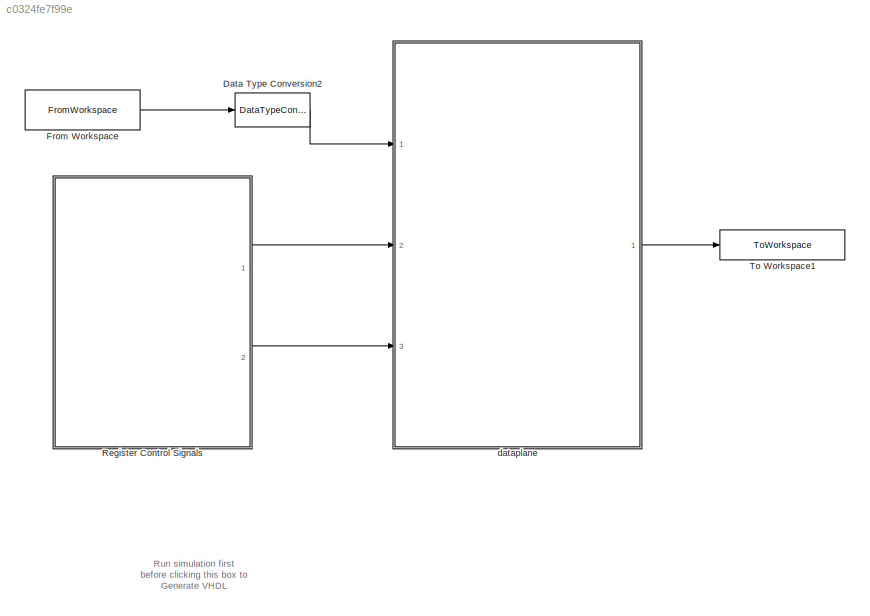
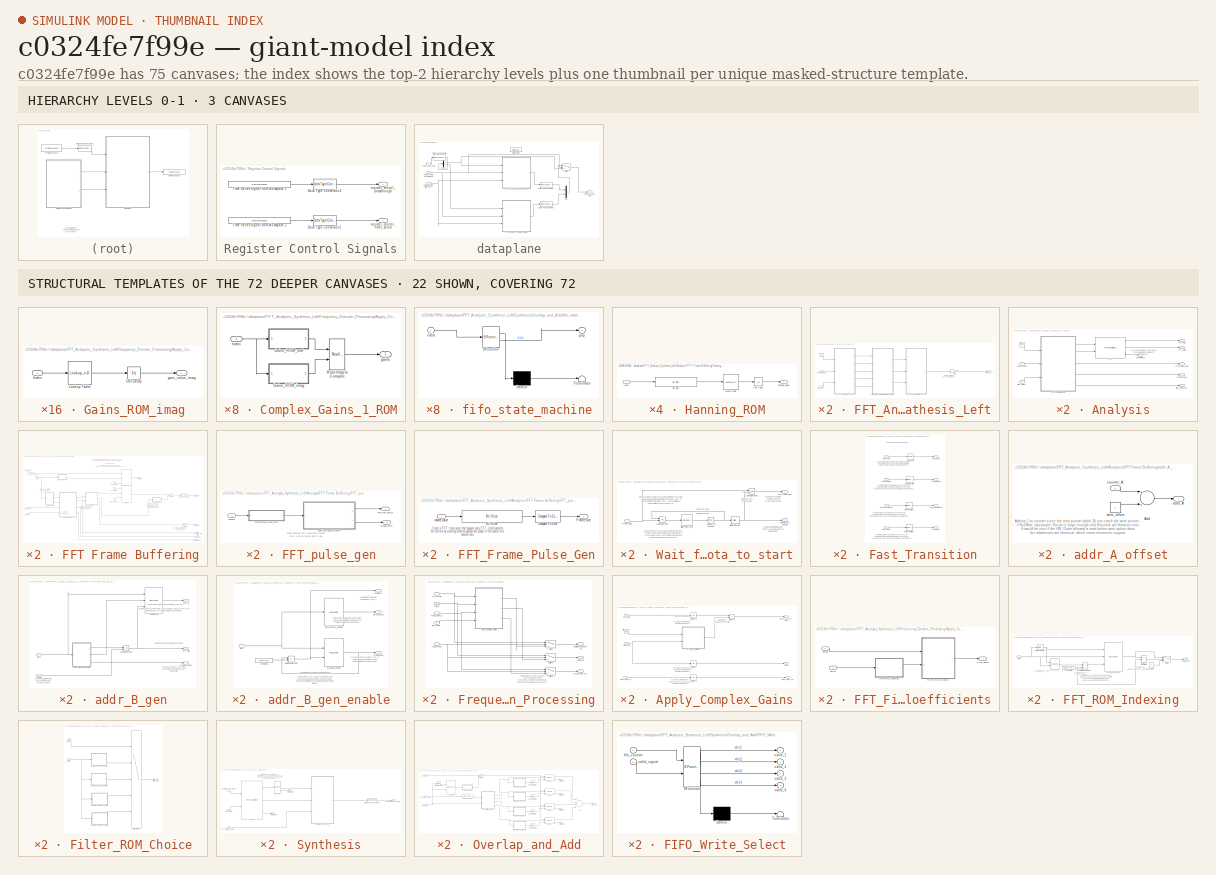
[diagram: thumbnail index - top-2 hierarchy levels (3 canvases) + 22 structural-template representatives of the remaining 72 canvases]
MODEL slx_c0324fe7f99e
KIND model
CONFIG AbsTol = auto
CONFIG EnableMultiTasking = off
CONFIG FixedStep = auto
CONFIG InitFcn = initCallback
CONFIG MaxStep = auto
CONFIG MinStep = auto
CONFIG RelTol = 1e-3
CONFIG SampleTimeConstraint = Unconstrained
CONFIG Solver = FixedStepDiscrete
CONFIG SolverName = FixedStepDiscrete
CONFIG StartTime = 0.0
CONFIG StopFcn = stopCallback
CONFIG StopTime = 0.01
BLOCK [DataTypeConversion] Data Type Conversion2
  OutDataTypeStr = fixdt(1,32,28)
  RndMeth = Floor
  SaturateOnIntegerOverflow = off
BLOCK [FromWorkspace] From Workspace
  SampleTime = 1 / config.system.sampleClockFrequency
  VariableName = testSignal.asTimeSeries
  ZeroCross = on
BLOCK [SubSystem] Register Control Signals
  Ports = [0, 2]
  RequestExecContextInheritance = off
BLOCK [DataTypeConversion] Register Control Signals/Data Type Conversion1
  OutDataTypeStr = mp.register{2}.dataType
  RndMeth = Nearest
  SaturateOnIntegerOverflow = off
BLOCK [DataTypeConversion] Register Control Signals/Data Type Conversion2
  OutDataTypeStr = mp.register{1}.dataType
  RndMeth = Nearest
  SaturateOnIntegerOverflow = off
BLOCK [FromWorkspace] Register Control Signals/Time Series Signal from Workspace 1
  OutDataTypeStr = double
  OutputAfterFinalValue = Holding final value
  SampleTime = mp.Ts
  VariableName = mp.register{1}.timeseries
  ZeroCross = on
BLOCK [FromWorkspace] Register Control Signals/Time Series Signal from Workspace 2
  OutDataTypeStr = double
  OutputAfterFinalValue = Holding final value
  SampleTime = mp.Ts
  VariableName = mp.register{2}.timeseries
  ZeroCross = on
BLOCK [Outport] Register Control Signals/register_control_filter_select
  IconDisplay = Port number
  Port = 2
  VectorParamsAs1DForOutWhenUnconnected = off
BLOCK [Outport] Register Control Signals/register_control_passthrough
  IconDisplay = Port number
  VectorParamsAs1DForOutWhenUnconnected = off
BLOCK [ToWorkspace] To Workspace1
  FixptAsFi = on
  MaxDataPoints = inf
  Ports = [1]
  SampleTime = -1
  SaveFormat = Timeseries
  VariableName = data_out
BLOCK [SubSystem] dataplane
  Ports = [3, 1]
  RequestExecContextInheritance = off
  TreatAsAtomicUnit = on
BLOCK [DataTypeConversion] dataplane/Data Type Conversion
  OutDataTypeStr = fixdt(1,24,23)
  RndMeth = Floor
  SaturateOnIntegerOverflow = off
BLOCK [DataTypeConversion] dataplane/Data Type Conversion1
  OutDataTypeStr = fixdt(1,32,28)
  RndMeth = Floor
  SaturateOnIntegerOverflow = off
BLOCK [DataTypeConversion] dataplane/Data Type Conversion2
  OutDataTypeStr = fixdt(1,32,28)
  RndMeth = Floor
  SaturateOnIntegerOverflow = off
BLOCK [Demux] dataplane/Demux
  DisplayOption = bar
  Outputs = 2
  Ports = [1, 2]
BLOCK [SubSystem] dataplane/FFT_Analysis_Synthesis_Left
  Ports = [3, 1]
  RequestExecContextInheritance = off
  TreatAsAtomicUnit = on
BLOCK [SubSystem] dataplane/FFT_Analysis_Synthesis_Left/Analysis
  Ports = [3, 5]
  RequestExecContextInheritance = off
BLOCK [Reference] dataplane/FFT_Analysis_Synthesis_Left/Analysis/FFT  REF=dsphdlxfrm/FFT
HDL Optimized
  Ports = [2, 3]
  SourceBlock = dsphdlxfrm/FFT\nHDL Optimized
  SourceProductBaseCode = DS
  SourceProductName = DSP System Toolbox
  SourceType = FFT HDL Optimized
BLOCK [SubSystem] dataplane/FFT_Analysis_Synthesis_Left/Analysis/FFT Frame Buffering
  Ports = [3, 5]
  RequestExecContextInheritance = off
BLOCK [Constant] dataplane/FFT_Analysis_Synthesis_Left/Analysis/FFT Frame Buffering/Always_Read_B
  OutDataTypeStr = boolean
  SampleTime = mp.Ts/mp.SysRate_Upsample_Factor
  Value = 0
BLOCK [Constant] dataplane/FFT_Analysis_Synthesis_Left/Analysis/FFT Frame Buffering/Always_Write_A
  OutDataTypeStr = boolean
  SampleTime = mp.Ts
BLOCK [Reference] dataplane/FFT_Analysis_Synthesis_Left/Analysis/FFT Frame Buffering/DPRAM  REF=hdlsllib/HDL RAMs/Dual Rate Dual Port RAM
  Ports = [6, 2]
  SourceBlock = hdlsllib/HDL RAMs/Dual Rate Dual Port RAM
  SourceProductBaseCode = SL
  SourceProductName = Simulink
  SourceType = Dual-rate dual-port RAM
BLOCK [DataTypeConversion] dataplane/FFT_Analysis_Synthesis_Left/Analysis/FFT Frame Buffering/Data Type Conversion
  OutDataTypeStr = fixdt(1, mp.W_bits, mp.F_bits)
  RndMeth = Floor
  SaturateOnIntegerOverflow = off
BLOCK [Outport] dataplane/FFT_Analysis_Synthesis_Left/Analysis/FFT Frame Buffering/Data_to_FFT
  IconDisplay = Port number
  VectorParamsAs1DForOutWhenUnconnected = off
BLOCK [Outport] dataplane/FFT_Analysis_Synthesis_Left/Analysis/FFT Frame Buffering/FFT_Frame_Start_Pulse
  IconDisplay = Port number
  Port = 3
  VectorParamsAs1DForOutWhenUnconnected = off
BLOCK [SubSystem] dataplane/FFT_Analysis_Synthesis_Left/Analysis/FFT Frame Buffering/FFT_pulse_gen
  Ports = [1, 2]
  RequestExecContextInheritance = off
BLOCK [Outport] dataplane/FFT_Analysis_Synthesis_Left/Analysis/FFT Frame Buffering/FFT_pulse_gen/Enable_FFTs
  IconDisplay = Port number
  Port = 2
  VectorParamsAs1DForOutWhenUnconnected = off
BLOCK [SubSystem] dataplane/FFT_Analysis_Synthesis_Left/Analysis/FFT Frame Buffering/FFT_pulse_gen/FFT_Frame_Pulse_Gen
  Ports = [1, 1]
  RequestExecContextInheritance = off
BLOCK [Reference] dataplane/FFT_Analysis_Synthesis_Left/Analysis/FFT Frame Buffering/FFT_pulse_gen/FFT_Frame_Pulse_Gen/Bit Slice  REF=hdlsllib/Logic and Bit
Operations/Bit Slice
  Ports = [1, 1]
  SourceBlock = hdlsllib/Logic and Bit\nOperations/Bit Slice
  SourceProductBaseCode = SL
  SourceProductName = Simulink
  SourceType = Bit Slice
BLOCK [Reference] dataplane/FFT_Analysis_Synthesis_Left/Analysis/FFT Frame Buffering/FFT_pulse_gen/FFT_Frame_Pulse_Gen/Compare To Zero  REF=simulink/Logic and Bit
Operations/Compare
To Zero
  Ports = [1, 1]
  SourceBlock = simulink/Logic and Bit\nOperations/Compare\nTo Zero
  SourceProductBaseCode = SL
  SourceProductName = Simulink
  SourceType = Compare To Zero
BLOCK [Outport] dataplane/FFT_Analysis_Synthesis_Left/Analysis/FFT Frame Buffering/FFT_pulse_gen/FFT_Frame_Pulse_Gen/Frame_Pulse
  IconDisplay = Port number
  VectorParamsAs1DForOutWhenUnconnected = off
BLOCK [Inport] dataplane/FFT_Analysis_Synthesis_Left/Analysis/FFT Frame Buffering/FFT_pulse_gen/FFT_Frame_Pulse_Gen/counter_value 
  IconDisplay = Port number
BLOCK [Outport] dataplane/FFT_Analysis_Synthesis_Left/Analysis/FFT Frame Buffering/FFT_pulse_gen/FFT_start_pulse
  IconDisplay = Port number
  VectorParamsAs1DForOutWhenUnconnected = off
BLOCK [SubSystem] dataplane/FFT_Analysis_Synthesis_Left/Analysis/FFT Frame Buffering/FFT_pulse_gen/Wait_for_data_to_start
  Ports = [1, 2]
  RequestExecContextInheritance = off
BLOCK [Reference] dataplane/FFT_Analysis_Synthesis_Left/Analysis/FFT Frame Buffering/FFT_pulse_gen/Wait_for_data_to_start/Bitwise Operator  REF=simulink/Logic and Bit
Operations/Bitwise
Operator
  Ports = [1, 1]
  SourceBlock = simulink/Logic and Bit\nOperations/Bitwise\nOperator
  SourceProductBaseCode = SL
  SourceProductName = Simulink
  SourceType = Bitwise Operator
BLOCK [Reference] dataplane/FFT_Analysis_Synthesis_Left/Analysis/FFT Frame Buffering/FFT_pulse_gen/Wait_for_data_to_start/Compare To Constant  REF=simulink/Logic and Bit
Operations/Compare
To Constant
  Ports = [1, 1]
  SourceBlock = simulink/Logic and Bit\nOperations/Compare\nTo Constant
  SourceProductBaseCode = SL
  SourceProductName = Simulink
  SourceType = Compare To Constant
BLOCK [Outport] dataplane/FFT_Analysis_Synthesis_Left/Analysis/FFT Frame Buffering/FFT_pulse_gen/Wait_for_data_to_start/Enable_FFT_Frames
  IconDisplay = Port number
  Port = 2
  VectorParamsAs1DForOutWhenUnconnected = off
BLOCK [Outport] dataplane/FFT_Analysis_Synthesis_Left/Analysis/FFT Frame Buffering/FFT_pulse_gen/Wait_for_data_to_start/FFT_Frame_Start
  IconDisplay = Port number
  VectorParamsAs1DForOutWhenUnconnected = off
BLOCK [Inport] dataplane/FFT_Analysis_Synthesis_Left/Analysis/FFT Frame Buffering/FFT_pulse_gen/Wait_for_data_to_start/Frame_Pulse
  IconDisplay = Port number
BLOCK [Reference] dataplane/FFT_Analysis_Synthesis_Left/Analysis/FFT Frame Buffering/FFT_pulse_gen/Wait_for_data_to_start/Initial_frame_count  REF=hdlsllib/Sources/HDL Counter
  Ports = [1, 1]
  SourceBlock = hdlsllib/Sources/HDL Counter
  SourceProductBaseCode = SL
  SourceProductName = Simulink
  SourceType = HDL Counter
BLOCK [Logic] dataplane/FFT_Analysis_Synthesis_Left/Analysis/FFT Frame Buffering/FFT_pulse_gen/Wait_for_data_to_start/Logical Operator
  AllPortsSameDT = off
  OutDataTypeStr = boolean
  Ports = [2, 1]
BLOCK [Logic] dataplane/FFT_Analysis_Synthesis_Left/Analysis/FFT Frame Buffering/FFT_pulse_gen/Wait_for_data_to_start/Logical Operator1
  AllPortsSameDT = off
  OutDataTypeStr = boolean
  Ports = [2, 1]
BLOCK [Inport] dataplane/FFT_Analysis_Synthesis_Left/Analysis/FFT Frame Buffering/FFT_pulse_gen/counter
  IconDisplay = Port number
BLOCK [SubSystem] dataplane/FFT_Analysis_Synthesis_Left/Analysis/FFT Frame Buffering/Fast_Transition
  Ports = [4, 4]
  RequestExecContextInheritance = off
BLOCK [Outport] dataplane/FFT_Analysis_Synthesis_Left/Analysis/FFT Frame Buffering/Fast_Transition/Fast_Enable
  IconDisplay = Port number
  Port = 2
BLOCK [Outport] dataplane/FFT_Analysis_Synthesis_Left/Analysis/FFT Frame Buffering/Fast_Transition/Fast_Passthrough
  IconDisplay = Port number
  Port = 3
BLOCK [Outport] dataplane/FFT_Analysis_Synthesis_Left/Analysis/FFT Frame Buffering/Fast_Transition/Fast_Pulse
  IconDisplay = Port number
BLOCK [Outport] dataplane/FFT_Analysis_Synthesis_Left/Analysis/FFT Frame Buffering/Fast_Transition/Fast_select
  IconDisplay = Port number
  Port = 4
BLOCK [RateTransition] dataplane/FFT_Analysis_Synthesis_Left/Analysis/FFT Frame Buffering/Fast_Transition/Rate Transition
  OutPortSampleTimeMultiple = 1/mp.SysRate_Upsample_Factor
  OutPortSampleTimeOpt = Multiple of input port sample time
BLOCK [RateTransition] dataplane/FFT_Analysis_Synthesis_Left/Analysis/FFT Frame Buffering/Fast_Transition/Rate Transition1
  OutPortSampleTimeMultiple = 1/mp.SysRate_Upsample_Factor
  OutPortSampleTimeOpt = Multiple of input port sample time
BLOCK [RateTransition] dataplane/FFT_Analysis_Synthesis_Left/Analysis/FFT Frame Buffering/Fast_Transition/Rate Transition2
  InitialCondition = 3
  OutPortSampleTimeMultiple = 1/mp.SysRate_Upsample_Factor
  OutPortSampleTimeOpt = Multiple of input port sample time
BLOCK [Inport] dataplane/FFT_Analysis_Synthesis_Left/Analysis/FFT Frame Buffering/Fast_Transition/Slow_Enable
  IconDisplay = Port number
  Port = 2
BLOCK [Inport] dataplane/FFT_Analysis_Synthesis_Left/Analysis/FFT Frame Buffering/Fast_Transition/Slow_Passthrough
  IconDisplay = Port number
  Port = 3
BLOCK [Inport] dataplane/FFT_Analysis_Synthesis_Left/Analysis/FFT Frame Buffering/Fast_Transition/Slow_Pulse
  IconDisplay = Port number
BLOCK [Inport] dataplane/FFT_Analysis_Synthesis_Left/Analysis/FFT Frame Buffering/Fast_Transition/Slow_select
  IconDisplay = Port number
  Port = 4
BLOCK [Reference] dataplane/FFT_Analysis_Synthesis_Left/Analysis/FFT Frame Buffering/Fast_Transition/Upsample  REF=dspsigops/Upsample
  Ports = [1, 1]
  SourceBlock = dspsigops/Upsample
  SourceProductBaseCode = DS
  SourceProductName = DSP System Toolbox
  SourceType = Upsample
  UserDataPersistent = on
BLOCK [SubSystem] dataplane/FFT_Analysis_Synthesis_Left/Analysis/FFT Frame Buffering/Hanning_ROM
  Ports = [1, 1]
  RequestExecContextInheritance = off
BLOCK [Reference] dataplane/FFT_Analysis_Synthesis_Left/Analysis/FFT Frame Buffering/Hanning_ROM/Bit Slice  REF=hdlsllib/Logic and Bit
Operations/Bit Slice
  Ports = [1, 1]
  SourceBlock = hdlsllib/Logic and Bit\nOperations/Bit Slice
  SourceProductBaseCode = SL
  SourceProductName = Simulink
  SourceType = Bit Slice
BLOCK [Inport] dataplane/FFT_Analysis_Synthesis_Left/Analysis/FFT Frame Buffering/Hanning_ROM/Index
  IconDisplay = Port number
BLOCK [Lookup_n-D] dataplane/FFT_Analysis_Synthesis_Left/Analysis/FFT Frame Buffering/Hanning_ROM/Lookup Table
  BreakpointsForDimension1 = [0:mp.FFT_size-1]
  DiagnosticForOutOfRangeInput = Warning
  ExtrapMethod = Clip
  IndexSearchMethod = Evenly spaced points
  InterpMethod = Flat
  NumberOfTableDimensions = 1
  OutDataTypeStr = fixdt(1,24,23)
  Ports = [1, 1]
  RndMeth = Simplest
  Table = hanning(mp.FFT_size)
  UseLastTableValue = on
BLOCK [UnitDelay] dataplane/FFT_Analysis_Synthesis_Left/Analysis/FFT Frame Buffering/Hanning_ROM/Unit Delay
  HasFrameUpgradeWarning = on
  SampleTime = -1
BLOCK [Outport] dataplane/FFT_Analysis_Synthesis_Left/Analysis/FFT Frame Buffering/Hanning_ROM/hanning_value
  IconDisplay = Port number
  VectorParamsAs1DForOutWhenUnconnected = off
BLOCK [Constant] dataplane/FFT_Analysis_Synthesis_Left/Analysis/FFT Frame Buffering/Never_Write_B
  OutDataTypeStr = fixdt(1,24,23)
  SampleTime = mp.Ts/mp.SysRate_Upsample_Factor
  Value = 0
BLOCK [Product] dataplane/FFT_Analysis_Synthesis_Left/Analysis/FFT Frame Buffering/Product
  InputSameDT = off
  OutDataTypeStr = Inherit: Inherit via internal rule
  Ports = [2, 1]
  RndMeth = Floor
  SaturateOnIntegerOverflow = off
BLOCK [Inport] dataplane/FFT_Analysis_Synthesis_Left/Analysis/FFT Frame Buffering/Sample_Data_in
  IconDisplay = Port number
BLOCK [Terminator] dataplane/FFT_Analysis_Synthesis_Left/Analysis/FFT Frame Buffering/Terminator7
BLOCK [UnitDelay] dataplane/FFT_Analysis_Synthesis_Left/Analysis/FFT Frame Buffering/Unit Delay
  HasFrameUpgradeWarning = on
  SampleTime = -1
BLOCK [Outport] dataplane/FFT_Analysis_Synthesis_Left/Analysis/FFT Frame Buffering/Valid_to_FFT
  IconDisplay = Port number
  Port = 2
  VectorParamsAs1DForOutWhenUnconnected = off
BLOCK [SubSystem] dataplane/FFT_Analysis_Synthesis_Left/Analysis/FFT Frame Buffering/addr_A_offset
  Ports = [1, 1]
  RequestExecContextInheritance = off
BLOCK [Sum] dataplane/FFT_Analysis_Synthesis_Left/Analysis/FFT Frame Buffering/addr_A_offset/Add
  InputSameDT = off
  OutDataTypeStr = fixdt(0,mp.DPRAM1_address_size,0)
  Ports = [2, 1]
  SaturateOnIntegerOverflow = off
BLOCK [Outport] dataplane/FFT_Analysis_Synthesis_Left/Analysis/FFT Frame Buffering/addr_A_offset/addr_A
  IconDisplay = Port number
  VectorParamsAs1DForOutWhenUnconnected = off
BLOCK [Inport] dataplane/FFT_Analysis_Synthesis_Left/Analysis/FFT Frame Buffering/addr_A_offset/counter_A
  IconDisplay = Port number
BLOCK [Constant] dataplane/FFT_Analysis_Synthesis_Left/Analysis/FFT Frame Buffering/addr_A_offset/write_offset
  OutDataTypeStr = fixdt(0,mp.DPRAM1_address_size,0)
  SampleTime = mp.Ts
BLOCK [SubSystem] dataplane/FFT_Analysis_Synthesis_Left/Analysis/FFT Frame Buffering/addr_B_gen
  Ports = [2, 3]
  RequestExecContextInheritance = off
BLOCK [Outport] dataplane/FFT_Analysis_Synthesis_Left/Analysis/FFT Frame Buffering/addr_B_gen/FFT_Valid
  IconDisplay = Port number
  Port = 3
  VectorParamsAs1DForOutWhenUnconnected = off
BLOCK [Outport] dataplane/FFT_Analysis_Synthesis_Left/Analysis/FFT Frame Buffering/addr_B_gen/Frame_counter
  IconDisplay = Port number
  Port = 2
  VectorParamsAs1DForOutWhenUnconnected = off
BLOCK [Logic] dataplane/FFT_Analysis_Synthesis_Left/Analysis/FFT Frame Buffering/addr_B_gen/Logical Operator1
  AllPortsSameDT = off
  OutDataTypeStr = boolean
  Ports = [2, 1]
BLOCK [Outport] dataplane/FFT_Analysis_Synthesis_Left/Analysis/FFT Frame Buffering/addr_B_gen/addr_B
  IconDisplay = Port number
  VectorParamsAs1DForOutWhenUnconnected = off
BLOCK [SubSystem] dataplane/FFT_Analysis_Synthesis_Left/Analysis/FFT Frame Buffering/addr_B_gen/addr_B_gen_enable
  Ports = [1, 3]
  RequestExecContextInheritance = off
BLOCK [Reference] dataplane/FFT_Analysis_Synthesis_Left/Analysis/FFT Frame Buffering/addr_B_gen/addr_B_gen_enable/B_Enable_Counter  REF=hdlsllib/Sources/HDL Counter
  Ports = [2, 1]
  SourceBlock = hdlsllib/Sources/HDL Counter
  SourceProductBaseCode = SL
  SourceProductName = Simulink
  SourceType = HDL Counter
BLOCK [Constant] dataplane/FFT_Analysis_Synthesis_Left/Analysis/FFT Frame Buffering/addr_B_gen/addr_B_gen_enable/Constant5
  OutDataTypeStr = fixdt(0,mp.FFT_size_Nbits,0)
  SampleTime = mp.Ts/mp.SysRate_Upsample_Factor
  Value = mp.FFT_size
BLOCK [Outport] dataplane/FFT_Analysis_Synthesis_Left/Analysis/FFT Frame Buffering/addr_B_gen/addr_B_gen_enable/Frame_Index
  IconDisplay = Port number
  Port = 3
  VectorParamsAs1DForOutWhenUnconnected = off
BLOCK [RelationalOperator] dataplane/FFT_Analysis_Synthesis_Left/Analysis/FFT Frame Buffering/addr_B_gen/addr_B_gen_enable/Relational Operator
  InputSameDT = off
  Operator = <=
  OutDataTypeStr = boolean
  Ports = [2, 1]
  ZeroCross = off
BLOCK [Outport] dataplane/FFT_Analysis_Synthesis_Left/Analysis/FFT Frame Buffering/addr_B_gen/addr_B_gen_enable/Start_Address
  IconDisplay = Port number
  Port = 2
  VectorParamsAs1DForOutWhenUnconnected = off
BLOCK [Reference] dataplane/FFT_Analysis_Synthesis_Left/Analysis/FFT Frame Buffering/addr_B_gen/addr_B_gen_enable/Start_Address_Counter  REF=hdlsllib/Sources/HDL Counter
  Ports = [1, 1]
  SourceBlock = hdlsllib/Sources/HDL Counter
  SourceProductBaseCode = SL
  SourceProductName = Simulink
  SourceType = HDL Counter
BLOCK [Outport] dataplane/FFT_Analysis_Synthesis_Left/Analysis/FFT Frame Buffering/addr_B_gen/addr_B_gen_enable/enable_B
  IconDisplay = Port number
  VectorParamsAs1DForOutWhenUnconnected = off
BLOCK [Inport] dataplane/FFT_Analysis_Synthesis_Left/Analysis/FFT Frame Buffering/addr_B_gen/addr_B_gen_enable/start
  IconDisplay = Port number
BLOCK [Reference] dataplane/FFT_Analysis_Synthesis_Left/Analysis/FFT Frame Buffering/addr_B_gen/counter_B  REF=hdlsllib/Sources/HDL Counter
  Ports = [3, 1]
  SourceBlock = hdlsllib/Sources/HDL Counter
  SourceProductBaseCode = SL
  SourceProductName = Simulink
  SourceType = HDL Counter
BLOCK [Inport] dataplane/FFT_Analysis_Synthesis_Left/Analysis/FFT Frame Buffering/addr_B_gen/enable
  IconDisplay = Port number
  Port = 2
BLOCK [Inport] dataplane/FFT_Analysis_Synthesis_Left/Analysis/FFT Frame Buffering/addr_B_gen/start
  IconDisplay = Port number
BLOCK [Reference] dataplane/FFT_Analysis_Synthesis_Left/Analysis/FFT Frame Buffering/counter_A  REF=simulink/Sources/Counter
Free-Running
  Ports = [0, 1]
  SourceBlock = simulink/Sources/Counter\nFree-Running
  SourceProductBaseCode = SL
  SourceProductName = Simulink
  SourceType = Counter Free-Running
BLOCK [Inport] dataplane/FFT_Analysis_Synthesis_Left/Analysis/FFT Frame Buffering/filter_select
  IconDisplay = Port number
  Port = 3
BLOCK [Outport] dataplane/FFT_Analysis_Synthesis_Left/Analysis/FFT Frame Buffering/filter_select_out
  IconDisplay = Port number
  Port = 5
BLOCK [Outport] dataplane/FFT_Analysis_Synthesis_Left/Analysis/FFT Frame Buffering/passthrough
  IconDisplay = Port number
  Port = 4
BLOCK [Inport] dataplane/FFT_Analysis_Synthesis_Left/Analysis/FFT Frame Buffering/passthrough_in
  IconDisplay = Port number
  Port = 2
BLOCK [Outport] dataplane/FFT_Analysis_Synthesis_Left/Analysis/FFT_data
  IconDisplay = Port number
  VectorParamsAs1DForOutWhenUnconnected = off
BLOCK [Outport] dataplane/FFT_Analysis_Synthesis_Left/Analysis/FFT_frame_pulse
  IconDisplay = Port number
  Port = 3
  VectorParamsAs1DForOutWhenUnconnected = off
BLOCK [Outport] dataplane/FFT_Analysis_Synthesis_Left/Analysis/FFT_valid
  IconDisplay = Port number
  Port = 2
  VectorParamsAs1DForOutWhenUnconnected = off
BLOCK [Inport] dataplane/FFT_Analysis_Synthesis_Left/Analysis/Passthrough
  IconDisplay = Port number
  Port = 2
BLOCK [Inport] dataplane/FFT_Analysis_Synthesis_Left/Analysis/Signal_in
  IconDisplay = Port number
BLOCK [Terminator] dataplane/FFT_Analysis_Synthesis_Left/Analysis/Terminator6
BLOCK [Inport] dataplane/FFT_Analysis_Synthesis_Left/Analysis/filter_select
  IconDisplay = Port number
  Port = 3
BLOCK [Outport] dataplane/FFT_Analysis_Synthesis_Left/Analysis/filter_select_out
  IconDisplay = Port number
  Port = 5
BLOCK [Outport] dataplane/FFT_Analysis_Synthesis_Left/Analysis/passthrough
  IconDisplay = Port number
  Port = 4
BLOCK [SubSystem] dataplane/FFT_Analysis_Synthesis_Left/Frequency_Domain_Processing
  Ports = [5, 3]
  RequestExecContextInheritance = off
BLOCK [SubSystem] dataplane/FFT_Analysis_Synthesis_Left/Frequency_Domain_Processing/Apply_Complex_Gains
  Ports = [4, 3]
  RequestExecContextInheritance = off
BLOCK [SubSystem] dataplane/FFT_Analysis_Synthesis_Left/Frequency_Domain_Processing/Apply_Complex_Gains/FFT_Filter_Coefficients
  Ports = [2, 1]
  RequestExecContextInheritance = off
BLOCK [SubSystem] dataplane/FFT_Analysis_Synthesis_Left/Frequency_Domain_Processing/Apply_Complex_Gains/FFT_Filter_Coefficients/FFT_ROM_Indexing
  Ports = [1, 1]
  RequestExecContextInheritance = off
BLOCK [Reference] dataplane/FFT_Analysis_Synthesis_Left/Frequency_Domain_Processing/Apply_Complex_Gains/FFT_Filter_Coefficients/FFT_ROM_Indexing/Bitwise Operator  REF=simulink/Logic and Bit
Operations/Bitwise
Operator
  Ports = [1, 1]
  SourceBlock = simulink/Logic and Bit\nOperations/Bitwise\nOperator
  SourceProductBaseCode = SL
  SourceProductName = Simulink
  SourceType = Bitwise Operator
BLOCK [Constant] dataplane/FFT_Analysis_Synthesis_Left/Frequency_Domain_Processing/Apply_Complex_Gains/FFT_Filter_Coefficients/FFT_ROM_Indexing/Constant
  OutDataTypeStr = fixdt(0,mp.FFT_size_Nbits,0)
  SampleTime = mp.Ts/mp.SysRate_Upsample_Factor
  Value = 0
BLOCK [Constant] dataplane/FFT_Analysis_Synthesis_Left/Frequency_Domain_Processing/Apply_Complex_Gains/FFT_Filter_Coefficients/FFT_ROM_Indexing/Constant5
  OutDataTypeStr = fixdt(0,mp.FFT_size_Nbits,0)
  SampleTime = mp.Ts/mp.SysRate_Upsample_Factor
  Value = mp.FFT_size_half
BLOCK [Reference] dataplane/FFT_Analysis_Synthesis_Left/Frequency_Domain_Processing/Apply_Complex_Gains/FFT_Filter_Coefficients/FFT_ROM_Indexing/FFT_count  REF=hdlsllib/Sources/HDL Counter
  Ports = [2, 1]
  SourceBlock = hdlsllib/Sources/HDL Counter
  SourceProductBaseCode = SL
  SourceProductName = Simulink
  SourceType = HDL Counter
BLOCK [Outport] dataplane/FFT_Analysis_Synthesis_Left/Frequency_Domain_Processing/Apply_Complex_Gains/FFT_Filter_Coefficients/FFT_ROM_Indexing/ROM_index
  IconDisplay = Port number
BLOCK [RelationalOperator] dataplane/FFT_Analysis_Synthesis_Left/Frequency_Domain_Processing/Apply_Complex_Gains/FFT_Filter_Coefficients/FFT_ROM_Indexing/Relational Operator
  InputSameDT = off
  Operator = <
  OutDataTypeStr = boolean
  Ports = [2, 1]
  ZeroCross = off
BLOCK [RelationalOperator] dataplane/FFT_Analysis_Synthesis_Left/Frequency_Domain_Processing/Apply_Complex_Gains/FFT_Filter_Coefficients/FFT_ROM_Indexing/Relational Operator1
  InputSameDT = off
  Operator = ~=
  OutDataTypeStr = boolean
  Ports = [2, 1]
  ZeroCross = off
BLOCK [Switch] dataplane/FFT_Analysis_Synthesis_Left/Frequency_Domain_Processing/Apply_Complex_Gains/FFT_Filter_Coefficients/FFT_ROM_Indexing/Switch
  Criteria = u2 > Threshold
  InputSameDT = off
  SaturateOnIntegerOverflow = off
BLOCK [Reference] dataplane/FFT_Analysis_Synthesis_Left/Frequency_Domain_Processing/Apply_Complex_Gains/FFT_Filter_Coefficients/FFT_ROM_Indexing/counter_gain_index  REF=hdlsllib/Sources/HDL Counter
  Ports = [3, 1]
  SourceBlock = hdlsllib/Sources/HDL Counter
  SourceProductBaseCode = SL
  SourceProductName = Simulink
  SourceType = HDL Counter
BLOCK [Inport] dataplane/FFT_Analysis_Synthesis_Left/Frequency_Domain_Processing/Apply_Complex_Gains/FFT_Filter_Coefficients/FFT_ROM_Indexing/valid
  IconDisplay = Port number
BLOCK [SubSystem] dataplane/FFT_Analysis_Synthesis_Left/Frequency_Domain_Processing/Apply_Complex_Gains/FFT_Filter_Coefficients/Filter_ROM_Choice
  Ports = [2, 1]
  RequestExecContextInheritance = off
BLOCK [SubSystem] dataplane/FFT_Analysis_Synthesis_Left/Frequency_Domain_Processing/Apply_Complex_Gains/FFT_Filter_Coefficients/Filter_ROM_Choice/Complex_Gains_1_ROM
  Ports = [1, 1]
  RequestExecContextInheritance = off
BLOCK [SubSystem] dataplane/FFT_Analysis_Synthesis_Left/Frequency_Domain_Processing/Apply_Complex_Gains/FFT_Filter_Coefficients/Filter_ROM_Choice/Complex_Gains_1_ROM/Gains_ROM_imag
  Ports = [1, 1]
  RequestExecContextInheritance = off
BLOCK [Inport] dataplane/FFT_Analysis_Synthesis_Left/Frequency_Domain_Processing/Apply_Complex_Gains/FFT_Filter_Coefficients/Filter_ROM_Choice/Complex_Gains_1_ROM/Gains_ROM_imag/Index
  IconDisplay = Port number
BLOCK [Lookup_n-D] dataplane/FFT_Analysis_Synthesis_Left/Frequency_Domain_Processing/Apply_Complex_Gains/FFT_Filter_Coefficients/Filter_ROM_Choice/Complex_Gains_1_ROM/Gains_ROM_imag/Lookup Table
  BreakpointsForDimension1 = [0:mp.FFT_size_half-1]
  DiagnosticForOutOfRangeInput = Error
  ExtrapMethod = Clip
  IndexSearchMethod = Evenly spaced points
  InterpMethod = Flat
  NumberOfTableDimensions = 1
  OutDataTypeStr = fixdt(1,mp.W_bits,mp.F_bits)
  Ports = [1, 1]
  RndMeth = Simplest
  Table = mp.fft_gains_1_imag
  UseLastTableValue = on
BLOCK [UnitDelay] dataplane/FFT_Analysis_Synthesis_Left/Frequency_Domain_Processing/Apply_Complex_Gains/FFT_Filter_Coefficients/Filter_ROM_Choice/Complex_Gains_1_ROM/Gains_ROM_imag/Unit Delay
  HasFrameUpgradeWarning = on
  SampleTime = -1
BLOCK [Outport] dataplane/FFT_Analysis_Synthesis_Left/Frequency_Domain_Processing/Apply_Complex_Gains/FFT_Filter_Coefficients/Filter_ROM_Choice/Complex_Gains_1_ROM/Gains_ROM_imag/gain_value_imag
  IconDisplay = Port number
  VectorParamsAs1DForOutWhenUnconnected = off
BLOCK [SubSystem] dataplane/FFT_Analysis_Synthesis_Left/Frequency_Domain_Processing/Apply_Complex_Gains/FFT_Filter_Coefficients/Filter_ROM_Choice/Complex_Gains_1_ROM/Gains_ROM_real
  Ports = [1, 1]
  RequestExecContextInheritance = off
BLOCK [Inport] dataplane/FFT_Analysis_Synthesis_Left/Frequency_Domain_Processing/Apply_Complex_Gains/FFT_Filter_Coefficients/Filter_ROM_Choice/Complex_Gains_1_ROM/Gains_ROM_real/Index
  IconDisplay = Port number
BLOCK [Lookup_n-D] dataplane/FFT_Analysis_Synthesis_Left/Frequency_Domain_Processing/Apply_Complex_Gains/FFT_Filter_Coefficients/Filter_ROM_Choice/Complex_Gains_1_ROM/Gains_ROM_real/Lookup Table
  BreakpointsForDimension1 = [0:mp.FFT_size_half-1]
  DiagnosticForOutOfRangeInput = Error
  ExtrapMethod = Clip
  IndexSearchMethod = Evenly spaced points
  InterpMethod = Flat
  NumberOfTableDimensions = 1
  OutDataTypeStr = fixdt(1,mp.W_bits,mp.F_bits)
  Ports = [1, 1]
  RndMeth = Simplest
  Table = mp.fft_gains_1_real
  UseLastTableValue = on
BLOCK [UnitDelay] dataplane/FFT_Analysis_Synthesis_Left/Frequency_Domain_Processing/Apply_Complex_Gains/FFT_Filter_Coefficients/Filter_ROM_Choice/Complex_Gains_1_ROM/Gains_ROM_real/Unit Delay
  HasFrameUpgradeWarning = on
  SampleTime = -1
BLOCK [Outport] dataplane/FFT_Analysis_Synthesis_Left/Frequency_Domain_Processing/Apply_Complex_Gains/FFT_Filter_Coefficients/Filter_ROM_Choice/Complex_Gains_1_ROM/Gains_ROM_real/gain_value_real
  IconDisplay = Port number
  VectorParamsAs1DForOutWhenUnconnected = off
BLOCK [Inport] dataplane/FFT_Analysis_Synthesis_Left/Frequency_Domain_Processing/Apply_Complex_Gains/FFT_Filter_Coefficients/Filter_ROM_Choice/Complex_Gains_1_ROM/Index
  IconDisplay = Port number
BLOCK [RealImagToComplex] dataplane/FFT_Analysis_Synthesis_Left/Frequency_Domain_Processing/Apply_Complex_Gains/FFT_Filter_Coefficients/Filter_ROM_Choice/Complex_Gains_1_ROM/Real-Imag to Complex
  Ports = [2, 1]
BLOCK [Outport] dataplane/FFT_Analysis_Synthesis_Left/Frequency_Domain_Processing/Apply_Complex_Gains/FFT_Filter_Coefficients/Filter_ROM_Choice/Complex_Gains_1_ROM/gains
  IconDisplay = Port number
BLOCK [SubSystem] dataplane/FFT_Analysis_Synthesis_Left/Frequency_Domain_Processing/Apply_Complex_Gains/FFT_Filter_Coefficients/Filter_ROM_Choice/Complex_Gains_2_ROM
  Ports = [1, 1]
  RequestExecContextInheritance = off
BLOCK [SubSystem] dataplane/FFT_Analysis_Synthesis_Left/Frequency_Domain_Processing/Apply_Complex_Gains/FFT_Filter_Coefficients/Filter_ROM_Choice/Complex_Gains_2_ROM/Gains_ROM_imag
  Ports = [1, 1]
  RequestExecContextInheritance = off
BLOCK [Inport] dataplane/FFT_Analysis_Synthesis_Left/Frequency_Domain_Processing/Apply_Complex_Gains/FFT_Filter_Coefficients/Filter_ROM_Choice/Complex_Gains_2_ROM/Gains_ROM_imag/Index
  IconDisplay = Port number
BLOCK [Lookup_n-D] dataplane/FFT_Analysis_Synthesis_Left/Frequency_Domain_Processing/Apply_Complex_Gains/FFT_Filter_Coefficients/Filter_ROM_Choice/Complex_Gains_2_ROM/Gains_ROM_imag/Lookup Table
  BreakpointsForDimension1 = [0:mp.FFT_size_half-1]
  DiagnosticForOutOfRangeInput = Error
  ExtrapMethod = Clip
  IndexSearchMethod = Evenly spaced points
  InterpMethod = Flat
  NumberOfTableDimensions = 1
  OutDataTypeStr = fixdt(1,mp.W_bits,mp.F_bits)
  Ports = [1, 1]
  RndMeth = Simplest
  Table = mp.fft_gains_2_imag
  UseLastTableValue = on
BLOCK [UnitDelay] dataplane/FFT_Analysis_Synthesis_Left/Frequency_Domain_Processing/Apply_Complex_Gains/FFT_Filter_Coefficients/Filter_ROM_Choice/Complex_Gains_2_ROM/Gains_ROM_imag/Unit Delay
  HasFrameUpgradeWarning = on
  SampleTime = -1
BLOCK [Outport] dataplane/FFT_Analysis_Synthesis_Left/Frequency_Domain_Processing/Apply_Complex_Gains/FFT_Filter_Coefficients/Filter_ROM_Choice/Complex_Gains_2_ROM/Gains_ROM_imag/gain_value_imag
  IconDisplay = Port number
  VectorParamsAs1DForOutWhenUnconnected = off
BLOCK [SubSystem] dataplane/FFT_Analysis_Synthesis_Left/Frequency_Domain_Processing/Apply_Complex_Gains/FFT_Filter_Coefficients/Filter_ROM_Choice/Complex_Gains_2_ROM/Gains_ROM_real
  Ports = [1, 1]
  RequestExecContextInheritance = off
BLOCK [Inport] dataplane/FFT_Analysis_Synthesis_Left/Frequency_Domain_Processing/Apply_Complex_Gains/FFT_Filter_Coefficients/Filter_ROM_Choice/Complex_Gains_2_ROM/Gains_ROM_real/Index
  IconDisplay = Port number
BLOCK [Lookup_n-D] dataplane/FFT_Analysis_Synthesis_Left/Frequency_Domain_Processing/Apply_Complex_Gains/FFT_Filter_Coefficients/Filter_ROM_Choice/Complex_Gains_2_ROM/Gains_ROM_real/Lookup Table
  BreakpointsForDimension1 = [0:mp.FFT_size_half-1]
  DiagnosticForOutOfRangeInput = Error
  ExtrapMethod = Clip
  IndexSearchMethod = Evenly spaced points
  InterpMethod = Flat
  NumberOfTableDimensions = 1
  OutDataTypeStr = fixdt(1,mp.W_bits,mp.F_bits)
  Ports = [1, 1]
  RndMeth = Simplest
  Table = mp.fft_gains_2_real
  UseLastTableValue = on
BLOCK [UnitDelay] dataplane/FFT_Analysis_Synthesis_Left/Frequency_Domain_Processing/Apply_Complex_Gains/FFT_Filter_Coefficients/Filter_ROM_Choice/Complex_Gains_2_ROM/Gains_ROM_real/Unit Delay
  HasFrameUpgradeWarning = on
  SampleTime = -1
BLOCK [Outport] dataplane/FFT_Analysis_Synthesis_Left/Frequency_Domain_Processing/Apply_Complex_Gains/FFT_Filter_Coefficients/Filter_ROM_Choice/Complex_Gains_2_ROM/Gains_ROM_real/gain_value_real
  IconDisplay = Port number
  VectorParamsAs1DForOutWhenUnconnected = off
BLOCK [Inport] dataplane/FFT_Analysis_Synthesis_Left/Frequency_Domain_Processing/Apply_Complex_Gains/FFT_Filter_Coefficients/Filter_ROM_Choice/Complex_Gains_2_ROM/Index
  IconDisplay = Port number
BLOCK [RealImagToComplex] dataplane/FFT_Analysis_Synthesis_Left/Frequency_Domain_Processing/Apply_Complex_Gains/FFT_Filter_Coefficients/Filter_ROM_Choice/Complex_Gains_2_ROM/Real-Imag to Complex
  Ports = [2, 1]
BLOCK [Outport] dataplane/FFT_Analysis_Synthesis_Left/Frequency_Domain_Processing/Apply_Complex_Gains/FFT_Filter_Coefficients/Filter_ROM_Choice/Complex_Gains_2_ROM/gains
  IconDisplay = Port number
BLOCK [SubSystem] dataplane/FFT_Analysis_Synthesis_Left/Frequency_Domain_Processing/Apply_Complex_Gains/FFT_Filter_Coefficients/Filter_ROM_Choice/Complex_Gains_3_ROM
  Ports = [1, 1]
  RequestExecContextInheritance = off
BLOCK [SubSystem] dataplane/FFT_Analysis_Synthesis_Left/Frequency_Domain_Processing/Apply_Complex_Gains/FFT_Filter_Coefficients/Filter_ROM_Choice/Complex_Gains_3_ROM/Gains_ROM_imag
  Ports = [1, 1]
  RequestExecContextInheritance = off
BLOCK [Inport] dataplane/FFT_Analysis_Synthesis_Left/Frequency_Domain_Processing/Apply_Complex_Gains/FFT_Filter_Coefficients/Filter_ROM_Choice/Complex_Gains_3_ROM/Gains_ROM_imag/Index
  IconDisplay = Port number
BLOCK [Lookup_n-D] dataplane/FFT_Analysis_Synthesis_Left/Frequency_Domain_Processing/Apply_Complex_Gains/FFT_Filter_Coefficients/Filter_ROM_Choice/Complex_Gains_3_ROM/Gains_ROM_imag/Lookup Table
  BreakpointsForDimension1 = [0:mp.FFT_size_half-1]
  DiagnosticForOutOfRangeInput = Error
  ExtrapMethod = Clip
  IndexSearchMethod = Evenly spaced points
  InterpMethod = Flat
  NumberOfTableDimensions = 1
  OutDataTypeStr = fixdt(1,mp.W_bits,mp.F_bits)
  Ports = [1, 1]
  RndMeth = Simplest
  Table = mp.fft_gains_3_imag
  UseLastTableValue = on
BLOCK [UnitDelay] dataplane/FFT_Analysis_Synthesis_Left/Frequency_Domain_Processing/Apply_Complex_Gains/FFT_Filter_Coefficients/Filter_ROM_Choice/Complex_Gains_3_ROM/Gains_ROM_imag/Unit Delay
  HasFrameUpgradeWarning = on
  SampleTime = -1
BLOCK [Outport] dataplane/FFT_Analysis_Synthesis_Left/Frequency_Domain_Processing/Apply_Complex_Gains/FFT_Filter_Coefficients/Filter_ROM_Choice/Complex_Gains_3_ROM/Gains_ROM_imag/gain_value_imag
  IconDisplay = Port number
  VectorParamsAs1DForOutWhenUnconnected = off
BLOCK [SubSystem] dataplane/FFT_Analysis_Synthesis_Left/Frequency_Domain_Processing/Apply_Complex_Gains/FFT_Filter_Coefficients/Filter_ROM_Choice/Complex_Gains_3_ROM/Gains_ROM_real
  Ports = [1, 1]
  RequestExecContextInheritance = off
BLOCK [Inport] dataplane/FFT_Analysis_Synthesis_Left/Frequency_Domain_Processing/Apply_Complex_Gains/FFT_Filter_Coefficients/Filter_ROM_Choice/Complex_Gains_3_ROM/Gains_ROM_real/Index
  IconDisplay = Port number
BLOCK [Lookup_n-D] dataplane/FFT_Analysis_Synthesis_Left/Frequency_Domain_Processing/Apply_Complex_Gains/FFT_Filter_Coefficients/Filter_ROM_Choice/Complex_Gains_3_ROM/Gains_ROM_real/Lookup Table
  BreakpointsForDimension1 = [0:mp.FFT_size_half-1]
  DiagnosticForOutOfRangeInput = Error
  ExtrapMethod = Clip
  IndexSearchMethod = Evenly spaced points
  InterpMethod = Flat
  NumberOfTableDimensions = 1
  OutDataTypeStr = fixdt(1,mp.W_bits,mp.F_bits)
  Ports = [1, 1]
  RndMeth = Simplest
  Table = mp.fft_gains_3_real
  UseLastTableValue = on
BLOCK [UnitDelay] dataplane/FFT_Analysis_Synthesis_Left/Frequency_Domain_Processing/Apply_Complex_Gains/FFT_Filter_Coefficients/Filter_ROM_Choice/Complex_Gains_3_ROM/Gains_ROM_real/Unit Delay
  HasFrameUpgradeWarning = on
  SampleTime = -1
BLOCK [Outport] dataplane/FFT_Analysis_Synthesis_Left/Frequency_Domain_Processing/Apply_Complex_Gains/FFT_Filter_Coefficients/Filter_ROM_Choice/Complex_Gains_3_ROM/Gains_ROM_real/gain_value_real
  IconDisplay = Port number
  VectorParamsAs1DForOutWhenUnconnected = off
BLOCK [Inport] dataplane/FFT_Analysis_Synthesis_Left/Frequency_Domain_Processing/Apply_Complex_Gains/FFT_Filter_Coefficients/Filter_ROM_Choice/Complex_Gains_3_ROM/Index
  IconDisplay = Port number
BLOCK [RealImagToComplex] dataplane/FFT_Analysis_Synthesis_Left/Frequency_Domain_Processing/Apply_Complex_Gains/FFT_Filter_Coefficients/Filter_ROM_Choice/Complex_Gains_3_ROM/Real-Imag to Complex
  Ports = [2, 1]
BLOCK [Outport] dataplane/FFT_Analysis_Synthesis_Left/Frequency_Domain_Processing/Apply_Complex_Gains/FFT_Filter_Coefficients/Filter_ROM_Choice/Complex_Gains_3_ROM/gains
  IconDisplay = Port number
BLOCK [SubSystem] dataplane/FFT_Analysis_Synthesis_Left/Frequency_Domain_Processing/Apply_Complex_Gains/FFT_Filter_Coefficients/Filter_ROM_Choice/Complex_Gains_4_ROM
  Ports = [1, 1]
  RequestExecContextInheritance = off
BLOCK [SubSystem] dataplane/FFT_Analysis_Synthesis_Left/Frequency_Domain_Processing/Apply_Complex_Gains/FFT_Filter_Coefficients/Filter_ROM_Choice/Complex_Gains_4_ROM/Gains_ROM_imag
  Ports = [1, 1]
  RequestExecContextInheritance = off
BLOCK [Inport] dataplane/FFT_Analysis_Synthesis_Left/Frequency_Domain_Processing/Apply_Complex_Gains/FFT_Filter_Coefficients/Filter_ROM_Choice/Complex_Gains_4_ROM/Gains_ROM_imag/Index
  IconDisplay = Port number
BLOCK [Lookup_n-D] dataplane/FFT_Analysis_Synthesis_Left/Frequency_Domain_Processing/Apply_Complex_Gains/FFT_Filter_Coefficients/Filter_ROM_Choice/Complex_Gains_4_ROM/Gains_ROM_imag/Lookup Table
  BreakpointsForDimension1 = [0:mp.FFT_size_half-1]
  DiagnosticForOutOfRangeInput = Error
  ExtrapMethod = Clip
  IndexSearchMethod = Evenly spaced points
  InterpMethod = Flat
  NumberOfTableDimensions = 1
  OutDataTypeStr = fixdt(1,mp.W_bits,mp.F_bits)
  Ports = [1, 1]
  RndMeth = Simplest
  Table = mp.fft_gains_4_imag
  UseLastTableValue = on
BLOCK [UnitDelay] dataplane/FFT_Analysis_Synthesis_Left/Frequency_Domain_Processing/Apply_Complex_Gains/FFT_Filter_Coefficients/Filter_ROM_Choice/Complex_Gains_4_ROM/Gains_ROM_imag/Unit Delay
  HasFrameUpgradeWarning = on
  SampleTime = -1
BLOCK [Outport] dataplane/FFT_Analysis_Synthesis_Left/Frequency_Domain_Processing/Apply_Complex_Gains/FFT_Filter_Coefficients/Filter_ROM_Choice/Complex_Gains_4_ROM/Gains_ROM_imag/gain_value_imag
  IconDisplay = Port number
  VectorParamsAs1DForOutWhenUnconnected = off
BLOCK [SubSystem] dataplane/FFT_Analysis_Synthesis_Left/Frequency_Domain_Processing/Apply_Complex_Gains/FFT_Filter_Coefficients/Filter_ROM_Choice/Complex_Gains_4_ROM/Gains_ROM_real
  Ports = [1, 1]
  RequestExecContextInheritance = off
BLOCK [Inport] dataplane/FFT_Analysis_Synthesis_Left/Frequency_Domain_Processing/Apply_Complex_Gains/FFT_Filter_Coefficients/Filter_ROM_Choice/Complex_Gains_4_ROM/Gains_ROM_real/Index
  IconDisplay = Port number
BLOCK [Lookup_n-D] dataplane/FFT_Analysis_Synthesis_Left/Frequency_Domain_Processing/Apply_Complex_Gains/FFT_Filter_Coefficients/Filter_ROM_Choice/Complex_Gains_4_ROM/Gains_ROM_real/Lookup Table
  BreakpointsForDimension1 = [0:mp.FFT_size_half-1]
  DiagnosticForOutOfRangeInput = Error
  ExtrapMethod = Clip
  IndexSearchMethod = Evenly spaced points
  InterpMethod = Flat
  NumberOfTableDimensions = 1
  OutDataTypeStr = fixdt(1,mp.W_bits,mp.F_bits)
  Ports = [1, 1]
  RndMeth = Simplest
  Table = mp.fft_gains_4_real
  UseLastTableValue = on
BLOCK [UnitDelay] dataplane/FFT_Analysis_Synthesis_Left/Frequency_Domain_Processing/Apply_Complex_Gains/FFT_Filter_Coefficients/Filter_ROM_Choice/Complex_Gains_4_ROM/Gains_ROM_real/Unit Delay
  HasFrameUpgradeWarning = on
  SampleTime = -1
BLOCK [Outport] dataplane/FFT_Analysis_Synthesis_Left/Frequency_Domain_Processing/Apply_Complex_Gains/FFT_Filter_Coefficients/Filter_ROM_Choice/Complex_Gains_4_ROM/Gains_ROM_real/gain_value_real
  IconDisplay = Port number
  VectorParamsAs1DForOutWhenUnconnected = off
BLOCK [Inport] dataplane/FFT_Analysis_Synthesis_Left/Frequency_Domain_Processing/Apply_Complex_Gains/FFT_Filter_Coefficients/Filter_ROM_Choice/Complex_Gains_4_ROM/Index
  IconDisplay = Port number
BLOCK [RealImagToComplex] dataplane/FFT_Analysis_Synthesis_Left/Frequency_Domain_Processing/Apply_Complex_Gains/FFT_Filter_Coefficients/Filter_ROM_Choice/Complex_Gains_4_ROM/Real-Imag to Complex
  Ports = [2, 1]
BLOCK [Outport] dataplane/FFT_Analysis_Synthesis_Left/Frequency_Domain_Processing/Apply_Complex_Gains/FFT_Filter_Coefficients/Filter_ROM_Choice/Complex_Gains_4_ROM/gains
  IconDisplay = Port number
BLOCK [Inport] dataplane/FFT_Analysis_Synthesis_Left/Frequency_Domain_Processing/Apply_Complex_Gains/FFT_Filter_Coefficients/Filter_ROM_Choice/Index
  IconDisplay = Port number
  Port = 2
BLOCK [MultiPortSwitch] dataplane/FFT_Analysis_Synthesis_Left/Frequency_Domain_Processing/Apply_Complex_Gains/FFT_Filter_Coefficients/Filter_ROM_Choice/Multiport Switch
  DataPortOrder = Zero-based contiguous
  InputSameDT = off
  Inputs = 4
  Ports = [5, 1]
  SaturateOnIntegerOverflow = off
  zeroidx = on
BLOCK [Outport] dataplane/FFT_Analysis_Synthesis_Left/Frequency_Domain_Processing/Apply_Complex_Gains/FFT_Filter_Coefficients/Filter_ROM_Choice/filter_gains
  IconDisplay = Port number
BLOCK [Inport] dataplane/FFT_Analysis_Synthesis_Left/Frequency_Domain_Processing/Apply_Complex_Gains/FFT_Filter_Coefficients/Filter_ROM_Choice/select
  IconDisplay = Port number
BLOCK [Outport] dataplane/FFT_Analysis_Synthesis_Left/Frequency_Domain_Processing/Apply_Complex_Gains/FFT_Filter_Coefficients/filter_gains
  IconDisplay = Port number
BLOCK [Inport] dataplane/FFT_Analysis_Synthesis_Left/Frequency_Domain_Processing/Apply_Complex_Gains/FFT_Filter_Coefficients/select
  IconDisplay = Port number
BLOCK [Inport] dataplane/FFT_Analysis_Synthesis_Left/Frequency_Domain_Processing/Apply_Complex_Gains/FFT_Filter_Coefficients/valid
  IconDisplay = Port number
  Port = 2
BLOCK [Inport] dataplane/FFT_Analysis_Synthesis_Left/Frequency_Domain_Processing/Apply_Complex_Gains/FFT_data
  IconDisplay = Port number
BLOCK [Outport] dataplane/FFT_Analysis_Synthesis_Left/Frequency_Domain_Processing/Apply_Complex_Gains/Processed_FFT_data
  IconDisplay = Port number
BLOCK [Product] dataplane/FFT_Analysis_Synthesis_Left/Frequency_Domain_Processing/Apply_Complex_Gains/Product
  InputSameDT = off
  Ports = [2, 1]
  RndMeth = Floor
  SaturateOnIntegerOverflow = off
BLOCK [UnitDelay] dataplane/FFT_Analysis_Synthesis_Left/Frequency_Domain_Processing/Apply_Complex_Gains/Unit Delay
  HasFrameUpgradeWarning = on
  SampleTime = -1
BLOCK [UnitDelay] dataplane/FFT_Analysis_Synthesis_Left/Frequency_Domain_Processing/Apply_Complex_Gains/Unit Delay1
  HasFrameUpgradeWarning = on
  SampleTime = -1
BLOCK [UnitDelay] dataplane/FFT_Analysis_Synthesis_Left/Frequency_Domain_Processing/Apply_Complex_Gains/Unit Delay2
  HasFrameUpgradeWarning = on
  SampleTime = -1
BLOCK [Inport] dataplane/FFT_Analysis_Synthesis_Left/Frequency_Domain_Processing/Apply_Complex_Gains/filter_select
  IconDisplay = Port number
  Port = 4
BLOCK [Inport] dataplane/FFT_Analysis_Synthesis_Left/Frequency_Domain_Processing/Apply_Complex_Gains/frame_pulse_in
  IconDisplay = Port number
  Port = 3
BLOCK [Outport] dataplane/FFT_Analysis_Synthesis_Left/Frequency_Domain_Processing/Apply_Complex_Gains/frame_pulse_out
  IconDisplay = Port number
  Port = 3
BLOCK [Outport] dataplane/FFT_Analysis_Synthesis_Left/Frequency_Domain_Processing/Apply_Complex_Gains/valid
  IconDisplay = Port number
  Port = 2
BLOCK [Inport] dataplane/FFT_Analysis_Synthesis_Left/Frequency_Domain_Processing/Apply_Complex_Gains/valid_data
  IconDisplay = Port number
  Port = 2
BLOCK [Inport] dataplane/FFT_Analysis_Synthesis_Left/Frequency_Domain_Processing/FFT_results
  IconDisplay = Port number
BLOCK [Switch] dataplane/FFT_Analysis_Synthesis_Left/Frequency_Domain_Processing/Switch
  Criteria = u2 > Threshold
  InputSameDT = off
  SaturateOnIntegerOverflow = off
BLOCK [Switch] dataplane/FFT_Analysis_Synthesis_Left/Frequency_Domain_Processing/Switch1
  Criteria = u2 > Threshold
  InputSameDT = off
  SaturateOnIntegerOverflow = off
BLOCK [Switch] dataplane/FFT_Analysis_Synthesis_Left/Frequency_Domain_Processing/Switch2
  Criteria = u2 > Threshold
  InputSameDT = off
  SaturateOnIntegerOverflow = off
BLOCK [Inport] dataplane/FFT_Analysis_Synthesis_Left/Frequency_Domain_Processing/filter_select
  IconDisplay = Port number
  Port = 5
BLOCK [Inport] dataplane/FFT_Analysis_Synthesis_Left/Frequency_Domain_Processing/frame_pulse_in
  IconDisplay = Port number
  Port = 3
BLOCK [Outport] dataplane/FFT_Analysis_Synthesis_Left/Frequency_Domain_Processing/frame_pulse_out
  IconDisplay = Port number
  Port = 3
BLOCK [Outport] dataplane/FFT_Analysis_Synthesis_Left/Frequency_Domain_Processing/modified_frequencies
  IconDisplay = Port number
  VectorParamsAs1DForOutWhenUnconnected = off
BLOCK [Inport] dataplane/FFT_Analysis_Synthesis_Left/Frequency_Domain_Processing/passthrough
  IconDisplay = Port number
  Port = 4
BLOCK [Inport] dataplane/FFT_Analysis_Synthesis_Left/Frequency_Domain_Processing/valid_in
  IconDisplay = Port number
  Port = 2
BLOCK [Outport] dataplane/FFT_Analysis_Synthesis_Left/Frequency_Domain_Processing/valid_out
  IconDisplay = Port number
  Port = 2
  VectorParamsAs1DForOutWhenUnconnected = off
BLOCK [Gain] dataplane/FFT_Analysis_Synthesis_Left/Gain
  SaturateOnIntegerOverflow = off
BLOCK [Inport] dataplane/FFT_Analysis_Synthesis_Left/Passthrough
  IconDisplay = Port number
  Port = 2
BLOCK [SubSystem] dataplane/FFT_Analysis_Synthesis_Left/Synthesis
  Ports = [3, 1]
  RequestExecContextInheritance = off
BLOCK [DataTypeConversion] dataplane/FFT_Analysis_Synthesis_Left/Synthesis/Data Type Conversion1
  OutDataTypeStr = fixdt(1,mp.W_bits,mp.F_bits)
  RndMeth = Floor
  SaturateOnIntegerOverflow = off
BLOCK [Inport] dataplane/FFT_Analysis_Synthesis_Left/Synthesis/FFT_frame_pulse
  IconDisplay = Port number
  Port = 3
BLOCK [Inport] dataplane/FFT_Analysis_Synthesis_Left/Synthesis/FFT_valid
  IconDisplay = Port number
  Port = 2
BLOCK [ComplexToRealImag] dataplane/FFT_Analysis_Synthesis_Left/Synthesis/Get_Real
  Ports = [1, 2]
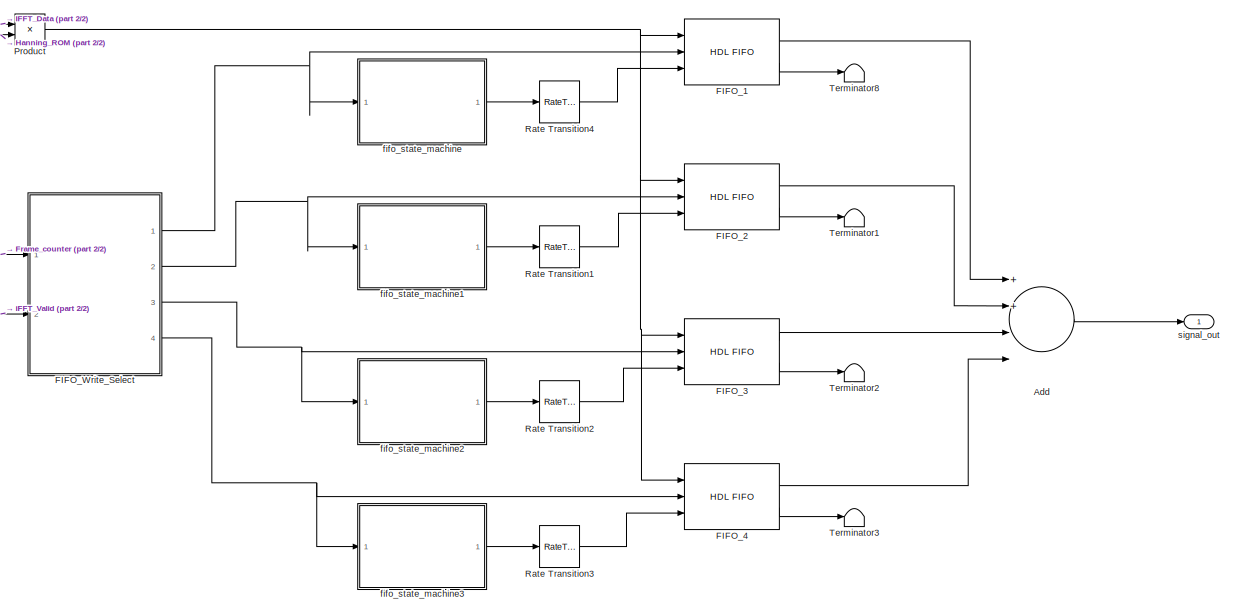
[diagram: dataplane/FFT_Analysis_Synthesis_Left/Synthesis/Overlap_and_Add - part 1/2, center side, full height]
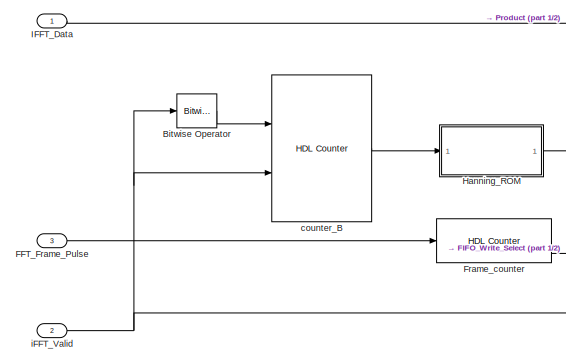
[diagram: dataplane/FFT_Analysis_Synthesis_Left/Synthesis/Overlap_and_Add - part 2/2, top left region]
BLOCK [SubSystem] dataplane/FFT_Analysis_Synthesis_Left/Synthesis/Overlap_and_Add
  Ports = [3, 1]
  RequestExecContextInheritance = off
BLOCK [Sum] dataplane/FFT_Analysis_Synthesis_Left/Synthesis/Overlap_and_Add/Add
  InputSameDT = off
  Inputs = 4
  OutDataTypeStr = Inherit: Inherit via internal rule
  Ports = [4, 1]
  SaturateOnIntegerOverflow = off
BLOCK [Reference] dataplane/FFT_Analysis_Synthesis_Left/Synthesis/Overlap_and_Add/Bitwise Operator  REF=simulink/Logic and Bit
Operations/Bitwise
Operator
  Ports = [1, 1]
  SourceBlock = simulink/Logic and Bit\nOperations/Bitwise\nOperator
  SourceProductBaseCode = SL
  SourceProductName = Simulink
  SourceType = Bitwise Operator
BLOCK [Inport] dataplane/FFT_Analysis_Synthesis_Left/Synthesis/Overlap_and_Add/FFT_Frame_Pulse
  IconDisplay = Port number
  Port = 3
BLOCK [Reference] dataplane/FFT_Analysis_Synthesis_Left/Synthesis/Overlap_and_Add/FIFO_1  REF=hdlsllib/HDL RAMs/HDL FIFO
  Ports = [3, 2]
  SourceBlock = hdlsllib/HDL RAMs/HDL FIFO
  SourceProductBaseCode = SL
  SourceProductName = Simulink
  SourceType = HDL_FIFO
BLOCK [Reference] dataplane/FFT_Analysis_Synthesis_Left/Synthesis/Overlap_and_Add/FIFO_2  REF=hdlsllib/HDL RAMs/HDL FIFO
  Ports = [3, 2]
  SourceBlock = hdlsllib/HDL RAMs/HDL FIFO
  SourceProductBaseCode = SL
  SourceProductName = Simulink
  SourceType = HDL_FIFO
BLOCK [Reference] dataplane/FFT_Analysis_Synthesis_Left/Synthesis/Overlap_and_Add/FIFO_3  REF=hdlsllib/HDL RAMs/HDL FIFO
  Ports = [3, 2]
  SourceBlock = hdlsllib/HDL RAMs/HDL FIFO
  SourceProductBaseCode = SL
  SourceProductName = Simulink
  SourceType = HDL_FIFO
BLOCK [Reference] dataplane/FFT_Analysis_Synthesis_Left/Synthesis/Overlap_and_Add/FIFO_4  REF=hdlsllib/HDL RAMs/HDL FIFO
  Ports = [3, 2]
  SourceBlock = hdlsllib/HDL RAMs/HDL FIFO
  SourceProductBaseCode = SL
  SourceProductName = Simulink
  SourceType = HDL_FIFO
BLOCK [SubSystem] dataplane/FFT_Analysis_Synthesis_Left/Synthesis/Overlap_and_Add/FIFO_Write_Select
  ErrorFcn = Stateflow.Translate.translate
  PermitHierarchicalResolution = ExplicitOnly
  Ports = [2, 4]
  RequestExecContextInheritance = off
  SFBlockType = MATLAB Function
  TreatAsAtomicUnit = on
BLOCK [Demux] dataplane/FFT_Analysis_Synthesis_Left/Synthesis/Overlap_and_Add/FIFO_Write_Select/ Demux 
  DisplayOption = bar
  Outputs = 1
  Ports = [1, 1]
BLOCK [S-Function] dataplane/FFT_Analysis_Synthesis_Left/Synthesis/Overlap_and_Add/FIFO_Write_Select/ SFunction 
  EnableBusSupport = on
  FunctionName = sf_sfun
  PortCounts = [2 5]
  Ports = [2, 5]
  SFcnIsStateOwnerBlock = off
  SFunctionDeploymentMode = off
  Tag = Stateflow S-Function 10
BLOCK [Terminator] dataplane/FFT_Analysis_Synthesis_Left/Synthesis/Overlap_and_Add/FIFO_Write_Select/ Terminator 
BLOCK [Inport] dataplane/FFT_Analysis_Synthesis_Left/Synthesis/Overlap_and_Add/FIFO_Write_Select/fifo_counter
  IconDisplay = Port number
BLOCK [Outport] dataplane/FFT_Analysis_Synthesis_Left/Synthesis/Overlap_and_Add/FIFO_Write_Select/valid_1
  IconDisplay = Port number
  VectorParamsAs1DForOutWhenUnconnected = off
BLOCK [Outport] dataplane/FFT_Analysis_Synthesis_Left/Synthesis/Overlap_and_Add/FIFO_Write_Select/valid_2
  IconDisplay = Port number
  Port = 2
  VectorParamsAs1DForOutWhenUnconnected = off
BLOCK [Outport] dataplane/FFT_Analysis_Synthesis_Left/Synthesis/Overlap_and_Add/FIFO_Write_Select/valid_3
  IconDisplay = Port number
  Port = 3
  VectorParamsAs1DForOutWhenUnconnected = off
BLOCK [Outport] dataplane/FFT_Analysis_Synthesis_Left/Synthesis/Overlap_and_Add/FIFO_Write_Select/valid_4
  IconDisplay = Port number
  Port = 4
  VectorParamsAs1DForOutWhenUnconnected = off
BLOCK [Inport] dataplane/FFT_Analysis_Synthesis_Left/Synthesis/Overlap_and_Add/FIFO_Write_Select/valid_signal
  IconDisplay = Port number
  Port = 2
BLOCK [Reference] dataplane/FFT_Analysis_Synthesis_Left/Synthesis/Overlap_and_Add/Frame_counter  REF=hdlsllib/Sources/HDL Counter
  Ports = [1, 1]
  SourceBlock = hdlsllib/Sources/HDL Counter
  SourceProductBaseCode = SL
  SourceProductName = Simulink
  SourceType = HDL Counter
BLOCK [SubSystem] dataplane/FFT_Analysis_Synthesis_Left/Synthesis/Overlap_and_Add/Hanning_ROM
  Ports = [1, 1]
  RequestExecContextInheritance = off
BLOCK [Reference] dataplane/FFT_Analysis_Synthesis_Left/Synthesis/Overlap_and_Add/Hanning_ROM/Bit Slice  REF=hdlsllib/Logic and Bit
Operations/Bit Slice
  Ports = [1, 1]
  SourceBlock = hdlsllib/Logic and Bit\nOperations/Bit Slice
  SourceProductBaseCode = SL
  SourceProductName = Simulink
  SourceType = Bit Slice
BLOCK [Inport] dataplane/FFT_Analysis_Synthesis_Left/Synthesis/Overlap_and_Add/Hanning_ROM/Index
  IconDisplay = Port number
BLOCK [Lookup_n-D] dataplane/FFT_Analysis_Synthesis_Left/Synthesis/Overlap_and_Add/Hanning_ROM/Lookup Table
  BreakpointsForDimension1 = [0:mp.FFT_size-1]
  DiagnosticForOutOfRangeInput = Error
  ExtrapMethod = Clip
  IndexSearchMethod = Evenly spaced points
  InterpMethod = Flat
  NumberOfTableDimensions = 1
  OutDataTypeStr = fixdt(1,24,22)
  Ports = [1, 1]
  RndMeth = Simplest
  Table = hanning(mp.FFT_size)
  UseLastTableValue = on
BLOCK [UnitDelay] dataplane/FFT_Analysis_Synthesis_Left/Synthesis/Overlap_and_Add/Hanning_ROM/Unit Delay
  HasFrameUpgradeWarning = on
  SampleTime = -1
BLOCK [Outport] dataplane/FFT_Analysis_Synthesis_Left/Synthesis/Overlap_and_Add/Hanning_ROM/hanning_value
  IconDisplay = Port number
  VectorParamsAs1DForOutWhenUnconnected = off
BLOCK [Inport] dataplane/FFT_Analysis_Synthesis_Left/Synthesis/Overlap_and_Add/IFFT_Data
  IconDisplay = Port number
BLOCK [Product] dataplane/FFT_Analysis_Synthesis_Left/Synthesis/Overlap_and_Add/Product
  InputSameDT = off
  Ports = [2, 1]
  RndMeth = Floor
  SaturateOnIntegerOverflow = off
BLOCK [RateTransition] dataplane/FFT_Analysis_Synthesis_Left/Synthesis/Overlap_and_Add/Rate Transition1
  OutPortSampleTimeMultiple = mp.SysRate_Upsample_Factor
  OutPortSampleTimeOpt = Multiple of input port sample time
BLOCK [RateTransition] dataplane/FFT_Analysis_Synthesis_Left/Synthesis/Overlap_and_Add/Rate Transition2
  OutPortSampleTimeMultiple = mp.SysRate_Upsample_Factor
  OutPortSampleTimeOpt = Multiple of input port sample time
BLOCK [RateTransition] dataplane/FFT_Analysis_Synthesis_Left/Synthesis/Overlap_and_Add/Rate Transition3
  OutPortSampleTimeMultiple = mp.SysRate_Upsample_Factor
  OutPortSampleTimeOpt = Multiple of input port sample time
BLOCK [RateTransition] dataplane/FFT_Analysis_Synthesis_Left/Synthesis/Overlap_and_Add/Rate Transition4
  OutPortSampleTimeMultiple = mp.SysRate_Upsample_Factor
  OutPortSampleTimeOpt = Multiple of input port sample time
BLOCK [Terminator] dataplane/FFT_Analysis_Synthesis_Left/Synthesis/Overlap_and_Add/Terminator1
BLOCK [Terminator] dataplane/FFT_Analysis_Synthesis_Left/Synthesis/Overlap_and_Add/Terminator2
BLOCK [Terminator] dataplane/FFT_Analysis_Synthesis_Left/Synthesis/Overlap_and_Add/Terminator3
BLOCK [Terminator] dataplane/FFT_Analysis_Synthesis_Left/Synthesis/Overlap_and_Add/Terminator8
BLOCK [Reference] dataplane/FFT_Analysis_Synthesis_Left/Synthesis/Overlap_and_Add/counter_B  REF=hdlsllib/Sources/HDL Counter
  Ports = [2, 1]
  SourceBlock = hdlsllib/Sources/HDL Counter
  SourceProductBaseCode = SL
  SourceProductName = Simulink
  SourceType = HDL Counter
BLOCK [SubSystem] dataplane/FFT_Analysis_Synthesis_Left/Synthesis/Overlap_and_Add/fifo_state_machine
  ErrorFcn = Stateflow.Translate.translate
  PermitHierarchicalResolution = ExplicitOnly
  Ports = [1, 1]
  RequestExecContextInheritance = off
  SFBlockType = MATLAB Function
  TreatAsAtomicUnit = on
BLOCK [Demux] dataplane/FFT_Analysis_Synthesis_Left/Synthesis/Overlap_and_Add/fifo_state_machine/ Demux 
  DisplayOption = bar
  Outputs = 1
  Ports = [1, 1]
BLOCK [S-Function] dataplane/FFT_Analysis_Synthesis_Left/Synthesis/Overlap_and_Add/fifo_state_machine/ SFunction 
  EnableBusSupport = on
  FunctionName = sf_sfun
  PortCounts = [1 2]
  Ports = [1, 2]
  SFcnIsStateOwnerBlock = off
  SFunctionDeploymentMode = off
  Tag = Stateflow S-Function 11
BLOCK [Terminator] dataplane/FFT_Analysis_Synthesis_Left/Synthesis/Overlap_and_Add/fifo_state_machine/ Terminator 
BLOCK [Outport] dataplane/FFT_Analysis_Synthesis_Left/Synthesis/Overlap_and_Add/fifo_state_machine/pop
  IconDisplay = Port number
  VectorParamsAs1DForOutWhenUnconnected = off
BLOCK [Inport] dataplane/FFT_Analysis_Synthesis_Left/Synthesis/Overlap_and_Add/fifo_state_machine/valid
  IconDisplay = Port number
BLOCK [SubSystem] dataplane/FFT_Analysis_Synthesis_Left/Synthesis/Overlap_and_Add/fifo_state_machine1
  ErrorFcn = Stateflow.Translate.translate
  PermitHierarchicalResolution = ExplicitOnly
  Ports = [1, 1]
  RequestExecContextInheritance = off
  SFBlockType = MATLAB Function
  TreatAsAtomicUnit = on
BLOCK [Demux] dataplane/FFT_Analysis_Synthesis_Left/Synthesis/Overlap_and_Add/fifo_state_machine1/ Demux 
  DisplayOption = bar
  Outputs = 1
  Ports = [1, 1]
BLOCK [S-Function] dataplane/FFT_Analysis_Synthesis_Left/Synthesis/Overlap_and_Add/fifo_state_machine1/ SFunction 
  EnableBusSupport = on
  FunctionName = sf_sfun
  PortCounts = [1 2]
  Ports = [1, 2]
  SFcnIsStateOwnerBlock = off
  SFunctionDeploymentMode = off
  Tag = Stateflow S-Function 5
BLOCK [Terminator] dataplane/FFT_Analysis_Synthesis_Left/Synthesis/Overlap_and_Add/fifo_state_machine1/ Terminator 
BLOCK [Outport] dataplane/FFT_Analysis_Synthesis_Left/Synthesis/Overlap_and_Add/fifo_state_machine1/pop
  IconDisplay = Port number
  VectorParamsAs1DForOutWhenUnconnected = off
BLOCK [Inport] dataplane/FFT_Analysis_Synthesis_Left/Synthesis/Overlap_and_Add/fifo_state_machine1/valid
  IconDisplay = Port number
BLOCK [SubSystem] dataplane/FFT_Analysis_Synthesis_Left/Synthesis/Overlap_and_Add/fifo_state_machine2
  ErrorFcn = Stateflow.Translate.translate
  PermitHierarchicalResolution = ExplicitOnly
  Ports = [1, 1]
  RequestExecContextInheritance = off
  SFBlockType = MATLAB Function
  TreatAsAtomicUnit = on
BLOCK [Demux] dataplane/FFT_Analysis_Synthesis_Left/Synthesis/Overlap_and_Add/fifo_state_machine2/ Demux 
  DisplayOption = bar
  Outputs = 1
  Ports = [1, 1]
BLOCK [S-Function] dataplane/FFT_Analysis_Synthesis_Left/Synthesis/Overlap_and_Add/fifo_state_machine2/ SFunction 
  EnableBusSupport = on
  FunctionName = sf_sfun
  PortCounts = [1 2]
  Ports = [1, 2]
  SFcnIsStateOwnerBlock = off
  SFunctionDeploymentMode = off
  Tag = Stateflow S-Function 6
BLOCK [Terminator] dataplane/FFT_Analysis_Synthesis_Left/Synthesis/Overlap_and_Add/fifo_state_machine2/ Terminator 
BLOCK [Outport] dataplane/FFT_Analysis_Synthesis_Left/Synthesis/Overlap_and_Add/fifo_state_machine2/pop
  IconDisplay = Port number
  VectorParamsAs1DForOutWhenUnconnected = off
BLOCK [Inport] dataplane/FFT_Analysis_Synthesis_Left/Synthesis/Overlap_and_Add/fifo_state_machine2/valid
  IconDisplay = Port number
BLOCK [SubSystem] dataplane/FFT_Analysis_Synthesis_Left/Synthesis/Overlap_and_Add/fifo_state_machine3
  ErrorFcn = Stateflow.Translate.translate
  PermitHierarchicalResolution = ExplicitOnly
  Ports = [1, 1]
  RequestExecContextInheritance = off
  SFBlockType = MATLAB Function
  TreatAsAtomicUnit = on
BLOCK [Demux] dataplane/FFT_Analysis_Synthesis_Left/Synthesis/Overlap_and_Add/fifo_state_machine3/ Demux 
  DisplayOption = bar
  Outputs = 1
  Ports = [1, 1]
BLOCK [S-Function] dataplane/FFT_Analysis_Synthesis_Left/Synthesis/Overlap_and_Add/fifo_state_machine3/ SFunction 
  EnableBusSupport = on
  FunctionName = sf_sfun
  PortCounts = [1 2]
  Ports = [1, 2]
  SFcnIsStateOwnerBlock = off
  SFunctionDeploymentMode = off
  Tag = Stateflow S-Function 7
BLOCK [Terminator] dataplane/FFT_Analysis_Synthesis_Left/Synthesis/Overlap_and_Add/fifo_state_machine3/ Terminator 
BLOCK [Outport] dataplane/FFT_Analysis_Synthesis_Left/Synthesis/Overlap_and_Add/fifo_state_machine3/pop
  IconDisplay = Port number
  VectorParamsAs1DForOutWhenUnconnected = off
BLOCK [Inport] dataplane/FFT_Analysis_Synthesis_Left/Synthesis/Overlap_and_Add/fifo_state_machine3/valid
  IconDisplay = Port number
BLOCK [Inport] dataplane/FFT_Analysis_Synthesis_Left/Synthesis/Overlap_and_Add/iFFT_Valid
  IconDisplay = Port number
  Port = 2
BLOCK [Outport] dataplane/FFT_Analysis_Synthesis_Left/Synthesis/Overlap_and_Add/signal_out
  IconDisplay = Port number
  VectorParamsAs1DForOutWhenUnconnected = off
BLOCK [Terminator] dataplane/FFT_Analysis_Synthesis_Left/Synthesis/Terminator8
BLOCK [Terminator] dataplane/FFT_Analysis_Synthesis_Left/Synthesis/Terminator9
BLOCK [Reference] dataplane/FFT_Analysis_Synthesis_Left/Synthesis/iFFT  REF=dsphdlxfrm/IFFT
HDL Optimized
  Ports = [2, 3]
  SourceBlock = dsphdlxfrm/IFFT\nHDL Optimized
  SourceProductBaseCode = DS
  SourceProductName = DSP System Toolbox
  SourceType = IFFT HDL Optimized
BLOCK [Inport] dataplane/FFT_Analysis_Synthesis_Left/Synthesis/modified_FFT_data
  IconDisplay = Port number
BLOCK [Outport] dataplane/FFT_Analysis_Synthesis_Left/Synthesis/synthesized_signal
  IconDisplay = Port number
  VectorParamsAs1DForOutWhenUnconnected = off
BLOCK [Inport] dataplane/FFT_Analysis_Synthesis_Left/filter_select
  IconDisplay = Port number
  Port = 3
BLOCK [Inport] dataplane/FFT_Analysis_Synthesis_Left/signal_in
  IconDisplay = Port number
BLOCK [Outport] dataplane/FFT_Analysis_Synthesis_Left/signal_out
  IconDisplay = Port number
  VectorParamsAs1DForOutWhenUnconnected = off
BLOCK [SubSystem] dataplane/FFT_Analysis_Synthesis_Right
  Ports = [3, 1]
  RequestExecContextInheritance = off
  TreatAsAtomicUnit = on
BLOCK [SubSystem] dataplane/FFT_Analysis_Synthesis_Right/Analysis
  Ports = [3, 5]
  RequestExecContextInheritance = off
BLOCK [Reference] dataplane/FFT_Analysis_Synthesis_Right/Analysis/FFT  REF=dsphdlxfrm/FFT
HDL Optimized
  Ports = [2, 3]
  SourceBlock = dsphdlxfrm/FFT\nHDL Optimized
  SourceProductBaseCode = DS
  SourceProductName = DSP System Toolbox
  SourceType = FFT HDL Optimized
BLOCK [SubSystem] dataplane/FFT_Analysis_Synthesis_Right/Analysis/FFT Frame Buffering
  Ports = [3, 5]
  RequestExecContextInheritance = off
BLOCK [Constant] dataplane/FFT_Analysis_Synthesis_Right/Analysis/FFT Frame Buffering/Always_Read_B
  OutDataTypeStr = boolean
  SampleTime = mp.Ts/mp.SysRate_Upsample_Factor
  Value = 0
BLOCK [Constant] dataplane/FFT_Analysis_Synthesis_Right/Analysis/FFT Frame Buffering/Always_Write_A
  OutDataTypeStr = boolean
  SampleTime = mp.Ts
BLOCK [Reference] dataplane/FFT_Analysis_Synthesis_Right/Analysis/FFT Frame Buffering/DPRAM  REF=hdlsllib/HDL RAMs/Dual Rate Dual Port RAM
  Ports = [6, 2]
  SourceBlock = hdlsllib/HDL RAMs/Dual Rate Dual Port RAM
  SourceProductBaseCode = SL
  SourceProductName = Simulink
  SourceType = Dual-rate dual-port RAM
BLOCK [DataTypeConversion] dataplane/FFT_Analysis_Synthesis_Right/Analysis/FFT Frame Buffering/Data Type Conversion
  OutDataTypeStr = fixdt(1, mp.W_bits, mp.F_bits)
  RndMeth = Floor
  SaturateOnIntegerOverflow = off
BLOCK [Outport] dataplane/FFT_Analysis_Synthesis_Right/Analysis/FFT Frame Buffering/Data_to_FFT
  IconDisplay = Port number
  VectorParamsAs1DForOutWhenUnconnected = off
BLOCK [Outport] dataplane/FFT_Analysis_Synthesis_Right/Analysis/FFT Frame Buffering/FFT_Frame_Start_Pulse
  IconDisplay = Port number
  Port = 3
  VectorParamsAs1DForOutWhenUnconnected = off
BLOCK [SubSystem] dataplane/FFT_Analysis_Synthesis_Right/Analysis/FFT Frame Buffering/FFT_pulse_gen
  Ports = [1, 2]
  RequestExecContextInheritance = off
BLOCK [Outport] dataplane/FFT_Analysis_Synthesis_Right/Analysis/FFT Frame Buffering/FFT_pulse_gen/Enable_FFTs
  IconDisplay = Port number
  Port = 2
  VectorParamsAs1DForOutWhenUnconnected = off
BLOCK [SubSystem] dataplane/FFT_Analysis_Synthesis_Right/Analysis/FFT Frame Buffering/FFT_pulse_gen/FFT_Frame_Pulse_Gen
  Ports = [1, 1]
  RequestExecContextInheritance = off
BLOCK [Reference] dataplane/FFT_Analysis_Synthesis_Right/Analysis/FFT Frame Buffering/FFT_pulse_gen/FFT_Frame_Pulse_Gen/Bit Slice  REF=hdlsllib/Logic and Bit
Operations/Bit Slice
  Ports = [1, 1]
  SourceBlock = hdlsllib/Logic and Bit\nOperations/Bit Slice
  SourceProductBaseCode = SL
  SourceProductName = Simulink
  SourceType = Bit Slice
BLOCK [Reference] dataplane/FFT_Analysis_Synthesis_Right/Analysis/FFT Frame Buffering/FFT_pulse_gen/FFT_Frame_Pulse_Gen/Compare To Zero  REF=simulink/Logic and Bit
Operations/Compare
To Zero
  Ports = [1, 1]
  SourceBlock = simulink/Logic and Bit\nOperations/Compare\nTo Zero
  SourceProductBaseCode = SL
  SourceProductName = Simulink
  SourceType = Compare To Zero
BLOCK [Outport] dataplane/FFT_Analysis_Synthesis_Right/Analysis/FFT Frame Buffering/FFT_pulse_gen/FFT_Frame_Pulse_Gen/Frame_Pulse
  IconDisplay = Port number
  VectorParamsAs1DForOutWhenUnconnected = off
BLOCK [Inport] dataplane/FFT_Analysis_Synthesis_Right/Analysis/FFT Frame Buffering/FFT_pulse_gen/FFT_Frame_Pulse_Gen/counter_value 
  IconDisplay = Port number
BLOCK [Outport] dataplane/FFT_Analysis_Synthesis_Right/Analysis/FFT Frame Buffering/FFT_pulse_gen/FFT_start_pulse
  IconDisplay = Port number
  VectorParamsAs1DForOutWhenUnconnected = off
BLOCK [SubSystem] dataplane/FFT_Analysis_Synthesis_Right/Analysis/FFT Frame Buffering/FFT_pulse_gen/Wait_for_data_to_start
  Ports = [1, 2]
  RequestExecContextInheritance = off
BLOCK [Reference] dataplane/FFT_Analysis_Synthesis_Right/Analysis/FFT Frame Buffering/FFT_pulse_gen/Wait_for_data_to_start/Bitwise Operator  REF=simulink/Logic and Bit
Operations/Bitwise
Operator
  Ports = [1, 1]
  SourceBlock = simulink/Logic and Bit\nOperations/Bitwise\nOperator
  SourceProductBaseCode = SL
  SourceProductName = Simulink
  SourceType = Bitwise Operator
BLOCK [Reference] dataplane/FFT_Analysis_Synthesis_Right/Analysis/FFT Frame Buffering/FFT_pulse_gen/Wait_for_data_to_start/Compare To Constant  REF=simulink/Logic and Bit
Operations/Compare
To Constant
  Ports = [1, 1]
  SourceBlock = simulink/Logic and Bit\nOperations/Compare\nTo Constant
  SourceProductBaseCode = SL
  SourceProductName = Simulink
  SourceType = Compare To Constant
BLOCK [Outport] dataplane/FFT_Analysis_Synthesis_Right/Analysis/FFT Frame Buffering/FFT_pulse_gen/Wait_for_data_to_start/Enable_FFT_Frames
  IconDisplay = Port number
  Port = 2
  VectorParamsAs1DForOutWhenUnconnected = off
BLOCK [Outport] dataplane/FFT_Analysis_Synthesis_Right/Analysis/FFT Frame Buffering/FFT_pulse_gen/Wait_for_data_to_start/FFT_Frame_Start
  IconDisplay = Port number
  VectorParamsAs1DForOutWhenUnconnected = off
BLOCK [Inport] dataplane/FFT_Analysis_Synthesis_Right/Analysis/FFT Frame Buffering/FFT_pulse_gen/Wait_for_data_to_start/Frame_Pulse
  IconDisplay = Port number
BLOCK [Reference] dataplane/FFT_Analysis_Synthesis_Right/Analysis/FFT Frame Buffering/FFT_pulse_gen/Wait_for_data_to_start/Initial_frame_count  REF=hdlsllib/Sources/HDL Counter
  Ports = [1, 1]
  SourceBlock = hdlsllib/Sources/HDL Counter
  SourceProductBaseCode = SL
  SourceProductName = Simulink
  SourceType = HDL Counter
BLOCK [Logic] dataplane/FFT_Analysis_Synthesis_Right/Analysis/FFT Frame Buffering/FFT_pulse_gen/Wait_for_data_to_start/Logical Operator
  AllPortsSameDT = off
  OutDataTypeStr = boolean
  Ports = [2, 1]
BLOCK [Logic] dataplane/FFT_Analysis_Synthesis_Right/Analysis/FFT Frame Buffering/FFT_pulse_gen/Wait_for_data_to_start/Logical Operator1
  AllPortsSameDT = off
  OutDataTypeStr = boolean
  Ports = [2, 1]
BLOCK [Inport] dataplane/FFT_Analysis_Synthesis_Right/Analysis/FFT Frame Buffering/FFT_pulse_gen/counter
  IconDisplay = Port number
BLOCK [SubSystem] dataplane/FFT_Analysis_Synthesis_Right/Analysis/FFT Frame Buffering/Fast_Transition
  Ports = [4, 4]
  RequestExecContextInheritance = off
BLOCK [Outport] dataplane/FFT_Analysis_Synthesis_Right/Analysis/FFT Frame Buffering/Fast_Transition/Fast_Enable
  IconDisplay = Port number
  Port = 2
BLOCK [Outport] dataplane/FFT_Analysis_Synthesis_Right/Analysis/FFT Frame Buffering/Fast_Transition/Fast_Passthrough
  IconDisplay = Port number
  Port = 3
BLOCK [Outport] dataplane/FFT_Analysis_Synthesis_Right/Analysis/FFT Frame Buffering/Fast_Transition/Fast_Pulse
  IconDisplay = Port number
BLOCK [Outport] dataplane/FFT_Analysis_Synthesis_Right/Analysis/FFT Frame Buffering/Fast_Transition/Fast_select
  IconDisplay = Port number
  Port = 4
BLOCK [RateTransition] dataplane/FFT_Analysis_Synthesis_Right/Analysis/FFT Frame Buffering/Fast_Transition/Rate Transition
  OutPortSampleTimeMultiple = 1/mp.SysRate_Upsample_Factor
  OutPortSampleTimeOpt = Multiple of input port sample time
BLOCK [RateTransition] dataplane/FFT_Analysis_Synthesis_Right/Analysis/FFT Frame Buffering/Fast_Transition/Rate Transition1
  OutPortSampleTimeMultiple = 1/mp.SysRate_Upsample_Factor
  OutPortSampleTimeOpt = Multiple of input port sample time
BLOCK [RateTransition] dataplane/FFT_Analysis_Synthesis_Right/Analysis/FFT Frame Buffering/Fast_Transition/Rate Transition2
  InitialCondition = 3
  OutPortSampleTimeMultiple = 1/mp.SysRate_Upsample_Factor
  OutPortSampleTimeOpt = Multiple of input port sample time
BLOCK [Inport] dataplane/FFT_Analysis_Synthesis_Right/Analysis/FFT Frame Buffering/Fast_Transition/Slow_Enable
  IconDisplay = Port number
  Port = 2
BLOCK [Inport] dataplane/FFT_Analysis_Synthesis_Right/Analysis/FFT Frame Buffering/Fast_Transition/Slow_Passthrough
  IconDisplay = Port number
  Port = 3
BLOCK [Inport] dataplane/FFT_Analysis_Synthesis_Right/Analysis/FFT Frame Buffering/Fast_Transition/Slow_Pulse
  IconDisplay = Port number
BLOCK [Inport] dataplane/FFT_Analysis_Synthesis_Right/Analysis/FFT Frame Buffering/Fast_Transition/Slow_select
  IconDisplay = Port number
  Port = 4
BLOCK [Reference] dataplane/FFT_Analysis_Synthesis_Right/Analysis/FFT Frame Buffering/Fast_Transition/Upsample  REF=dspsigops/Upsample
  Ports = [1, 1]
  SourceBlock = dspsigops/Upsample
  SourceProductBaseCode = DS
  SourceProductName = DSP System Toolbox
  SourceType = Upsample
  UserDataPersistent = on
BLOCK [SubSystem] dataplane/FFT_Analysis_Synthesis_Right/Analysis/FFT Frame Buffering/Hanning_ROM
  Ports = [1, 1]
  RequestExecContextInheritance = off
BLOCK [Reference] dataplane/FFT_Analysis_Synthesis_Right/Analysis/FFT Frame Buffering/Hanning_ROM/Bit Slice  REF=hdlsllib/Logic and Bit
Operations/Bit Slice
  Ports = [1, 1]
  SourceBlock = hdlsllib/Logic and Bit\nOperations/Bit Slice
  SourceProductBaseCode = SL
  SourceProductName = Simulink
  SourceType = Bit Slice
BLOCK [Inport] dataplane/FFT_Analysis_Synthesis_Right/Analysis/FFT Frame Buffering/Hanning_ROM/Index
  IconDisplay = Port number
BLOCK [Lookup_n-D] dataplane/FFT_Analysis_Synthesis_Right/Analysis/FFT Frame Buffering/Hanning_ROM/Lookup Table
  BreakpointsForDimension1 = [0:mp.FFT_size-1]
  DiagnosticForOutOfRangeInput = Warning
  ExtrapMethod = Clip
  IndexSearchMethod = Evenly spaced points
  InterpMethod = Flat
  NumberOfTableDimensions = 1
  OutDataTypeStr = fixdt(1,24,23)
  Ports = [1, 1]
  RndMeth = Simplest
  Table = hanning(mp.FFT_size)
  UseLastTableValue = on
BLOCK [UnitDelay] dataplane/FFT_Analysis_Synthesis_Right/Analysis/FFT Frame Buffering/Hanning_ROM/Unit Delay
  HasFrameUpgradeWarning = on
  SampleTime = -1
BLOCK [Outport] dataplane/FFT_Analysis_Synthesis_Right/Analysis/FFT Frame Buffering/Hanning_ROM/hanning_value
  IconDisplay = Port number
  VectorParamsAs1DForOutWhenUnconnected = off
BLOCK [Constant] dataplane/FFT_Analysis_Synthesis_Right/Analysis/FFT Frame Buffering/Never_Write_B
  OutDataTypeStr = fixdt(1,24,23)
  SampleTime = mp.Ts/mp.SysRate_Upsample_Factor
  Value = 0
BLOCK [Product] dataplane/FFT_Analysis_Synthesis_Right/Analysis/FFT Frame Buffering/Product
  InputSameDT = off
  OutDataTypeStr = Inherit: Inherit via internal rule
  Ports = [2, 1]
  RndMeth = Floor
  SaturateOnIntegerOverflow = off
BLOCK [Inport] dataplane/FFT_Analysis_Synthesis_Right/Analysis/FFT Frame Buffering/Sample_Data_in
  IconDisplay = Port number
BLOCK [Terminator] dataplane/FFT_Analysis_Synthesis_Right/Analysis/FFT Frame Buffering/Terminator7
BLOCK [UnitDelay] dataplane/FFT_Analysis_Synthesis_Right/Analysis/FFT Frame Buffering/Unit Delay
  HasFrameUpgradeWarning = on
  SampleTime = -1
BLOCK [Outport] dataplane/FFT_Analysis_Synthesis_Right/Analysis/FFT Frame Buffering/Valid_to_FFT
  IconDisplay = Port number
  Port = 2
  VectorParamsAs1DForOutWhenUnconnected = off
BLOCK [SubSystem] dataplane/FFT_Analysis_Synthesis_Right/Analysis/FFT Frame Buffering/addr_A_offset
  Ports = [1, 1]
  RequestExecContextInheritance = off
BLOCK [Sum] dataplane/FFT_Analysis_Synthesis_Right/Analysis/FFT Frame Buffering/addr_A_offset/Add
  InputSameDT = off
  OutDataTypeStr = fixdt(0,mp.DPRAM1_address_size,0)
  Ports = [2, 1]
  SaturateOnIntegerOverflow = off
BLOCK [Outport] dataplane/FFT_Analysis_Synthesis_Right/Analysis/FFT Frame Buffering/addr_A_offset/addr_A
  IconDisplay = Port number
  VectorParamsAs1DForOutWhenUnconnected = off
BLOCK [Inport] dataplane/FFT_Analysis_Synthesis_Right/Analysis/FFT Frame Buffering/addr_A_offset/counter_A
  IconDisplay = Port number
BLOCK [Constant] dataplane/FFT_Analysis_Synthesis_Right/Analysis/FFT Frame Buffering/addr_A_offset/write_offset
  OutDataTypeStr = fixdt(0,mp.DPRAM1_address_size,0)
  SampleTime = mp.Ts
BLOCK [SubSystem] dataplane/FFT_Analysis_Synthesis_Right/Analysis/FFT Frame Buffering/addr_B_gen
  Ports = [2, 3]
  RequestExecContextInheritance = off
BLOCK [Outport] dataplane/FFT_Analysis_Synthesis_Right/Analysis/FFT Frame Buffering/addr_B_gen/FFT_Valid
  IconDisplay = Port number
  Port = 3
  VectorParamsAs1DForOutWhenUnconnected = off
BLOCK [Outport] dataplane/FFT_Analysis_Synthesis_Right/Analysis/FFT Frame Buffering/addr_B_gen/Frame_counter
  IconDisplay = Port number
  Port = 2
  VectorParamsAs1DForOutWhenUnconnected = off
BLOCK [Logic] dataplane/FFT_Analysis_Synthesis_Right/Analysis/FFT Frame Buffering/addr_B_gen/Logical Operator1
  AllPortsSameDT = off
  OutDataTypeStr = boolean
  Ports = [2, 1]
BLOCK [Outport] dataplane/FFT_Analysis_Synthesis_Right/Analysis/FFT Frame Buffering/addr_B_gen/addr_B
  IconDisplay = Port number
  VectorParamsAs1DForOutWhenUnconnected = off
BLOCK [SubSystem] dataplane/FFT_Analysis_Synthesis_Right/Analysis/FFT Frame Buffering/addr_B_gen/addr_B_gen_enable
  Ports = [1, 3]
  RequestExecContextInheritance = off
BLOCK [Reference] dataplane/FFT_Analysis_Synthesis_Right/Analysis/FFT Frame Buffering/addr_B_gen/addr_B_gen_enable/B_Enable_Counter  REF=hdlsllib/Sources/HDL Counter
  Ports = [2, 1]
  SourceBlock = hdlsllib/Sources/HDL Counter
  SourceProductBaseCode = SL
  SourceProductName = Simulink
  SourceType = HDL Counter
BLOCK [Constant] dataplane/FFT_Analysis_Synthesis_Right/Analysis/FFT Frame Buffering/addr_B_gen/addr_B_gen_enable/Constant5
  OutDataTypeStr = fixdt(0,mp.FFT_size_Nbits,0)
  SampleTime = mp.Ts/mp.SysRate_Upsample_Factor
  Value = mp.FFT_size
BLOCK [Outport] dataplane/FFT_Analysis_Synthesis_Right/Analysis/FFT Frame Buffering/addr_B_gen/addr_B_gen_enable/Frame_Index
  IconDisplay = Port number
  Port = 3
  VectorParamsAs1DForOutWhenUnconnected = off
BLOCK [RelationalOperator] dataplane/FFT_Analysis_Synthesis_Right/Analysis/FFT Frame Buffering/addr_B_gen/addr_B_gen_enable/Relational Operator
  InputSameDT = off
  Operator = <=
  OutDataTypeStr = boolean
  Ports = [2, 1]
  ZeroCross = off
BLOCK [Outport] dataplane/FFT_Analysis_Synthesis_Right/Analysis/FFT Frame Buffering/addr_B_gen/addr_B_gen_enable/Start_Address
  IconDisplay = Port number
  Port = 2
  VectorParamsAs1DForOutWhenUnconnected = off
BLOCK [Reference] dataplane/FFT_Analysis_Synthesis_Right/Analysis/FFT Frame Buffering/addr_B_gen/addr_B_gen_enable/Start_Address_Counter  REF=hdlsllib/Sources/HDL Counter
  Ports = [1, 1]
  SourceBlock = hdlsllib/Sources/HDL Counter
  SourceProductBaseCode = SL
  SourceProductName = Simulink
  SourceType = HDL Counter
BLOCK [Outport] dataplane/FFT_Analysis_Synthesis_Right/Analysis/FFT Frame Buffering/addr_B_gen/addr_B_gen_enable/enable_B
  IconDisplay = Port number
  VectorParamsAs1DForOutWhenUnconnected = off
BLOCK [Inport] dataplane/FFT_Analysis_Synthesis_Right/Analysis/FFT Frame Buffering/addr_B_gen/addr_B_gen_enable/start
  IconDisplay = Port number
BLOCK [Reference] dataplane/FFT_Analysis_Synthesis_Right/Analysis/FFT Frame Buffering/addr_B_gen/counter_B  REF=hdlsllib/Sources/HDL Counter
  Ports = [3, 1]
  SourceBlock = hdlsllib/Sources/HDL Counter
  SourceProductBaseCode = SL
  SourceProductName = Simulink
  SourceType = HDL Counter
BLOCK [Inport] dataplane/FFT_Analysis_Synthesis_Right/Analysis/FFT Frame Buffering/addr_B_gen/enable
  IconDisplay = Port number
  Port = 2
BLOCK [Inport] dataplane/FFT_Analysis_Synthesis_Right/Analysis/FFT Frame Buffering/addr_B_gen/start
  IconDisplay = Port number
BLOCK [Reference] dataplane/FFT_Analysis_Synthesis_Right/Analysis/FFT Frame Buffering/counter_A  REF=simulink/Sources/Counter
Free-Running
  Ports = [0, 1]
  SourceBlock = simulink/Sources/Counter\nFree-Running
  SourceProductBaseCode = SL
  SourceProductName = Simulink
  SourceType = Counter Free-Running
BLOCK [Inport] dataplane/FFT_Analysis_Synthesis_Right/Analysis/FFT Frame Buffering/filter_select
  IconDisplay = Port number
  Port = 3
BLOCK [Outport] dataplane/FFT_Analysis_Synthesis_Right/Analysis/FFT Frame Buffering/filter_select_out
  IconDisplay = Port number
  Port = 5
BLOCK [Outport] dataplane/FFT_Analysis_Synthesis_Right/Analysis/FFT Frame Buffering/passthrough
  IconDisplay = Port number
  Port = 4
BLOCK [Inport] dataplane/FFT_Analysis_Synthesis_Right/Analysis/FFT Frame Buffering/passthrough_in
  IconDisplay = Port number
  Port = 2
BLOCK [Outport] dataplane/FFT_Analysis_Synthesis_Right/Analysis/FFT_data
  IconDisplay = Port number
  VectorParamsAs1DForOutWhenUnconnected = off
BLOCK [Outport] dataplane/FFT_Analysis_Synthesis_Right/Analysis/FFT_frame_pulse
  IconDisplay = Port number
  Port = 3
  VectorParamsAs1DForOutWhenUnconnected = off
BLOCK [Outport] dataplane/FFT_Analysis_Synthesis_Right/Analysis/FFT_valid
  IconDisplay = Port number
  Port = 2
  VectorParamsAs1DForOutWhenUnconnected = off
BLOCK [Inport] dataplane/FFT_Analysis_Synthesis_Right/Analysis/Passthrough
  IconDisplay = Port number
  Port = 2
BLOCK [Inport] dataplane/FFT_Analysis_Synthesis_Right/Analysis/Signal_in
  IconDisplay = Port number
BLOCK [Terminator] dataplane/FFT_Analysis_Synthesis_Right/Analysis/Terminator6
BLOCK [Inport] dataplane/FFT_Analysis_Synthesis_Right/Analysis/filter_select
  IconDisplay = Port number
  Port = 3
BLOCK [Outport] dataplane/FFT_Analysis_Synthesis_Right/Analysis/filter_select_out
  IconDisplay = Port number
  Port = 5
BLOCK [Outport] dataplane/FFT_Analysis_Synthesis_Right/Analysis/passthrough
  IconDisplay = Port number
  Port = 4
BLOCK [SubSystem] dataplane/FFT_Analysis_Synthesis_Right/Frequency_Domain_Processing
  Ports = [5, 3]
  RequestExecContextInheritance = off
BLOCK [SubSystem] dataplane/FFT_Analysis_Synthesis_Right/Frequency_Domain_Processing/Apply_Complex_Gains
  Ports = [4, 3]
  RequestExecContextInheritance = off
BLOCK [SubSystem] dataplane/FFT_Analysis_Synthesis_Right/Frequency_Domain_Processing/Apply_Complex_Gains/FFT_Filter_Coefficients
  Ports = [2, 1]
  RequestExecContextInheritance = off
BLOCK [SubSystem] dataplane/FFT_Analysis_Synthesis_Right/Frequency_Domain_Processing/Apply_Complex_Gains/FFT_Filter_Coefficients/FFT_ROM_Indexing
  Ports = [1, 1]
  RequestExecContextInheritance = off
BLOCK [Reference] dataplane/FFT_Analysis_Synthesis_Right/Frequency_Domain_Processing/Apply_Complex_Gains/FFT_Filter_Coefficients/FFT_ROM_Indexing/Bitwise Operator  REF=simulink/Logic and Bit
Operations/Bitwise
Operator
  Ports = [1, 1]
  SourceBlock = simulink/Logic and Bit\nOperations/Bitwise\nOperator
  SourceProductBaseCode = SL
  SourceProductName = Simulink
  SourceType = Bitwise Operator
BLOCK [Constant] dataplane/FFT_Analysis_Synthesis_Right/Frequency_Domain_Processing/Apply_Complex_Gains/FFT_Filter_Coefficients/FFT_ROM_Indexing/Constant
  OutDataTypeStr = fixdt(0,mp.FFT_size_Nbits,0)
  SampleTime = mp.Ts/mp.SysRate_Upsample_Factor
  Value = 0
BLOCK [Constant] dataplane/FFT_Analysis_Synthesis_Right/Frequency_Domain_Processing/Apply_Complex_Gains/FFT_Filter_Coefficients/FFT_ROM_Indexing/Constant5
  OutDataTypeStr = fixdt(0,mp.FFT_size_Nbits,0)
  SampleTime = mp.Ts/mp.SysRate_Upsample_Factor
  Value = mp.FFT_size_half
BLOCK [Reference] dataplane/FFT_Analysis_Synthesis_Right/Frequency_Domain_Processing/Apply_Complex_Gains/FFT_Filter_Coefficients/FFT_ROM_Indexing/FFT_count  REF=hdlsllib/Sources/HDL Counter
  Ports = [2, 1]
  SourceBlock = hdlsllib/Sources/HDL Counter
  SourceProductBaseCode = SL
  SourceProductName = Simulink
  SourceType = HDL Counter
BLOCK [Outport] dataplane/FFT_Analysis_Synthesis_Right/Frequency_Domain_Processing/Apply_Complex_Gains/FFT_Filter_Coefficients/FFT_ROM_Indexing/ROM_index
  IconDisplay = Port number
BLOCK [RelationalOperator] dataplane/FFT_Analysis_Synthesis_Right/Frequency_Domain_Processing/Apply_Complex_Gains/FFT_Filter_Coefficients/FFT_ROM_Indexing/Relational Operator
  InputSameDT = off
  Operator = <
  OutDataTypeStr = boolean
  Ports = [2, 1]
  ZeroCross = off
BLOCK [RelationalOperator] dataplane/FFT_Analysis_Synthesis_Right/Frequency_Domain_Processing/Apply_Complex_Gains/FFT_Filter_Coefficients/FFT_ROM_Indexing/Relational Operator1
  InputSameDT = off
  Operator = ~=
  OutDataTypeStr = boolean
  Ports = [2, 1]
  ZeroCross = off
BLOCK [Switch] dataplane/FFT_Analysis_Synthesis_Right/Frequency_Domain_Processing/Apply_Complex_Gains/FFT_Filter_Coefficients/FFT_ROM_Indexing/Switch
  Criteria = u2 > Threshold
  InputSameDT = off
  SaturateOnIntegerOverflow = off
BLOCK [Reference] dataplane/FFT_Analysis_Synthesis_Right/Frequency_Domain_Processing/Apply_Complex_Gains/FFT_Filter_Coefficients/FFT_ROM_Indexing/counter_gain_index  REF=hdlsllib/Sources/HDL Counter
  Ports = [3, 1]
  SourceBlock = hdlsllib/Sources/HDL Counter
  SourceProductBaseCode = SL
  SourceProductName = Simulink
  SourceType = HDL Counter
BLOCK [Inport] dataplane/FFT_Analysis_Synthesis_Right/Frequency_Domain_Processing/Apply_Complex_Gains/FFT_Filter_Coefficients/FFT_ROM_Indexing/valid
  IconDisplay = Port number
BLOCK [SubSystem] dataplane/FFT_Analysis_Synthesis_Right/Frequency_Domain_Processing/Apply_Complex_Gains/FFT_Filter_Coefficients/Filter_ROM_Choice
  Ports = [2, 1]
  RequestExecContextInheritance = off
BLOCK [SubSystem] dataplane/FFT_Analysis_Synthesis_Right/Frequency_Domain_Processing/Apply_Complex_Gains/FFT_Filter_Coefficients/Filter_ROM_Choice/Complex_Gains_1_ROM
  Ports = [1, 1]
  RequestExecContextInheritance = off
BLOCK [SubSystem] dataplane/FFT_Analysis_Synthesis_Right/Frequency_Domain_Processing/Apply_Complex_Gains/FFT_Filter_Coefficients/Filter_ROM_Choice/Complex_Gains_1_ROM/Gains_ROM_imag
  Ports = [1, 1]
  RequestExecContextInheritance = off
BLOCK [Inport] dataplane/FFT_Analysis_Synthesis_Right/Frequency_Domain_Processing/Apply_Complex_Gains/FFT_Filter_Coefficients/Filter_ROM_Choice/Complex_Gains_1_ROM/Gains_ROM_imag/Index
  IconDisplay = Port number
BLOCK [Lookup_n-D] dataplane/FFT_Analysis_Synthesis_Right/Frequency_Domain_Processing/Apply_Complex_Gains/FFT_Filter_Coefficients/Filter_ROM_Choice/Complex_Gains_1_ROM/Gains_ROM_imag/Lookup Table
  BreakpointsForDimension1 = [0:mp.FFT_size_half-1]
  DiagnosticForOutOfRangeInput = Error
  ExtrapMethod = Clip
  IndexSearchMethod = Evenly spaced points
  InterpMethod = Flat
  NumberOfTableDimensions = 1
  OutDataTypeStr = fixdt(1,mp.W_bits,mp.F_bits)
  Ports = [1, 1]
  RndMeth = Simplest
  Table = mp.fft_gains_1_imag
  UseLastTableValue = on
BLOCK [UnitDelay] dataplane/FFT_Analysis_Synthesis_Right/Frequency_Domain_Processing/Apply_Complex_Gains/FFT_Filter_Coefficients/Filter_ROM_Choice/Complex_Gains_1_ROM/Gains_ROM_imag/Unit Delay
  HasFrameUpgradeWarning = on
  SampleTime = -1
BLOCK [Outport] dataplane/FFT_Analysis_Synthesis_Right/Frequency_Domain_Processing/Apply_Complex_Gains/FFT_Filter_Coefficients/Filter_ROM_Choice/Complex_Gains_1_ROM/Gains_ROM_imag/gain_value_imag
  IconDisplay = Port number
  VectorParamsAs1DForOutWhenUnconnected = off
BLOCK [SubSystem] dataplane/FFT_Analysis_Synthesis_Right/Frequency_Domain_Processing/Apply_Complex_Gains/FFT_Filter_Coefficients/Filter_ROM_Choice/Complex_Gains_1_ROM/Gains_ROM_real
  Ports = [1, 1]
  RequestExecContextInheritance = off
BLOCK [Inport] dataplane/FFT_Analysis_Synthesis_Right/Frequency_Domain_Processing/Apply_Complex_Gains/FFT_Filter_Coefficients/Filter_ROM_Choice/Complex_Gains_1_ROM/Gains_ROM_real/Index
  IconDisplay = Port number
BLOCK [Lookup_n-D] dataplane/FFT_Analysis_Synthesis_Right/Frequency_Domain_Processing/Apply_Complex_Gains/FFT_Filter_Coefficients/Filter_ROM_Choice/Complex_Gains_1_ROM/Gains_ROM_real/Lookup Table
  BreakpointsForDimension1 = [0:mp.FFT_size_half-1]
  DiagnosticForOutOfRangeInput = Error
  ExtrapMethod = Clip
  IndexSearchMethod = Evenly spaced points
  InterpMethod = Flat
  NumberOfTableDimensions = 1
  OutDataTypeStr = fixdt(1,mp.W_bits,mp.F_bits)
  Ports = [1, 1]
  RndMeth = Simplest
  Table = mp.fft_gains_1_real
  UseLastTableValue = on
BLOCK [UnitDelay] dataplane/FFT_Analysis_Synthesis_Right/Frequency_Domain_Processing/Apply_Complex_Gains/FFT_Filter_Coefficients/Filter_ROM_Choice/Complex_Gains_1_ROM/Gains_ROM_real/Unit Delay
  HasFrameUpgradeWarning = on
  SampleTime = -1
BLOCK [Outport] dataplane/FFT_Analysis_Synthesis_Right/Frequency_Domain_Processing/Apply_Complex_Gains/FFT_Filter_Coefficients/Filter_ROM_Choice/Complex_Gains_1_ROM/Gains_ROM_real/gain_value_real
  IconDisplay = Port number
  VectorParamsAs1DForOutWhenUnconnected = off
BLOCK [Inport] dataplane/FFT_Analysis_Synthesis_Right/Frequency_Domain_Processing/Apply_Complex_Gains/FFT_Filter_Coefficients/Filter_ROM_Choice/Complex_Gains_1_ROM/Index
  IconDisplay = Port number
BLOCK [RealImagToComplex] dataplane/FFT_Analysis_Synthesis_Right/Frequency_Domain_Processing/Apply_Complex_Gains/FFT_Filter_Coefficients/Filter_ROM_Choice/Complex_Gains_1_ROM/Real-Imag to Complex
  Ports = [2, 1]
BLOCK [Outport] dataplane/FFT_Analysis_Synthesis_Right/Frequency_Domain_Processing/Apply_Complex_Gains/FFT_Filter_Coefficients/Filter_ROM_Choice/Complex_Gains_1_ROM/gains
  IconDisplay = Port number
BLOCK [SubSystem] dataplane/FFT_Analysis_Synthesis_Right/Frequency_Domain_Processing/Apply_Complex_Gains/FFT_Filter_Coefficients/Filter_ROM_Choice/Complex_Gains_2_ROM
  Ports = [1, 1]
  RequestExecContextInheritance = off
BLOCK [SubSystem] dataplane/FFT_Analysis_Synthesis_Right/Frequency_Domain_Processing/Apply_Complex_Gains/FFT_Filter_Coefficients/Filter_ROM_Choice/Complex_Gains_2_ROM/Gains_ROM_imag
  Ports = [1, 1]
  RequestExecContextInheritance = off
BLOCK [Inport] dataplane/FFT_Analysis_Synthesis_Right/Frequency_Domain_Processing/Apply_Complex_Gains/FFT_Filter_Coefficients/Filter_ROM_Choice/Complex_Gains_2_ROM/Gains_ROM_imag/Index
  IconDisplay = Port number
BLOCK [Lookup_n-D] dataplane/FFT_Analysis_Synthesis_Right/Frequency_Domain_Processing/Apply_Complex_Gains/FFT_Filter_Coefficients/Filter_ROM_Choice/Complex_Gains_2_ROM/Gains_ROM_imag/Lookup Table
  BreakpointsForDimension1 = [0:mp.FFT_size_half-1]
  DiagnosticForOutOfRangeInput = Error
  ExtrapMethod = Clip
  IndexSearchMethod = Evenly spaced points
  InterpMethod = Flat
  NumberOfTableDimensions = 1
  OutDataTypeStr = fixdt(1,mp.W_bits,mp.F_bits)
  Ports = [1, 1]
  RndMeth = Simplest
  Table = mp.fft_gains_2_imag
  UseLastTableValue = on
BLOCK [UnitDelay] dataplane/FFT_Analysis_Synthesis_Right/Frequency_Domain_Processing/Apply_Complex_Gains/FFT_Filter_Coefficients/Filter_ROM_Choice/Complex_Gains_2_ROM/Gains_ROM_imag/Unit Delay
  HasFrameUpgradeWarning = on
  SampleTime = -1
BLOCK [Outport] dataplane/FFT_Analysis_Synthesis_Right/Frequency_Domain_Processing/Apply_Complex_Gains/FFT_Filter_Coefficients/Filter_ROM_Choice/Complex_Gains_2_ROM/Gains_ROM_imag/gain_value_imag
  IconDisplay = Port number
  VectorParamsAs1DForOutWhenUnconnected = off
BLOCK [SubSystem] dataplane/FFT_Analysis_Synthesis_Right/Frequency_Domain_Processing/Apply_Complex_Gains/FFT_Filter_Coefficients/Filter_ROM_Choice/Complex_Gains_2_ROM/Gains_ROM_real
  Ports = [1, 1]
  RequestExecContextInheritance = off
BLOCK [Inport] dataplane/FFT_Analysis_Synthesis_Right/Frequency_Domain_Processing/Apply_Complex_Gains/FFT_Filter_Coefficients/Filter_ROM_Choice/Complex_Gains_2_ROM/Gains_ROM_real/Index
  IconDisplay = Port number
BLOCK [Lookup_n-D] dataplane/FFT_Analysis_Synthesis_Right/Frequency_Domain_Processing/Apply_Complex_Gains/FFT_Filter_Coefficients/Filter_ROM_Choice/Complex_Gains_2_ROM/Gains_ROM_real/Lookup Table
  BreakpointsForDimension1 = [0:mp.FFT_size_half-1]
  DiagnosticForOutOfRangeInput = Error
  ExtrapMethod = Clip
  IndexSearchMethod = Evenly spaced points
  InterpMethod = Flat
  NumberOfTableDimensions = 1
  OutDataTypeStr = fixdt(1,mp.W_bits,mp.F_bits)
  Ports = [1, 1]
  RndMeth = Simplest
  Table = mp.fft_gains_2_real
  UseLastTableValue = on
BLOCK [UnitDelay] dataplane/FFT_Analysis_Synthesis_Right/Frequency_Domain_Processing/Apply_Complex_Gains/FFT_Filter_Coefficients/Filter_ROM_Choice/Complex_Gains_2_ROM/Gains_ROM_real/Unit Delay
  HasFrameUpgradeWarning = on
  SampleTime = -1
BLOCK [Outport] dataplane/FFT_Analysis_Synthesis_Right/Frequency_Domain_Processing/Apply_Complex_Gains/FFT_Filter_Coefficients/Filter_ROM_Choice/Complex_Gains_2_ROM/Gains_ROM_real/gain_value_real
  IconDisplay = Port number
  VectorParamsAs1DForOutWhenUnconnected = off
BLOCK [Inport] dataplane/FFT_Analysis_Synthesis_Right/Frequency_Domain_Processing/Apply_Complex_Gains/FFT_Filter_Coefficients/Filter_ROM_Choice/Complex_Gains_2_ROM/Index
  IconDisplay = Port number
BLOCK [RealImagToComplex] dataplane/FFT_Analysis_Synthesis_Right/Frequency_Domain_Processing/Apply_Complex_Gains/FFT_Filter_Coefficients/Filter_ROM_Choice/Complex_Gains_2_ROM/Real-Imag to Complex
  Ports = [2, 1]
BLOCK [Outport] dataplane/FFT_Analysis_Synthesis_Right/Frequency_Domain_Processing/Apply_Complex_Gains/FFT_Filter_Coefficients/Filter_ROM_Choice/Complex_Gains_2_ROM/gains
  IconDisplay = Port number
BLOCK [SubSystem] dataplane/FFT_Analysis_Synthesis_Right/Frequency_Domain_Processing/Apply_Complex_Gains/FFT_Filter_Coefficients/Filter_ROM_Choice/Complex_Gains_3_ROM
  Ports = [1, 1]
  RequestExecContextInheritance = off
BLOCK [SubSystem] dataplane/FFT_Analysis_Synthesis_Right/Frequency_Domain_Processing/Apply_Complex_Gains/FFT_Filter_Coefficients/Filter_ROM_Choice/Complex_Gains_3_ROM/Gains_ROM_imag
  Ports = [1, 1]
  RequestExecContextInheritance = off
BLOCK [Inport] dataplane/FFT_Analysis_Synthesis_Right/Frequency_Domain_Processing/Apply_Complex_Gains/FFT_Filter_Coefficients/Filter_ROM_Choice/Complex_Gains_3_ROM/Gains_ROM_imag/Index
  IconDisplay = Port number
BLOCK [Lookup_n-D] dataplane/FFT_Analysis_Synthesis_Right/Frequency_Domain_Processing/Apply_Complex_Gains/FFT_Filter_Coefficients/Filter_ROM_Choice/Complex_Gains_3_ROM/Gains_ROM_imag/Lookup Table
  BreakpointsForDimension1 = [0:mp.FFT_size_half-1]
  DiagnosticForOutOfRangeInput = Error
  ExtrapMethod = Clip
  IndexSearchMethod = Evenly spaced points
  InterpMethod = Flat
  NumberOfTableDimensions = 1
  OutDataTypeStr = fixdt(1,mp.W_bits,mp.F_bits)
  Ports = [1, 1]
  RndMeth = Simplest
  Table = mp.fft_gains_3_imag
  UseLastTableValue = on
BLOCK [UnitDelay] dataplane/FFT_Analysis_Synthesis_Right/Frequency_Domain_Processing/Apply_Complex_Gains/FFT_Filter_Coefficients/Filter_ROM_Choice/Complex_Gains_3_ROM/Gains_ROM_imag/Unit Delay
  HasFrameUpgradeWarning = on
  SampleTime = -1
BLOCK [Outport] dataplane/FFT_Analysis_Synthesis_Right/Frequency_Domain_Processing/Apply_Complex_Gains/FFT_Filter_Coefficients/Filter_ROM_Choice/Complex_Gains_3_ROM/Gains_ROM_imag/gain_value_imag
  IconDisplay = Port number
  VectorParamsAs1DForOutWhenUnconnected = off
BLOCK [SubSystem] dataplane/FFT_Analysis_Synthesis_Right/Frequency_Domain_Processing/Apply_Complex_Gains/FFT_Filter_Coefficients/Filter_ROM_Choice/Complex_Gains_3_ROM/Gains_ROM_real
  Ports = [1, 1]
  RequestExecContextInheritance = off
BLOCK [Inport] dataplane/FFT_Analysis_Synthesis_Right/Frequency_Domain_Processing/Apply_Complex_Gains/FFT_Filter_Coefficients/Filter_ROM_Choice/Complex_Gains_3_ROM/Gains_ROM_real/Index
  IconDisplay = Port number
BLOCK [Lookup_n-D] dataplane/FFT_Analysis_Synthesis_Right/Frequency_Domain_Processing/Apply_Complex_Gains/FFT_Filter_Coefficients/Filter_ROM_Choice/Complex_Gains_3_ROM/Gains_ROM_real/Lookup Table
  BreakpointsForDimension1 = [0:mp.FFT_size_half-1]
  DiagnosticForOutOfRangeInput = Error
  ExtrapMethod = Clip
  IndexSearchMethod = Evenly spaced points
  InterpMethod = Flat
  NumberOfTableDimensions = 1
  OutDataTypeStr = fixdt(1,mp.W_bits,mp.F_bits)
  Ports = [1, 1]
  RndMeth = Simplest
  Table = mp.fft_gains_3_real
  UseLastTableValue = on
BLOCK [UnitDelay] dataplane/FFT_Analysis_Synthesis_Right/Frequency_Domain_Processing/Apply_Complex_Gains/FFT_Filter_Coefficients/Filter_ROM_Choice/Complex_Gains_3_ROM/Gains_ROM_real/Unit Delay
  HasFrameUpgradeWarning = on
  SampleTime = -1
BLOCK [Outport] dataplane/FFT_Analysis_Synthesis_Right/Frequency_Domain_Processing/Apply_Complex_Gains/FFT_Filter_Coefficients/Filter_ROM_Choice/Complex_Gains_3_ROM/Gains_ROM_real/gain_value_real
  IconDisplay = Port number
  VectorParamsAs1DForOutWhenUnconnected = off
BLOCK [Inport] dataplane/FFT_Analysis_Synthesis_Right/Frequency_Domain_Processing/Apply_Complex_Gains/FFT_Filter_Coefficients/Filter_ROM_Choice/Complex_Gains_3_ROM/Index
  IconDisplay = Port number
BLOCK [RealImagToComplex] dataplane/FFT_Analysis_Synthesis_Right/Frequency_Domain_Processing/Apply_Complex_Gains/FFT_Filter_Coefficients/Filter_ROM_Choice/Complex_Gains_3_ROM/Real-Imag to Complex
  Ports = [2, 1]
BLOCK [Outport] dataplane/FFT_Analysis_Synthesis_Right/Frequency_Domain_Processing/Apply_Complex_Gains/FFT_Filter_Coefficients/Filter_ROM_Choice/Complex_Gains_3_ROM/gains
  IconDisplay = Port number
BLOCK [SubSystem] dataplane/FFT_Analysis_Synthesis_Right/Frequency_Domain_Processing/Apply_Complex_Gains/FFT_Filter_Coefficients/Filter_ROM_Choice/Complex_Gains_4_ROM
  Ports = [1, 1]
  RequestExecContextInheritance = off
BLOCK [SubSystem] dataplane/FFT_Analysis_Synthesis_Right/Frequency_Domain_Processing/Apply_Complex_Gains/FFT_Filter_Coefficients/Filter_ROM_Choice/Complex_Gains_4_ROM/Gains_ROM_imag
  Ports = [1, 1]
  RequestExecContextInheritance = off
BLOCK [Inport] dataplane/FFT_Analysis_Synthesis_Right/Frequency_Domain_Processing/Apply_Complex_Gains/FFT_Filter_Coefficients/Filter_ROM_Choice/Complex_Gains_4_ROM/Gains_ROM_imag/Index
  IconDisplay = Port number
BLOCK [Lookup_n-D] dataplane/FFT_Analysis_Synthesis_Right/Frequency_Domain_Processing/Apply_Complex_Gains/FFT_Filter_Coefficients/Filter_ROM_Choice/Complex_Gains_4_ROM/Gains_ROM_imag/Lookup Table
  BreakpointsForDimension1 = [0:mp.FFT_size_half-1]
  DiagnosticForOutOfRangeInput = Error
  ExtrapMethod = Clip
  IndexSearchMethod = Evenly spaced points
  InterpMethod = Flat
  NumberOfTableDimensions = 1
  OutDataTypeStr = fixdt(1,mp.W_bits,mp.F_bits)
  Ports = [1, 1]
  RndMeth = Simplest
  Table = mp.fft_gains_4_imag
  UseLastTableValue = on
BLOCK [UnitDelay] dataplane/FFT_Analysis_Synthesis_Right/Frequency_Domain_Processing/Apply_Complex_Gains/FFT_Filter_Coefficients/Filter_ROM_Choice/Complex_Gains_4_ROM/Gains_ROM_imag/Unit Delay
  HasFrameUpgradeWarning = on
  SampleTime = -1
BLOCK [Outport] dataplane/FFT_Analysis_Synthesis_Right/Frequency_Domain_Processing/Apply_Complex_Gains/FFT_Filter_Coefficients/Filter_ROM_Choice/Complex_Gains_4_ROM/Gains_ROM_imag/gain_value_imag
  IconDisplay = Port number
  VectorParamsAs1DForOutWhenUnconnected = off
BLOCK [SubSystem] dataplane/FFT_Analysis_Synthesis_Right/Frequency_Domain_Processing/Apply_Complex_Gains/FFT_Filter_Coefficients/Filter_ROM_Choice/Complex_Gains_4_ROM/Gains_ROM_real
  Ports = [1, 1]
  RequestExecContextInheritance = off
BLOCK [Inport] dataplane/FFT_Analysis_Synthesis_Right/Frequency_Domain_Processing/Apply_Complex_Gains/FFT_Filter_Coefficients/Filter_ROM_Choice/Complex_Gains_4_ROM/Gains_ROM_real/Index
  IconDisplay = Port number
BLOCK [Lookup_n-D] dataplane/FFT_Analysis_Synthesis_Right/Frequency_Domain_Processing/Apply_Complex_Gains/FFT_Filter_Coefficients/Filter_ROM_Choice/Complex_Gains_4_ROM/Gains_ROM_real/Lookup Table
  BreakpointsForDimension1 = [0:mp.FFT_size_half-1]
  DiagnosticForOutOfRangeInput = Error
  ExtrapMethod = Clip
  IndexSearchMethod = Evenly spaced points
  InterpMethod = Flat
  NumberOfTableDimensions = 1
  OutDataTypeStr = fixdt(1,mp.W_bits,mp.F_bits)
  Ports = [1, 1]
  RndMeth = Simplest
  Table = mp.fft_gains_4_real
  UseLastTableValue = on
BLOCK [UnitDelay] dataplane/FFT_Analysis_Synthesis_Right/Frequency_Domain_Processing/Apply_Complex_Gains/FFT_Filter_Coefficients/Filter_ROM_Choice/Complex_Gains_4_ROM/Gains_ROM_real/Unit Delay
  HasFrameUpgradeWarning = on
  SampleTime = -1
BLOCK [Outport] dataplane/FFT_Analysis_Synthesis_Right/Frequency_Domain_Processing/Apply_Complex_Gains/FFT_Filter_Coefficients/Filter_ROM_Choice/Complex_Gains_4_ROM/Gains_ROM_real/gain_value_real
  IconDisplay = Port number
  VectorParamsAs1DForOutWhenUnconnected = off
BLOCK [Inport] dataplane/FFT_Analysis_Synthesis_Right/Frequency_Domain_Processing/Apply_Complex_Gains/FFT_Filter_Coefficients/Filter_ROM_Choice/Complex_Gains_4_ROM/Index
  IconDisplay = Port number
BLOCK [RealImagToComplex] dataplane/FFT_Analysis_Synthesis_Right/Frequency_Domain_Processing/Apply_Complex_Gains/FFT_Filter_Coefficients/Filter_ROM_Choice/Complex_Gains_4_ROM/Real-Imag to Complex
  Ports = [2, 1]
BLOCK [Outport] dataplane/FFT_Analysis_Synthesis_Right/Frequency_Domain_Processing/Apply_Complex_Gains/FFT_Filter_Coefficients/Filter_ROM_Choice/Complex_Gains_4_ROM/gains
  IconDisplay = Port number
BLOCK [Inport] dataplane/FFT_Analysis_Synthesis_Right/Frequency_Domain_Processing/Apply_Complex_Gains/FFT_Filter_Coefficients/Filter_ROM_Choice/Index
  IconDisplay = Port number
  Port = 2
BLOCK [MultiPortSwitch] dataplane/FFT_Analysis_Synthesis_Right/Frequency_Domain_Processing/Apply_Complex_Gains/FFT_Filter_Coefficients/Filter_ROM_Choice/Multiport Switch
  DataPortOrder = Zero-based contiguous
  InputSameDT = off
  Inputs = 4
  Ports = [5, 1]
  SaturateOnIntegerOverflow = off
  zeroidx = on
BLOCK [Outport] dataplane/FFT_Analysis_Synthesis_Right/Frequency_Domain_Processing/Apply_Complex_Gains/FFT_Filter_Coefficients/Filter_ROM_Choice/filter_gains
  IconDisplay = Port number
BLOCK [Inport] dataplane/FFT_Analysis_Synthesis_Right/Frequency_Domain_Processing/Apply_Complex_Gains/FFT_Filter_Coefficients/Filter_ROM_Choice/select
  IconDisplay = Port number
BLOCK [Outport] dataplane/FFT_Analysis_Synthesis_Right/Frequency_Domain_Processing/Apply_Complex_Gains/FFT_Filter_Coefficients/filter_gains
  IconDisplay = Port number
BLOCK [Inport] dataplane/FFT_Analysis_Synthesis_Right/Frequency_Domain_Processing/Apply_Complex_Gains/FFT_Filter_Coefficients/select
  IconDisplay = Port number
BLOCK [Inport] dataplane/FFT_Analysis_Synthesis_Right/Frequency_Domain_Processing/Apply_Complex_Gains/FFT_Filter_Coefficients/valid
  IconDisplay = Port number
  Port = 2
BLOCK [Inport] dataplane/FFT_Analysis_Synthesis_Right/Frequency_Domain_Processing/Apply_Complex_Gains/FFT_data
  IconDisplay = Port number
BLOCK [Outport] dataplane/FFT_Analysis_Synthesis_Right/Frequency_Domain_Processing/Apply_Complex_Gains/Processed_FFT_data
  IconDisplay = Port number
BLOCK [Product] dataplane/FFT_Analysis_Synthesis_Right/Frequency_Domain_Processing/Apply_Complex_Gains/Product
  InputSameDT = off
  Ports = [2, 1]
  RndMeth = Floor
  SaturateOnIntegerOverflow = off
BLOCK [UnitDelay] dataplane/FFT_Analysis_Synthesis_Right/Frequency_Domain_Processing/Apply_Complex_Gains/Unit Delay
  HasFrameUpgradeWarning = on
  SampleTime = -1
BLOCK [UnitDelay] dataplane/FFT_Analysis_Synthesis_Right/Frequency_Domain_Processing/Apply_Complex_Gains/Unit Delay1
  HasFrameUpgradeWarning = on
  SampleTime = -1
BLOCK [UnitDelay] dataplane/FFT_Analysis_Synthesis_Right/Frequency_Domain_Processing/Apply_Complex_Gains/Unit Delay2
  HasFrameUpgradeWarning = on
  SampleTime = -1
BLOCK [Inport] dataplane/FFT_Analysis_Synthesis_Right/Frequency_Domain_Processing/Apply_Complex_Gains/filter_select
  IconDisplay = Port number
  Port = 4
BLOCK [Inport] dataplane/FFT_Analysis_Synthesis_Right/Frequency_Domain_Processing/Apply_Complex_Gains/frame_pulse_in
  IconDisplay = Port number
  Port = 3
BLOCK [Outport] dataplane/FFT_Analysis_Synthesis_Right/Frequency_Domain_Processing/Apply_Complex_Gains/frame_pulse_out
  IconDisplay = Port number
  Port = 3
BLOCK [Outport] dataplane/FFT_Analysis_Synthesis_Right/Frequency_Domain_Processing/Apply_Complex_Gains/valid
  IconDisplay = Port number
  Port = 2
BLOCK [Inport] dataplane/FFT_Analysis_Synthesis_Right/Frequency_Domain_Processing/Apply_Complex_Gains/valid_data
  IconDisplay = Port number
  Port = 2
BLOCK [Inport] dataplane/FFT_Analysis_Synthesis_Right/Frequency_Domain_Processing/FFT_results
  IconDisplay = Port number
BLOCK [Switch] dataplane/FFT_Analysis_Synthesis_Right/Frequency_Domain_Processing/Switch
  Criteria = u2 > Threshold
  InputSameDT = off
  SaturateOnIntegerOverflow = off
BLOCK [Switch] dataplane/FFT_Analysis_Synthesis_Right/Frequency_Domain_Processing/Switch1
  Criteria = u2 > Threshold
  InputSameDT = off
  SaturateOnIntegerOverflow = off
BLOCK [Switch] dataplane/FFT_Analysis_Synthesis_Right/Frequency_Domain_Processing/Switch2
  Criteria = u2 > Threshold
  InputSameDT = off
  SaturateOnIntegerOverflow = off
BLOCK [Inport] dataplane/FFT_Analysis_Synthesis_Right/Frequency_Domain_Processing/filter_select
  IconDisplay = Port number
  Port = 5
BLOCK [Inport] dataplane/FFT_Analysis_Synthesis_Right/Frequency_Domain_Processing/frame_pulse_in
  IconDisplay = Port number
  Port = 3
BLOCK [Outport] dataplane/FFT_Analysis_Synthesis_Right/Frequency_Domain_Processing/frame_pulse_out
  IconDisplay = Port number
  Port = 3
BLOCK [Outport] dataplane/FFT_Analysis_Synthesis_Right/Frequency_Domain_Processing/modified_frequencies
  IconDisplay = Port number
  VectorParamsAs1DForOutWhenUnconnected = off
BLOCK [Inport] dataplane/FFT_Analysis_Synthesis_Right/Frequency_Domain_Processing/passthrough
  IconDisplay = Port number
  Port = 4
BLOCK [Inport] dataplane/FFT_Analysis_Synthesis_Right/Frequency_Domain_Processing/valid_in
  IconDisplay = Port number
  Port = 2
BLOCK [Outport] dataplane/FFT_Analysis_Synthesis_Right/Frequency_Domain_Processing/valid_out
  IconDisplay = Port number
  Port = 2
  VectorParamsAs1DForOutWhenUnconnected = off
BLOCK [Gain] dataplane/FFT_Analysis_Synthesis_Right/Gain
  SaturateOnIntegerOverflow = off
BLOCK [Inport] dataplane/FFT_Analysis_Synthesis_Right/Passthrough
  IconDisplay = Port number
  Port = 2
BLOCK [SubSystem] dataplane/FFT_Analysis_Synthesis_Right/Synthesis
  Ports = [3, 1]
  RequestExecContextInheritance = off
BLOCK [DataTypeConversion] dataplane/FFT_Analysis_Synthesis_Right/Synthesis/Data Type Conversion1
  OutDataTypeStr = fixdt(1,mp.W_bits,mp.F_bits)
  RndMeth = Floor
  SaturateOnIntegerOverflow = off
BLOCK [Inport] dataplane/FFT_Analysis_Synthesis_Right/Synthesis/FFT_frame_pulse
  IconDisplay = Port number
  Port = 3
BLOCK [Inport] dataplane/FFT_Analysis_Synthesis_Right/Synthesis/FFT_valid
  IconDisplay = Port number
  Port = 2
BLOCK [ComplexToRealImag] dataplane/FFT_Analysis_Synthesis_Right/Synthesis/Get_Real
  Ports = [1, 2]
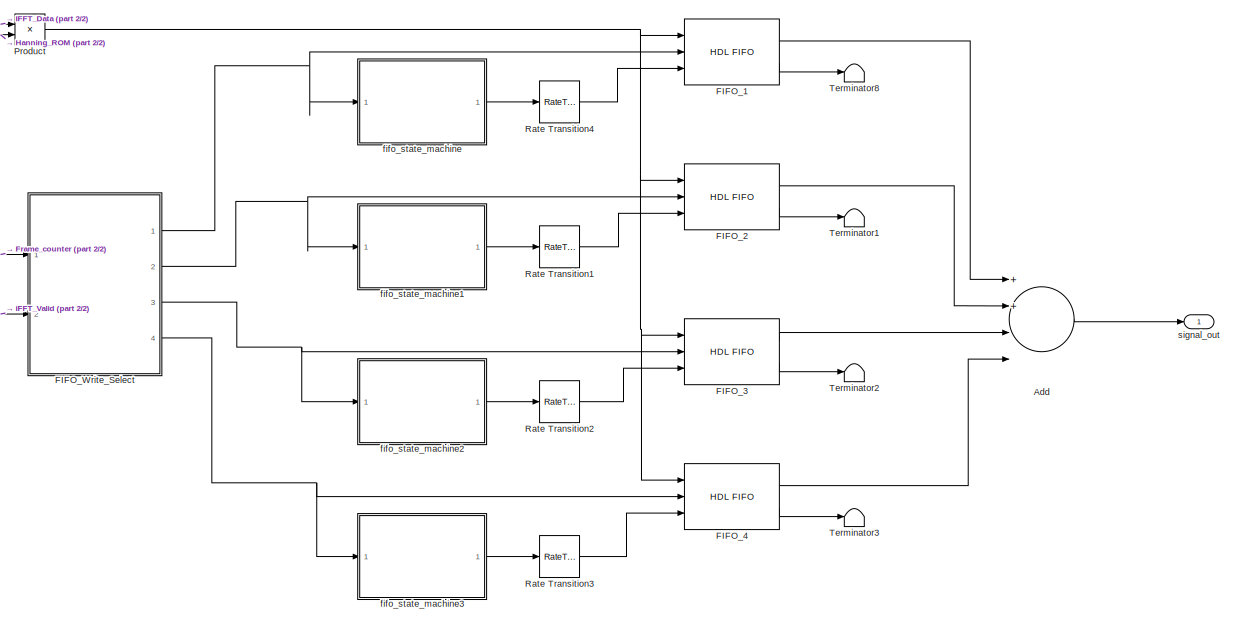
[diagram: dataplane/FFT_Analysis_Synthesis_Right/Synthesis/Overlap_and_Add - part 1/2, center side, full height]
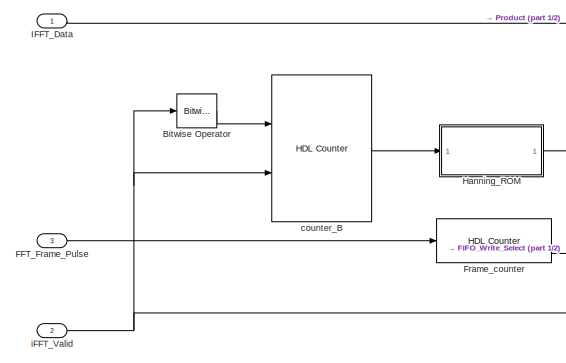
[diagram: dataplane/FFT_Analysis_Synthesis_Right/Synthesis/Overlap_and_Add - part 2/2, top left region]
BLOCK [SubSystem] dataplane/FFT_Analysis_Synthesis_Right/Synthesis/Overlap_and_Add
  Ports = [3, 1]
  RequestExecContextInheritance = off
BLOCK [Sum] dataplane/FFT_Analysis_Synthesis_Right/Synthesis/Overlap_and_Add/Add
  InputSameDT = off
  Inputs = 4
  OutDataTypeStr = Inherit: Inherit via internal rule
  Ports = [4, 1]
  SaturateOnIntegerOverflow = off
BLOCK [Reference] dataplane/FFT_Analysis_Synthesis_Right/Synthesis/Overlap_and_Add/Bitwise Operator  REF=simulink/Logic and Bit
Operations/Bitwise
Operator
  Ports = [1, 1]
  SourceBlock = simulink/Logic and Bit\nOperations/Bitwise\nOperator
  SourceProductBaseCode = SL
  SourceProductName = Simulink
  SourceType = Bitwise Operator
BLOCK [Inport] dataplane/FFT_Analysis_Synthesis_Right/Synthesis/Overlap_and_Add/FFT_Frame_Pulse
  IconDisplay = Port number
  Port = 3
BLOCK [Reference] dataplane/FFT_Analysis_Synthesis_Right/Synthesis/Overlap_and_Add/FIFO_1  REF=hdlsllib/HDL RAMs/HDL FIFO
  Ports = [3, 2]
  SourceBlock = hdlsllib/HDL RAMs/HDL FIFO
  SourceProductBaseCode = SL
  SourceProductName = Simulink
  SourceType = HDL_FIFO
BLOCK [Reference] dataplane/FFT_Analysis_Synthesis_Right/Synthesis/Overlap_and_Add/FIFO_2  REF=hdlsllib/HDL RAMs/HDL FIFO
  Ports = [3, 2]
  SourceBlock = hdlsllib/HDL RAMs/HDL FIFO
  SourceProductBaseCode = SL
  SourceProductName = Simulink
  SourceType = HDL_FIFO
BLOCK [Reference] dataplane/FFT_Analysis_Synthesis_Right/Synthesis/Overlap_and_Add/FIFO_3  REF=hdlsllib/HDL RAMs/HDL FIFO
  Ports = [3, 2]
  SourceBlock = hdlsllib/HDL RAMs/HDL FIFO
  SourceProductBaseCode = SL
  SourceProductName = Simulink
  SourceType = HDL_FIFO
BLOCK [Reference] dataplane/FFT_Analysis_Synthesis_Right/Synthesis/Overlap_and_Add/FIFO_4  REF=hdlsllib/HDL RAMs/HDL FIFO
  Ports = [3, 2]
  SourceBlock = hdlsllib/HDL RAMs/HDL FIFO
  SourceProductBaseCode = SL
  SourceProductName = Simulink
  SourceType = HDL_FIFO
BLOCK [SubSystem] dataplane/FFT_Analysis_Synthesis_Right/Synthesis/Overlap_and_Add/FIFO_Write_Select
  ErrorFcn = Stateflow.Translate.translate
  PermitHierarchicalResolution = ExplicitOnly
  Ports = [2, 4]
  RequestExecContextInheritance = off
  SFBlockType = MATLAB Function
  TreatAsAtomicUnit = on
BLOCK [Demux] dataplane/FFT_Analysis_Synthesis_Right/Synthesis/Overlap_and_Add/FIFO_Write_Select/ Demux 
  DisplayOption = bar
  Outputs = 1
  Ports = [1, 1]
BLOCK [S-Function] dataplane/FFT_Analysis_Synthesis_Right/Synthesis/Overlap_and_Add/FIFO_Write_Select/ SFunction 
  EnableBusSupport = on
  FunctionName = sf_sfun
  PortCounts = [2 5]
  Ports = [2, 5]
  SFcnIsStateOwnerBlock = off
  SFunctionDeploymentMode = off
  Tag = Stateflow S-Function 8
BLOCK [Terminator] dataplane/FFT_Analysis_Synthesis_Right/Synthesis/Overlap_and_Add/FIFO_Write_Select/ Terminator 
BLOCK [Inport] dataplane/FFT_Analysis_Synthesis_Right/Synthesis/Overlap_and_Add/FIFO_Write_Select/fifo_counter
  IconDisplay = Port number
BLOCK [Outport] dataplane/FFT_Analysis_Synthesis_Right/Synthesis/Overlap_and_Add/FIFO_Write_Select/valid_1
  IconDisplay = Port number
  VectorParamsAs1DForOutWhenUnconnected = off
BLOCK [Outport] dataplane/FFT_Analysis_Synthesis_Right/Synthesis/Overlap_and_Add/FIFO_Write_Select/valid_2
  IconDisplay = Port number
  Port = 2
  VectorParamsAs1DForOutWhenUnconnected = off
BLOCK [Outport] dataplane/FFT_Analysis_Synthesis_Right/Synthesis/Overlap_and_Add/FIFO_Write_Select/valid_3
  IconDisplay = Port number
  Port = 3
  VectorParamsAs1DForOutWhenUnconnected = off
BLOCK [Outport] dataplane/FFT_Analysis_Synthesis_Right/Synthesis/Overlap_and_Add/FIFO_Write_Select/valid_4
  IconDisplay = Port number
  Port = 4
  VectorParamsAs1DForOutWhenUnconnected = off
BLOCK [Inport] dataplane/FFT_Analysis_Synthesis_Right/Synthesis/Overlap_and_Add/FIFO_Write_Select/valid_signal
  IconDisplay = Port number
  Port = 2
BLOCK [Reference] dataplane/FFT_Analysis_Synthesis_Right/Synthesis/Overlap_and_Add/Frame_counter  REF=hdlsllib/Sources/HDL Counter
  Ports = [1, 1]
  SourceBlock = hdlsllib/Sources/HDL Counter
  SourceProductBaseCode = SL
  SourceProductName = Simulink
  SourceType = HDL Counter
BLOCK [SubSystem] dataplane/FFT_Analysis_Synthesis_Right/Synthesis/Overlap_and_Add/Hanning_ROM
  Ports = [1, 1]
  RequestExecContextInheritance = off
BLOCK [Reference] dataplane/FFT_Analysis_Synthesis_Right/Synthesis/Overlap_and_Add/Hanning_ROM/Bit Slice  REF=hdlsllib/Logic and Bit
Operations/Bit Slice
  Ports = [1, 1]
  SourceBlock = hdlsllib/Logic and Bit\nOperations/Bit Slice
  SourceProductBaseCode = SL
  SourceProductName = Simulink
  SourceType = Bit Slice
BLOCK [Inport] dataplane/FFT_Analysis_Synthesis_Right/Synthesis/Overlap_and_Add/Hanning_ROM/Index
  IconDisplay = Port number
BLOCK [Lookup_n-D] dataplane/FFT_Analysis_Synthesis_Right/Synthesis/Overlap_and_Add/Hanning_ROM/Lookup Table
  BreakpointsForDimension1 = [0:mp.FFT_size-1]
  DiagnosticForOutOfRangeInput = Error
  ExtrapMethod = Clip
  IndexSearchMethod = Evenly spaced points
  InterpMethod = Flat
  NumberOfTableDimensions = 1
  OutDataTypeStr = fixdt(1,24,22)
  Ports = [1, 1]
  RndMeth = Simplest
  Table = hanning(mp.FFT_size)
  UseLastTableValue = on
BLOCK [UnitDelay] dataplane/FFT_Analysis_Synthesis_Right/Synthesis/Overlap_and_Add/Hanning_ROM/Unit Delay
  HasFrameUpgradeWarning = on
  SampleTime = -1
BLOCK [Outport] dataplane/FFT_Analysis_Synthesis_Right/Synthesis/Overlap_and_Add/Hanning_ROM/hanning_value
  IconDisplay = Port number
  VectorParamsAs1DForOutWhenUnconnected = off
BLOCK [Inport] dataplane/FFT_Analysis_Synthesis_Right/Synthesis/Overlap_and_Add/IFFT_Data
  IconDisplay = Port number
BLOCK [Product] dataplane/FFT_Analysis_Synthesis_Right/Synthesis/Overlap_and_Add/Product
  InputSameDT = off
  Ports = [2, 1]
  RndMeth = Floor
  SaturateOnIntegerOverflow = off
BLOCK [RateTransition] dataplane/FFT_Analysis_Synthesis_Right/Synthesis/Overlap_and_Add/Rate Transition1
  OutPortSampleTimeMultiple = mp.SysRate_Upsample_Factor
  OutPortSampleTimeOpt = Multiple of input port sample time
BLOCK [RateTransition] dataplane/FFT_Analysis_Synthesis_Right/Synthesis/Overlap_and_Add/Rate Transition2
  OutPortSampleTimeMultiple = mp.SysRate_Upsample_Factor
  OutPortSampleTimeOpt = Multiple of input port sample time
BLOCK [RateTransition] dataplane/FFT_Analysis_Synthesis_Right/Synthesis/Overlap_and_Add/Rate Transition3
  OutPortSampleTimeMultiple = mp.SysRate_Upsample_Factor
  OutPortSampleTimeOpt = Multiple of input port sample time
BLOCK [RateTransition] dataplane/FFT_Analysis_Synthesis_Right/Synthesis/Overlap_and_Add/Rate Transition4
  OutPortSampleTimeMultiple = mp.SysRate_Upsample_Factor
  OutPortSampleTimeOpt = Multiple of input port sample time
BLOCK [Terminator] dataplane/FFT_Analysis_Synthesis_Right/Synthesis/Overlap_and_Add/Terminator1
BLOCK [Terminator] dataplane/FFT_Analysis_Synthesis_Right/Synthesis/Overlap_and_Add/Terminator2
BLOCK [Terminator] dataplane/FFT_Analysis_Synthesis_Right/Synthesis/Overlap_and_Add/Terminator3
BLOCK [Terminator] dataplane/FFT_Analysis_Synthesis_Right/Synthesis/Overlap_and_Add/Terminator8
BLOCK [Reference] dataplane/FFT_Analysis_Synthesis_Right/Synthesis/Overlap_and_Add/counter_B  REF=hdlsllib/Sources/HDL Counter
  Ports = [2, 1]
  SourceBlock = hdlsllib/Sources/HDL Counter
  SourceProductBaseCode = SL
  SourceProductName = Simulink
  SourceType = HDL Counter
BLOCK [SubSystem] dataplane/FFT_Analysis_Synthesis_Right/Synthesis/Overlap_and_Add/fifo_state_machine
  ErrorFcn = Stateflow.Translate.translate
  PermitHierarchicalResolution = ExplicitOnly
  Ports = [1, 1]
  RequestExecContextInheritance = off
  SFBlockType = MATLAB Function
  TreatAsAtomicUnit = on
BLOCK [Demux] dataplane/FFT_Analysis_Synthesis_Right/Synthesis/Overlap_and_Add/fifo_state_machine/ Demux 
  DisplayOption = bar
  Outputs = 1
  Ports = [1, 1]
BLOCK [S-Function] dataplane/FFT_Analysis_Synthesis_Right/Synthesis/Overlap_and_Add/fifo_state_machine/ SFunction 
  EnableBusSupport = on
  FunctionName = sf_sfun
  PortCounts = [1 2]
  Ports = [1, 2]
  SFcnIsStateOwnerBlock = off
  SFunctionDeploymentMode = off
  Tag = Stateflow S-Function 1
BLOCK [Terminator] dataplane/FFT_Analysis_Synthesis_Right/Synthesis/Overlap_and_Add/fifo_state_machine/ Terminator 
BLOCK [Outport] dataplane/FFT_Analysis_Synthesis_Right/Synthesis/Overlap_and_Add/fifo_state_machine/pop
  IconDisplay = Port number
  VectorParamsAs1DForOutWhenUnconnected = off
BLOCK [Inport] dataplane/FFT_Analysis_Synthesis_Right/Synthesis/Overlap_and_Add/fifo_state_machine/valid
  IconDisplay = Port number
BLOCK [SubSystem] dataplane/FFT_Analysis_Synthesis_Right/Synthesis/Overlap_and_Add/fifo_state_machine1
  ErrorFcn = Stateflow.Translate.translate
  PermitHierarchicalResolution = ExplicitOnly
  Ports = [1, 1]
  RequestExecContextInheritance = off
  SFBlockType = MATLAB Function
  TreatAsAtomicUnit = on
BLOCK [Demux] dataplane/FFT_Analysis_Synthesis_Right/Synthesis/Overlap_and_Add/fifo_state_machine1/ Demux 
  DisplayOption = bar
  Outputs = 1
  Ports = [1, 1]
BLOCK [S-Function] dataplane/FFT_Analysis_Synthesis_Right/Synthesis/Overlap_and_Add/fifo_state_machine1/ SFunction 
  EnableBusSupport = on
  FunctionName = sf_sfun
  PortCounts = [1 2]
  Ports = [1, 2]
  SFcnIsStateOwnerBlock = off
  SFunctionDeploymentMode = off
  Tag = Stateflow S-Function 2
BLOCK [Terminator] dataplane/FFT_Analysis_Synthesis_Right/Synthesis/Overlap_and_Add/fifo_state_machine1/ Terminator 
BLOCK [Outport] dataplane/FFT_Analysis_Synthesis_Right/Synthesis/Overlap_and_Add/fifo_state_machine1/pop
  IconDisplay = Port number
  VectorParamsAs1DForOutWhenUnconnected = off
BLOCK [Inport] dataplane/FFT_Analysis_Synthesis_Right/Synthesis/Overlap_and_Add/fifo_state_machine1/valid
  IconDisplay = Port number
BLOCK [SubSystem] dataplane/FFT_Analysis_Synthesis_Right/Synthesis/Overlap_and_Add/fifo_state_machine2
  ErrorFcn = Stateflow.Translate.translate
  PermitHierarchicalResolution = ExplicitOnly
  Ports = [1, 1]
  RequestExecContextInheritance = off
  SFBlockType = MATLAB Function
  TreatAsAtomicUnit = on
BLOCK [Demux] dataplane/FFT_Analysis_Synthesis_Right/Synthesis/Overlap_and_Add/fifo_state_machine2/ Demux 
  DisplayOption = bar
  Outputs = 1
  Ports = [1, 1]
BLOCK [S-Function] dataplane/FFT_Analysis_Synthesis_Right/Synthesis/Overlap_and_Add/fifo_state_machine2/ SFunction 
  EnableBusSupport = on
  FunctionName = sf_sfun
  PortCounts = [1 2]
  Ports = [1, 2]
  SFcnIsStateOwnerBlock = off
  SFunctionDeploymentMode = off
  Tag = Stateflow S-Function 3
BLOCK [Terminator] dataplane/FFT_Analysis_Synthesis_Right/Synthesis/Overlap_and_Add/fifo_state_machine2/ Terminator 
BLOCK [Outport] dataplane/FFT_Analysis_Synthesis_Right/Synthesis/Overlap_and_Add/fifo_state_machine2/pop
  IconDisplay = Port number
  VectorParamsAs1DForOutWhenUnconnected = off
BLOCK [Inport] dataplane/FFT_Analysis_Synthesis_Right/Synthesis/Overlap_and_Add/fifo_state_machine2/valid
  IconDisplay = Port number
BLOCK [SubSystem] dataplane/FFT_Analysis_Synthesis_Right/Synthesis/Overlap_and_Add/fifo_state_machine3
  ErrorFcn = Stateflow.Translate.translate
  PermitHierarchicalResolution = ExplicitOnly
  Ports = [1, 1]
  RequestExecContextInheritance = off
  SFBlockType = MATLAB Function
  TreatAsAtomicUnit = on
BLOCK [Demux] dataplane/FFT_Analysis_Synthesis_Right/Synthesis/Overlap_and_Add/fifo_state_machine3/ Demux 
  DisplayOption = bar
  Outputs = 1
  Ports = [1, 1]
BLOCK [S-Function] dataplane/FFT_Analysis_Synthesis_Right/Synthesis/Overlap_and_Add/fifo_state_machine3/ SFunction 
  EnableBusSupport = on
  FunctionName = sf_sfun
  PortCounts = [1 2]
  Ports = [1, 2]
  SFcnIsStateOwnerBlock = off
  SFunctionDeploymentMode = off
  Tag = Stateflow S-Function 4
BLOCK [Terminator] dataplane/FFT_Analysis_Synthesis_Right/Synthesis/Overlap_and_Add/fifo_state_machine3/ Terminator 
BLOCK [Outport] dataplane/FFT_Analysis_Synthesis_Right/Synthesis/Overlap_and_Add/fifo_state_machine3/pop
  IconDisplay = Port number
  VectorParamsAs1DForOutWhenUnconnected = off
BLOCK [Inport] dataplane/FFT_Analysis_Synthesis_Right/Synthesis/Overlap_and_Add/fifo_state_machine3/valid
  IconDisplay = Port number
BLOCK [Inport] dataplane/FFT_Analysis_Synthesis_Right/Synthesis/Overlap_and_Add/iFFT_Valid
  IconDisplay = Port number
  Port = 2
BLOCK [Outport] dataplane/FFT_Analysis_Synthesis_Right/Synthesis/Overlap_and_Add/signal_out
  IconDisplay = Port number
  VectorParamsAs1DForOutWhenUnconnected = off
BLOCK [Terminator] dataplane/FFT_Analysis_Synthesis_Right/Synthesis/Terminator8
BLOCK [Terminator] dataplane/FFT_Analysis_Synthesis_Right/Synthesis/Terminator9
BLOCK [Reference] dataplane/FFT_Analysis_Synthesis_Right/Synthesis/iFFT  REF=dsphdlxfrm/IFFT
HDL Optimized
  Ports = [2, 3]
  SourceBlock = dsphdlxfrm/IFFT\nHDL Optimized
  SourceProductBaseCode = DS
  SourceProductName = DSP System Toolbox
  SourceType = IFFT HDL Optimized
BLOCK [Inport] dataplane/FFT_Analysis_Synthesis_Right/Synthesis/modified_FFT_data
  IconDisplay = Port number
BLOCK [Outport] dataplane/FFT_Analysis_Synthesis_Right/Synthesis/synthesized_signal
  IconDisplay = Port number
  VectorParamsAs1DForOutWhenUnconnected = off
BLOCK [Inport] dataplane/FFT_Analysis_Synthesis_Right/filter_select
  IconDisplay = Port number
  Port = 3
BLOCK [Inport] dataplane/FFT_Analysis_Synthesis_Right/signal_in
  IconDisplay = Port number
BLOCK [Outport] dataplane/FFT_Analysis_Synthesis_Right/signal_out
  IconDisplay = Port number
  VectorParamsAs1DForOutWhenUnconnected = off
BLOCK [Mux] dataplane/Mux
  DisplayOption = bar
  Inputs = 2
  Ports = [2, 1]
BLOCK [StateControl] dataplane/State Control
  StateControl = Synchronous
BLOCK [Switch] dataplane/Switch
  Criteria = u2 > Threshold
  InputSameDT = off
  SaturateOnIntegerOverflow = off
BLOCK [Inport] dataplane/avalon_sink_data
  IconDisplay = Port number
BLOCK [Outport] dataplane/avalon_source_data 
  IconDisplay = Port number
  InitialOutput = 0
  VectorParamsAs1DForOutWhenUnconnected = off
BLOCK [Inport] dataplane/register_control_filter_select
  IconDisplay = Port number
  Port = 3
BLOCK [Inport] dataplane/register_control_passthrough
  IconDisplay = Port number
  Port = 2
ANNOTATION (root): Run simulation first before clicking this box to Generate VHDL
ANNOTATION dataplane/FFT_Analysis_Synthesis_Left: Gain to normalize sinusoid amplitudes
ANNOTATION dataplane/FFT_Analysis_Synthesis_Left/Analysis: The ready signal is ignored by design since data won't be sent while FFT engine is busy.
ANNOTATION dataplane/FFT_Analysis_Synthesis_Left/Analysis/FFT Frame Buffering: Port B of Dual Port RAM Data is read from the circular buffer at a higher clock rate. Read is always enabled. Port B never writes so input data to port B is ignored (specified as zero).
ANNOTATION dataplane/FFT_Analysis_Synthesis_Left/Analysis/FFT Frame Buffering: Transition to Fast Clock for FFT Processing
ANNOTATION dataplane/FFT_Analysis_Synthesis_Left/Analysis/FFT Frame Buffering: Apply a Hanning Window before computing FFT. This is done by looking up the appropiate Hanning value and applied to the data as the data is streamed to the FFT engine.
ANNOTATION dataplane/FFT_Analysis_Synthesis_Left/Analysis/FFT Frame Buffering: Circular Buffer Port A Address Generator
ANNOTATION dataplane/FFT_Analysis_Synthesis_Left/Analysis/FFT Frame Buffering: Frame pulses don't start until there is enough data in the circular buffer.
ANNOTATION dataplane/FFT_Analysis_Synthesis_Left/Analysis/FFT Frame Buffering: Port A of Dual Port RAM Data is written to circular buffer at input sample rate. Write is always enabled. Port A is never read so output is ignored.
ANNOTATION dataplane/FFT_Analysis_Synthesis_Left/Analysis/FFT Frame Buffering: The size of Dual Port RAM is specified by the variable DPRAM1_size and is typically twice the FFT size. Ports A and B are running at different clock rates.
ANNOTATION dataplane/FFT_Analysis_Synthesis_Left/Analysis/FFT Frame Buffering: The valid needs to be delayed to complensate for the latency of the DPRAM and the Hanning_ROM
ANNOTATION dataplane/FFT_Analysis_Synthesis_Left/Analysis/FFT Frame Buffering: When a FFT frame pulse is received, create addresses for Port B to stream a data frame to the FFT engine.
ANNOTATION dataplane/FFT_Analysis_Synthesis_Left/Analysis/FFT Frame Buffering/FFT_pulse_gen: Don't send out FFT frame start pulses until circular buffer has filled.
ANNOTATION dataplane/FFT_Analysis_Synthesis_Left/Analysis/FFT Frame Buffering/FFT_pulse_gen/FFT_Frame_Pulse_Gen: Create a FFT frame pulse that happens every FFT_size/4 samples. We do this by watching when an appropriate subset of the counter bits become zero.
ANNOTATION dataplane/FFT_Analysis_Synthesis_Left/Analysis/FFT Frame Buffering/FFT_pulse_gen/Wait_for_data_to_start: Start performing FFTs after enough data has filled the circular buffer. This is due to the fact that we don't want the read pointer (addr_B) to catch up with the write pointer (addr_A) because if it does, the DPRAM will throw an assertion error.
ANNOTATION dataplane/FFT_Analysis_Synthesis_Left/Analysis/FFT Frame Buffering/FFT_pulse_gen/Wait_for_data_to_start: Counter starts a zero and counts number of frame pulses. Counter remains enabled while frame count is less than 4. As soon as the counter reaches 4, it is disabled, which then enables the frame pulses to pass through.
ANNOTATION dataplane/FFT_Analysis_Synthesis_Left/Analysis/FFT Frame Buffering/FFT_pulse_gen/Wait_for_data_to_start: Enable signal that that indicates that FFTs can start since there is data in the buffer.
ANNOTATION dataplane/FFT_Analysis_Synthesis_Left/Analysis/FFT Frame Buffering/FFT_pulse_gen/Wait_for_data_to_start: Frame pulses don't start coming through until circular buffer has data.
ANNOTATION dataplane/FFT_Analysis_Synthesis_Left/Analysis/FFT Frame Buffering/FFT_pulse_gen/Wait_for_data_to_start: Frame_Pulse will pass through when enabled
ANNOTATION dataplane/FFT_Analysis_Synthesis_Left/Analysis/FFT Frame Buffering/FFT_pulse_gen/Wait_for_data_to_start: Number of Frames to wait before starting
ANNOTATION dataplane/FFT_Analysis_Synthesis_Left/Analysis/FFT Frame Buffering/Fast_Transition: The rate transition block registers and keeps the same value. We want the enable signal to always be enabled, so keeping the same value using the unit delay is what we want.
ANNOTATION dataplane/FFT_Analysis_Synthesis_Left/Analysis/FFT Frame Buffering/Fast_Transition: The upsample block inserts zeros between samples. We want the pulse only one clock period wide at the faster clock rate, so inserting zeros is what we want.
ANNOTATION dataplane/FFT_Analysis_Synthesis_Left/Analysis/FFT Frame Buffering/Fast_Transition: Transition Signals to Fast Clock Rate
ANNOTATION dataplane/FFT_Analysis_Synthesis_Left/Analysis/FFT Frame Buffering/addr_A_offset: Adding 1 to counter since the read pointer (addr_B) can catch the write pointer (addr_A) if SysRate_Upsample_Factor is large enough and Simulink will throw an error. It would be nice if the HDL Coder allowed a read-before-write option when the addresses are identical, which some memories support.
ANNOTATION dataplane/FFT_Analysis_Synthesis_Left/Analysis/FFT Frame Buffering/addr_B_gen: Counter values [0 FFT_size-1] that is used to lookup the window values being applied.
ANNOTATION dataplane/FFT_Analysis_Synthesis_Left/Analysis/FFT Frame Buffering/addr_B_gen: Enable signal that indicates there is data in the buffer and FFTs can start.
ANNOTATION dataplane/FFT_Analysis_Synthesis_Left/Analysis/FFT Frame Buffering/addr_B_gen: The start pulse sets the starting count to Start_Address and the counter counts from Start_Address to Start_Address + FFT_size - 1 which is the address sent to Port B of the dual port memory.
ANNOTATION dataplane/FFT_Analysis_Synthesis_Left/Analysis/FFT Frame Buffering/addr_B_gen: Valid data is being streamed to the FFT Engine.
ANNOTATION dataplane/FFT_Analysis_Synthesis_Left/Analysis/FFT Frame Buffering/addr_B_gen/addr_B_gen_enable: Frame_index is the count [0 FFT_size-1] that is used to lookup the window value being applied to the streaming sample.
ANNOTATION dataplane/FFT_Analysis_Synthesis_Left/Analysis/FFT Frame Buffering/addr_B_gen/addr_B_gen_enable: Signal that is enabled while counting [0 FFT_size-1]
ANNOTATION dataplane/FFT_Analysis_Synthesis_Left/Analysis/FFT Frame Buffering/addr_B_gen/addr_B_gen_enable: The start pulse resets the counter that counts from zero to FFT_size-1. Upon reaching FFT_size the counter is disabled. While the counter is enabled, the enable signal tells the FFT engine that the data streaming to it is valid.
ANNOTATION dataplane/FFT_Analysis_Synthesis_Left/Analysis/FFT Frame Buffering/addr_B_gen/addr_B_gen_enable: This counter specifies where the FFT starts in the circular buffer. It increments by FFT/4 samples when it receives a start pulse.
ANNOTATION dataplane/FFT_Analysis_Synthesis_Left/Frequency_Domain_Processing: Switch between passthrough mode (no processing of FFT data) and frequency domain processing mode. Passthrough mode when passthrough = 1.
ANNOTATION dataplane/FFT_Analysis_Synthesis_Left/Frequency_Domain_Processing/Apply_Complex_Gains: Data needs to be delayed to complensate for the latency of the Filter Coefficent block.
ANNOTATION dataplane/FFT_Analysis_Synthesis_Left/Frequency_Domain_Processing/Apply_Complex_Gains: Output data type is inherited from the first input.
ANNOTATION dataplane/FFT_Analysis_Synthesis_Left/Frequency_Domain_Processing/Apply_Complex_Gains: The frame pulse needs to be delayed to complensate for the latency of the Filter Coefficent block.
ANNOTATION dataplane/FFT_Analysis_Synthesis_Left/Frequency_Domain_Processing/Apply_Complex_Gains: The valid needs to be delayed to complensate for the latency of the Filter Coefficent block.
ANNOTATION dataplane/FFT_Analysis_Synthesis_Left/Frequency_Domain_Processing/Apply_Complex_Gains/FFT_Filter_Coefficients/FFT_ROM_Indexing: Count from 0 to FFT_size
ANNOTATION dataplane/FFT_Analysis_Synthesis_Left/Frequency_Domain_Processing/Apply_Complex_Gains/FFT_Filter_Coefficients/FFT_ROM_Indexing: Count from 0 to FFT_size/2 and then back down to 0. We are assuming the gains are conjugate symmetric so we only need to store the first half in the ROM and look up again for negative frequencies.
ANNOTATION dataplane/FFT_Analysis_Synthesis_Left/Frequency_Domain_Processing/Apply_Complex_Gains/FFT_Filter_Coefficients/FFT_ROM_Indexing: Reverse direction of count when count is FFT_size/2
ANNOTATION dataplane/FFT_Analysis_Synthesis_Left/Frequency_Domain_Processing/Apply_Complex_Gains/FFT_Filter_Coefficients/FFT_ROM_Indexing: When the index is FFT_size/2, we want the index to be zero.
ANNOTATION dataplane/FFT_Analysis_Synthesis_Left/Synthesis: Making the assumption here that the frequency domain processing preserved the complex conjugate pairs so that the output is real.
ANNOTATION dataplane/FFT_Analysis_Synthesis_Right: Gain to normalize sinusoid amplitudes
ANNOTATION dataplane/FFT_Analysis_Synthesis_Right/Analysis: The ready signal is ignored by design since data won't be sent while FFT engine is busy.
ANNOTATION dataplane/FFT_Analysis_Synthesis_Right/Analysis/FFT Frame Buffering: Port B of Dual Port RAM Data is read from the circular buffer at a higher clock rate. Read is always enabled. Port B never writes so input data to port B is ignored (specified as zero).
ANNOTATION dataplane/FFT_Analysis_Synthesis_Right/Analysis/FFT Frame Buffering: Transition to Fast Clock for FFT Processing
ANNOTATION dataplane/FFT_Analysis_Synthesis_Right/Analysis/FFT Frame Buffering: Apply a Hanning Window before computing FFT. This is done by looking up the appropiate Hanning value and applied to the data as the data is streamed to the FFT engine.
ANNOTATION dataplane/FFT_Analysis_Synthesis_Right/Analysis/FFT Frame Buffering: Circular Buffer Port A Address Generator
ANNOTATION dataplane/FFT_Analysis_Synthesis_Right/Analysis/FFT Frame Buffering: Frame pulses don't start until there is enough data in the circular buffer.
ANNOTATION dataplane/FFT_Analysis_Synthesis_Right/Analysis/FFT Frame Buffering: Port A of Dual Port RAM Data is written to circular buffer at input sample rate. Write is always enabled. Port A is never read so output is ignored.
ANNOTATION dataplane/FFT_Analysis_Synthesis_Right/Analysis/FFT Frame Buffering: The size of Dual Port RAM is specified by the variable DPRAM1_size and is typically twice the FFT size. Ports A and B are running at different clock rates.
ANNOTATION dataplane/FFT_Analysis_Synthesis_Right/Analysis/FFT Frame Buffering: The valid needs to be delayed to complensate for the latency of the DPRAM and the Hanning_ROM
ANNOTATION dataplane/FFT_Analysis_Synthesis_Right/Analysis/FFT Frame Buffering: When a FFT frame pulse is received, create addresses for Port B to stream a data frame to the FFT engine.
ANNOTATION dataplane/FFT_Analysis_Synthesis_Right/Analysis/FFT Frame Buffering/FFT_pulse_gen: Don't send out FFT frame start pulses until circular buffer has filled.
ANNOTATION dataplane/FFT_Analysis_Synthesis_Right/Analysis/FFT Frame Buffering/FFT_pulse_gen/FFT_Frame_Pulse_Gen: Create a FFT frame pulse that happens every FFT_size/4 samples. We do this by watching when an appropriate subset of the counter bits become zero.
ANNOTATION dataplane/FFT_Analysis_Synthesis_Right/Analysis/FFT Frame Buffering/FFT_pulse_gen/Wait_for_data_to_start: Start performing FFTs after enough data has filled the circular buffer. This is due to the fact that we don't want the read pointer (addr_B) to catch up with the write pointer (addr_A) because if it does, the DPRAM will throw an assertion error.
ANNOTATION dataplane/FFT_Analysis_Synthesis_Right/Analysis/FFT Frame Buffering/FFT_pulse_gen/Wait_for_data_to_start: Counter starts a zero and counts number of frame pulses. Counter remains enabled while frame count is less than 4. As soon as the counter reaches 4, it is disabled, which then enables the frame pulses to pass through.
ANNOTATION dataplane/FFT_Analysis_Synthesis_Right/Analysis/FFT Frame Buffering/FFT_pulse_gen/Wait_for_data_to_start: Enable signal that that indicates that FFTs can start since there is data in the buffer.
ANNOTATION dataplane/FFT_Analysis_Synthesis_Right/Analysis/FFT Frame Buffering/FFT_pulse_gen/Wait_for_data_to_start: Frame pulses don't start coming through until circular buffer has data.
ANNOTATION dataplane/FFT_Analysis_Synthesis_Right/Analysis/FFT Frame Buffering/FFT_pulse_gen/Wait_for_data_to_start: Frame_Pulse will pass through when enabled
ANNOTATION dataplane/FFT_Analysis_Synthesis_Right/Analysis/FFT Frame Buffering/FFT_pulse_gen/Wait_for_data_to_start: Number of Frames to wait before starting
ANNOTATION dataplane/FFT_Analysis_Synthesis_Right/Analysis/FFT Frame Buffering/Fast_Transition: The rate transition block registers and keeps the same value. We want the enable signal to always be enabled, so keeping the same value using the unit delay is what we want.
ANNOTATION dataplane/FFT_Analysis_Synthesis_Right/Analysis/FFT Frame Buffering/Fast_Transition: The upsample block inserts zeros between samples. We want the pulse only one clock period wide at the faster clock rate, so inserting zeros is what we want.
ANNOTATION dataplane/FFT_Analysis_Synthesis_Right/Analysis/FFT Frame Buffering/Fast_Transition: Transistion Signals to Fast Clock Rate
ANNOTATION dataplane/FFT_Analysis_Synthesis_Right/Analysis/FFT Frame Buffering/addr_A_offset: Adding 1 to counter since the read pointer (addr_B) can catch the write pointer (addr_A) if SysRate_Upsample_Factor is large enough and Simulink will throw an error. It would be nice if the HDL Coder allowed a read-before-write option when the addresses are identical, which some memories support.
ANNOTATION dataplane/FFT_Analysis_Synthesis_Right/Analysis/FFT Frame Buffering/addr_B_gen: Counter values [0 FFT_size-1] that is used to lookup the window values being applied.
ANNOTATION dataplane/FFT_Analysis_Synthesis_Right/Analysis/FFT Frame Buffering/addr_B_gen: Enable signal that indicates there is data in the buffer and FFTs can start.
ANNOTATION dataplane/FFT_Analysis_Synthesis_Right/Analysis/FFT Frame Buffering/addr_B_gen: The start pulse sets the starting count to Start_Address and the counter counts from Start_Address to Start_Address + FFT_size - 1 which is the address sent to Port B of the dual port memory.
ANNOTATION dataplane/FFT_Analysis_Synthesis_Right/Analysis/FFT Frame Buffering/addr_B_gen: Valid data is being streamed to the FFT Engine.
ANNOTATION dataplane/FFT_Analysis_Synthesis_Right/Analysis/FFT Frame Buffering/addr_B_gen/addr_B_gen_enable: Frame_index is the count [0 FFT_size-1] that is used to lookup the window value being applied to the streaming sample.
ANNOTATION dataplane/FFT_Analysis_Synthesis_Right/Analysis/FFT Frame Buffering/addr_B_gen/addr_B_gen_enable: Signal that is enabled while counting [0 FFT_size-1]
ANNOTATION dataplane/FFT_Analysis_Synthesis_Right/Analysis/FFT Frame Buffering/addr_B_gen/addr_B_gen_enable: The start pulse resets the counter that counts from zero to FFT_size-1. Upon reaching FFT_size the counter is disabled. While the counter is enabled, the enable signal tells the FFT engine that the data streaming to it is valid.
ANNOTATION dataplane/FFT_Analysis_Synthesis_Right/Analysis/FFT Frame Buffering/addr_B_gen/addr_B_gen_enable: This counter specifies where the FFT starts in the circular buffer. It increments by FFT/4 samples when it receives a start pulse.
ANNOTATION dataplane/FFT_Analysis_Synthesis_Right/Frequency_Domain_Processing: Switch between passthrough mode (no processing of FFT data) and frequency domain processing mode. Passthrough mode when passthrough = 1.
ANNOTATION dataplane/FFT_Analysis_Synthesis_Right/Frequency_Domain_Processing/Apply_Complex_Gains: Data needs to be delayed to complensate for the latency of the Filter Coefficent block.
ANNOTATION dataplane/FFT_Analysis_Synthesis_Right/Frequency_Domain_Processing/Apply_Complex_Gains: Output data type is inherited from the first input.
ANNOTATION dataplane/FFT_Analysis_Synthesis_Right/Frequency_Domain_Processing/Apply_Complex_Gains: The frame pulse needs to be delayed to complensate for the latency of the Filter Coefficent block.
ANNOTATION dataplane/FFT_Analysis_Synthesis_Right/Frequency_Domain_Processing/Apply_Complex_Gains: The valid needs to be delayed to complensate for the latency of the Filter Coefficent block.
ANNOTATION dataplane/FFT_Analysis_Synthesis_Right/Frequency_Domain_Processing/Apply_Complex_Gains/FFT_Filter_Coefficients/FFT_ROM_Indexing: Count from 0 to FFT_size
ANNOTATION dataplane/FFT_Analysis_Synthesis_Right/Frequency_Domain_Processing/Apply_Complex_Gains/FFT_Filter_Coefficients/FFT_ROM_Indexing: Count from 0 to FFT_size/2 and then back down to 0. We are assuming the gains are conjugate symmetric so we only need to store the first half in the ROM and look up again for negative frequencies.
ANNOTATION dataplane/FFT_Analysis_Synthesis_Right/Frequency_Domain_Processing/Apply_Complex_Gains/FFT_Filter_Coefficients/FFT_ROM_Indexing: Reverse direction of count when count is FFT_size/2
ANNOTATION dataplane/FFT_Analysis_Synthesis_Right/Frequency_Domain_Processing/Apply_Complex_Gains/FFT_Filter_Coefficients/FFT_ROM_Indexing: When the index is FFT_size/2, we want the index to be zero.
ANNOTATION dataplane/FFT_Analysis_Synthesis_Right/Synthesis: Making the assumption here that the frequency domain processing preserved the complex conjugate pairs so that the output is real.
LINE Data Type Conversion2:1 -> dataplane:1
LINE From Workspace:1 -> Data Type Conversion2:1
LINE Register Control Signals/Data Type Conversion1:1 -> Register Control Signals/register_control_filter_select:1
LINE Register Control Signals/Data Type Conversion2:1 -> Register Control Signals/register_control_passthrough:1
LINE Register Control Signals/Time Series Signal from Workspace 1:1 -> Register Control Signals/Data Type Conversion2:1
LINE Register Control Signals/Time Series Signal from Workspace 2:1 -> Register Control Signals/Data Type Conversion1:1
LINE Register Control Signals:1 -> dataplane:2
LINE Register Control Signals:2 -> dataplane:3
LINE dataplane/Data Type Conversion1:1 -> dataplane/Mux:1
LINE dataplane/Data Type Conversion2:1 -> dataplane/Mux:2
LINE dataplane/Data Type Conversion:1 -> dataplane/Demux:1
NET dataplane/Demux:1 -> dataplane/FFT_Analysis_Synthesis_Left:1, dataplane/Switch:3
LINE dataplane/Demux:2 -> dataplane/FFT_Analysis_Synthesis_Right:1
LINE dataplane/FFT_Analysis_Synthesis_Left/Analysis/FFT Frame Buffering/Always_Read_B:1 -> dataplane/FFT_Analysis_Synthesis_Left/Analysis/FFT Frame Buffering/DPRAM:6
LINE dataplane/FFT_Analysis_Synthesis_Left/Analysis/FFT Frame Buffering/Always_Write_A:1 -> dataplane/FFT_Analysis_Synthesis_Left/Analysis/FFT Frame Buffering/DPRAM:3
LINE dataplane/FFT_Analysis_Synthesis_Left/Analysis/FFT Frame Buffering/DPRAM:1 -> dataplane/FFT_Analysis_Synthesis_Left/Analysis/FFT Frame Buffering/Terminator7:1
LINE dataplane/FFT_Analysis_Synthesis_Left/Analysis/FFT Frame Buffering/DPRAM:2 -> dataplane/FFT_Analysis_Synthesis_Left/Analysis/FFT Frame Buffering/Product:1
LINE dataplane/FFT_Analysis_Synthesis_Left/Analysis/FFT Frame Buffering/Data Type Conversion:1 -> dataplane/FFT_Analysis_Synthesis_Left/Analysis/FFT Frame Buffering/Data_to_FFT:1
LINE dataplane/FFT_Analysis_Synthesis_Left/Analysis/FFT Frame Buffering/FFT_pulse_gen/FFT_Frame_Pulse_Gen/Bit Slice:1 -> dataplane/FFT_Analysis_Synthesis_Left/Analysis/FFT Frame Buffering/FFT_pulse_gen/FFT_Frame_Pulse_Gen/Compare To Zero:1
LINE dataplane/FFT_Analysis_Synthesis_Left/Analysis/FFT Frame Buffering/FFT_pulse_gen/FFT_Frame_Pulse_Gen/Compare To Zero:1 -> dataplane/FFT_Analysis_Synthesis_Left/Analysis/FFT Frame Buffering/FFT_pulse_gen/FFT_Frame_Pulse_Gen/Frame_Pulse:1
LINE dataplane/FFT_Analysis_Synthesis_Left/Analysis/FFT Frame Buffering/FFT_pulse_gen/FFT_Frame_Pulse_Gen/counter_value :1 -> dataplane/FFT_Analysis_Synthesis_Left/Analysis/FFT Frame Buffering/FFT_pulse_gen/FFT_Frame_Pulse_Gen/Bit Slice:1
LINE dataplane/FFT_Analysis_Synthesis_Left/Analysis/FFT Frame Buffering/FFT_pulse_gen/FFT_Frame_Pulse_Gen:1 -> dataplane/FFT_Analysis_Synthesis_Left/Analysis/FFT Frame Buffering/FFT_pulse_gen/Wait_for_data_to_start:1
NET dataplane/FFT_Analysis_Synthesis_Left/Analysis/FFT Frame Buffering/FFT_pulse_gen/Wait_for_data_to_start/Bitwise Operator:1 -> dataplane/FFT_Analysis_Synthesis_Left/Analysis/FFT Frame Buffering/FFT_pulse_gen/Wait_for_data_to_start/Enable_FFT_Frames:1, dataplane/FFT_Analysis_Synthesis_Left/Analysis/FFT Frame Buffering/FFT_pulse_gen/Wait_for_data_to_start/Logical Operator1:2
NET dataplane/FFT_Analysis_Synthesis_Left/Analysis/FFT Frame Buffering/FFT_pulse_gen/Wait_for_data_to_start/Compare To Constant:1 -> dataplane/FFT_Analysis_Synthesis_Left/Analysis/FFT Frame Buffering/FFT_pulse_gen/Wait_for_data_to_start/Bitwise Operator:1, dataplane/FFT_Analysis_Synthesis_Left/Analysis/FFT Frame Buffering/FFT_pulse_gen/Wait_for_data_to_start/Logical Operator:1
NET dataplane/FFT_Analysis_Synthesis_Left/Analysis/FFT Frame Buffering/FFT_pulse_gen/Wait_for_data_to_start/Frame_Pulse:1 -> dataplane/FFT_Analysis_Synthesis_Left/Analysis/FFT Frame Buffering/FFT_pulse_gen/Wait_for_data_to_start/Logical Operator1:1, dataplane/FFT_Analysis_Synthesis_Left/Analysis/FFT Frame Buffering/FFT_pulse_gen/Wait_for_data_to_start/Logical Operator:2
LINE dataplane/FFT_Analysis_Synthesis_Left/Analysis/FFT Frame Buffering/FFT_pulse_gen/Wait_for_data_to_start/Initial_frame_count:1 -> dataplane/FFT_Analysis_Synthesis_Left/Analysis/FFT Frame Buffering/FFT_pulse_gen/Wait_for_data_to_start/Compare To Constant:1
LINE dataplane/FFT_Analysis_Synthesis_Left/Analysis/FFT Frame Buffering/FFT_pulse_gen/Wait_for_data_to_start/Logical Operator1:1 -> dataplane/FFT_Analysis_Synthesis_Left/Analysis/FFT Frame Buffering/FFT_pulse_gen/Wait_for_data_to_start/FFT_Frame_Start:1
LINE dataplane/FFT_Analysis_Synthesis_Left/Analysis/FFT Frame Buffering/FFT_pulse_gen/Wait_for_data_to_start/Logical Operator:1 -> dataplane/FFT_Analysis_Synthesis_Left/Analysis/FFT Frame Buffering/FFT_pulse_gen/Wait_for_data_to_start/Initial_frame_count:1
LINE dataplane/FFT_Analysis_Synthesis_Left/Analysis/FFT Frame Buffering/FFT_pulse_gen/Wait_for_data_to_start:1 -> dataplane/FFT_Analysis_Synthesis_Left/Analysis/FFT Frame Buffering/FFT_pulse_gen/FFT_start_pulse:1
LINE dataplane/FFT_Analysis_Synthesis_Left/Analysis/FFT Frame Buffering/FFT_pulse_gen/Wait_for_data_to_start:2 -> dataplane/FFT_Analysis_Synthesis_Left/Analysis/FFT Frame Buffering/FFT_pulse_gen/Enable_FFTs:1
LINE dataplane/FFT_Analysis_Synthesis_Left/Analysis/FFT Frame Buffering/FFT_pulse_gen/counter:1 -> dataplane/FFT_Analysis_Synthesis_Left/Analysis/FFT Frame Buffering/FFT_pulse_gen/FFT_Frame_Pulse_Gen:1
LINE dataplane/FFT_Analysis_Synthesis_Left/Analysis/FFT Frame Buffering/FFT_pulse_gen:1 -> dataplane/FFT_Analysis_Synthesis_Left/Analysis/FFT Frame Buffering/Fast_Transition:1
LINE dataplane/FFT_Analysis_Synthesis_Left/Analysis/FFT Frame Buffering/FFT_pulse_gen:2 -> dataplane/FFT_Analysis_Synthesis_Left/Analysis/FFT Frame Buffering/Fast_Transition:2
LINE dataplane/FFT_Analysis_Synthesis_Left/Analysis/FFT Frame Buffering/Fast_Transition/Rate Transition1:1 -> dataplane/FFT_Analysis_Synthesis_Left/Analysis/FFT Frame Buffering/Fast_Transition/Fast_Passthrough:1
LINE dataplane/FFT_Analysis_Synthesis_Left/Analysis/FFT Frame Buffering/Fast_Transition/Rate Transition2:1 -> dataplane/FFT_Analysis_Synthesis_Left/Analysis/FFT Frame Buffering/Fast_Transition/Fast_select:1
LINE dataplane/FFT_Analysis_Synthesis_Left/Analysis/FFT Frame Buffering/Fast_Transition/Rate Transition:1 -> dataplane/FFT_Analysis_Synthesis_Left/Analysis/FFT Frame Buffering/Fast_Transition/Fast_Enable:1
LINE dataplane/FFT_Analysis_Synthesis_Left/Analysis/FFT Frame Buffering/Fast_Transition/Slow_Enable:1 -> dataplane/FFT_Analysis_Synthesis_Left/Analysis/FFT Frame Buffering/Fast_Transition/Rate Transition:1
LINE dataplane/FFT_Analysis_Synthesis_Left/Analysis/FFT Frame Buffering/Fast_Transition/Slow_Passthrough:1 -> dataplane/FFT_Analysis_Synthesis_Left/Analysis/FFT Frame Buffering/Fast_Transition/Rate Transition1:1
LINE dataplane/FFT_Analysis_Synthesis_Left/Analysis/FFT Frame Buffering/Fast_Transition/Slow_Pulse:1 -> dataplane/FFT_Analysis_Synthesis_Left/Analysis/FFT Frame Buffering/Fast_Transition/Upsample:1
LINE dataplane/FFT_Analysis_Synthesis_Left/Analysis/FFT Frame Buffering/Fast_Transition/Slow_select:1 -> dataplane/FFT_Analysis_Synthesis_Left/Analysis/FFT Frame Buffering/Fast_Transition/Rate Transition2:1
LINE dataplane/FFT_Analysis_Synthesis_Left/Analysis/FFT Frame Buffering/Fast_Transition/Upsample:1 -> dataplane/FFT_Analysis_Synthesis_Left/Analysis/FFT Frame Buffering/Fast_Transition/Fast_Pulse:1
NET dataplane/FFT_Analysis_Synthesis_Left/Analysis/FFT Frame Buffering/Fast_Transition:1 -> dataplane/FFT_Analysis_Synthesis_Left/Analysis/FFT Frame Buffering/FFT_Frame_Start_Pulse:1, dataplane/FFT_Analysis_Synthesis_Left/Analysis/FFT Frame Buffering/addr_B_gen:1
LINE dataplane/FFT_Analysis_Synthesis_Left/Analysis/FFT Frame Buffering/Fast_Transition:2 -> dataplane/FFT_Analysis_Synthesis_Left/Analysis/FFT Frame Buffering/addr_B_gen:2
LINE dataplane/FFT_Analysis_Synthesis_Left/Analysis/FFT Frame Buffering/Fast_Transition:3 -> dataplane/FFT_Analysis_Synthesis_Left/Analysis/FFT Frame Buffering/passthrough:1
LINE dataplane/FFT_Analysis_Synthesis_Left/Analysis/FFT Frame Buffering/Fast_Transition:4 -> dataplane/FFT_Analysis_Synthesis_Left/Analysis/FFT Frame Buffering/filter_select_out:1
LINE dataplane/FFT_Analysis_Synthesis_Left/Analysis/FFT Frame Buffering/Hanning_ROM/Bit Slice:1 -> dataplane/FFT_Analysis_Synthesis_Left/Analysis/FFT Frame Buffering/Hanning_ROM/Lookup Table:1
LINE dataplane/FFT_Analysis_Synthesis_Left/Analysis/FFT Frame Buffering/Hanning_ROM/Index:1 -> dataplane/FFT_Analysis_Synthesis_Left/Analysis/FFT Frame Buffering/Hanning_ROM/Bit Slice:1
LINE dataplane/FFT_Analysis_Synthesis_Left/Analysis/FFT Frame Buffering/Hanning_ROM/Lookup Table:1 -> dataplane/FFT_Analysis_Synthesis_Left/Analysis/FFT Frame Buffering/Hanning_ROM/Unit Delay:1
LINE dataplane/FFT_Analysis_Synthesis_Left/Analysis/FFT Frame Buffering/Hanning_ROM/Unit Delay:1 -> dataplane/FFT_Analysis_Synthesis_Left/Analysis/FFT Frame Buffering/Hanning_ROM/hanning_value:1
LINE dataplane/FFT_Analysis_Synthesis_Left/Analysis/FFT Frame Buffering/Hanning_ROM:1 -> dataplane/FFT_Analysis_Synthesis_Left/Analysis/FFT Frame Buffering/Product:2
LINE dataplane/FFT_Analysis_Synthesis_Left/Analysis/FFT Frame Buffering/Never_Write_B:1 -> dataplane/FFT_Analysis_Synthesis_Left/Analysis/FFT Frame Buffering/DPRAM:4
LINE dataplane/FFT_Analysis_Synthesis_Left/Analysis/FFT Frame Buffering/Product:1 -> dataplane/FFT_Analysis_Synthesis_Left/Analysis/FFT Frame Buffering/Data Type Conversion:1
LINE dataplane/FFT_Analysis_Synthesis_Left/Analysis/FFT Frame Buffering/Sample_Data_in:1 -> dataplane/FFT_Analysis_Synthesis_Left/Analysis/FFT Frame Buffering/DPRAM:1
LINE dataplane/FFT_Analysis_Synthesis_Left/Analysis/FFT Frame Buffering/Unit Delay:1 -> dataplane/FFT_Analysis_Synthesis_Left/Analysis/FFT Frame Buffering/Valid_to_FFT:1
LINE dataplane/FFT_Analysis_Synthesis_Left/Analysis/FFT Frame Buffering/addr_A_offset/Add:1 -> dataplane/FFT_Analysis_Synthesis_Left/Analysis/FFT Frame Buffering/addr_A_offset/addr_A:1
LINE dataplane/FFT_Analysis_Synthesis_Left/Analysis/FFT Frame Buffering/addr_A_offset/counter_A:1 -> dataplane/FFT_Analysis_Synthesis_Left/Analysis/FFT Frame Buffering/addr_A_offset/Add:1
LINE dataplane/FFT_Analysis_Synthesis_Left/Analysis/FFT Frame Buffering/addr_A_offset/write_offset:1 -> dataplane/FFT_Analysis_Synthesis_Left/Analysis/FFT Frame Buffering/addr_A_offset/Add:2
LINE dataplane/FFT_Analysis_Synthesis_Left/Analysis/FFT Frame Buffering/addr_A_offset:1 -> dataplane/FFT_Analysis_Synthesis_Left/Analysis/FFT Frame Buffering/DPRAM:2
NET dataplane/FFT_Analysis_Synthesis_Left/Analysis/FFT Frame Buffering/addr_B_gen/Logical Operator1:1 -> dataplane/FFT_Analysis_Synthesis_Left/Analysis/FFT Frame Buffering/addr_B_gen/FFT_Valid:1, dataplane/FFT_Analysis_Synthesis_Left/Analysis/FFT Frame Buffering/addr_B_gen/counter_B:3
NET dataplane/FFT_Analysis_Synthesis_Left/Analysis/FFT Frame Buffering/addr_B_gen/addr_B_gen_enable/B_Enable_Counter:1 -> dataplane/FFT_Analysis_Synthesis_Left/Analysis/FFT Frame Buffering/addr_B_gen/addr_B_gen_enable/Frame_Index:1, dataplane/FFT_Analysis_Synthesis_Left/Analysis/FFT Frame Buffering/addr_B_gen/addr_B_gen_enable/Relational Operator:1
LINE dataplane/FFT_Analysis_Synthesis_Left/Analysis/FFT Frame Buffering/addr_B_gen/addr_B_gen_enable/Constant5:1 -> dataplane/FFT_Analysis_Synthesis_Left/Analysis/FFT Frame Buffering/addr_B_gen/addr_B_gen_enable/Relational Operator:2
NET dataplane/FFT_Analysis_Synthesis_Left/Analysis/FFT Frame Buffering/addr_B_gen/addr_B_gen_enable/Relational Operator:1 -> dataplane/FFT_Analysis_Synthesis_Left/Analysis/FFT Frame Buffering/addr_B_gen/addr_B_gen_enable/B_Enable_Counter:2, dataplane/FFT_Analysis_Synthesis_Left/Analysis/FFT Frame Buffering/addr_B_gen/addr_B_gen_enable/enable_B:1
LINE dataplane/FFT_Analysis_Synthesis_Left/Analysis/FFT Frame Buffering/addr_B_gen/addr_B_gen_enable/Start_Address_Counter:1 -> dataplane/FFT_Analysis_Synthesis_Left/Analysis/FFT Frame Buffering/addr_B_gen/addr_B_gen_enable/Start_Address:1
NET dataplane/FFT_Analysis_Synthesis_Left/Analysis/FFT Frame Buffering/addr_B_gen/addr_B_gen_enable/start:1 -> dataplane/FFT_Analysis_Synthesis_Left/Analysis/FFT Frame Buffering/addr_B_gen/addr_B_gen_enable/B_Enable_Counter:1, dataplane/FFT_Analysis_Synthesis_Left/Analysis/FFT Frame Buffering/addr_B_gen/addr_B_gen_enable/Start_Address_Counter:1
LINE dataplane/FFT_Analysis_Synthesis_Left/Analysis/FFT Frame Buffering/addr_B_gen/addr_B_gen_enable:1 -> dataplane/FFT_Analysis_Synthesis_Left/Analysis/FFT Frame Buffering/addr_B_gen/Logical Operator1:1
LINE dataplane/FFT_Analysis_Synthesis_Left/Analysis/FFT Frame Buffering/addr_B_gen/addr_B_gen_enable:2 -> dataplane/FFT_Analysis_Synthesis_Left/Analysis/FFT Frame Buffering/addr_B_gen/counter_B:2
LINE dataplane/FFT_Analysis_Synthesis_Left/Analysis/FFT Frame Buffering/addr_B_gen/addr_B_gen_enable:3 -> dataplane/FFT_Analysis_Synthesis_Left/Analysis/FFT Frame Buffering/addr_B_gen/Frame_counter:1
LINE dataplane/FFT_Analysis_Synthesis_Left/Analysis/FFT Frame Buffering/addr_B_gen/counter_B:1 -> dataplane/FFT_Analysis_Synthesis_Left/Analysis/FFT Frame Buffering/addr_B_gen/addr_B:1
LINE dataplane/FFT_Analysis_Synthesis_Left/Analysis/FFT Frame Buffering/addr_B_gen/enable:1 -> dataplane/FFT_Analysis_Synthesis_Left/Analysis/FFT Frame Buffering/addr_B_gen/Logical Operator1:2
NET dataplane/FFT_Analysis_Synthesis_Left/Analysis/FFT Frame Buffering/addr_B_gen/start:1 -> dataplane/FFT_Analysis_Synthesis_Left/Analysis/FFT Frame Buffering/addr_B_gen/addr_B_gen_enable:1, dataplane/FFT_Analysis_Synthesis_Left/Analysis/FFT Frame Buffering/addr_B_gen/counter_B:1
LINE dataplane/FFT_Analysis_Synthesis_Left/Analysis/FFT Frame Buffering/addr_B_gen:1 -> dataplane/FFT_Analysis_Synthesis_Left/Analysis/FFT Frame Buffering/DPRAM:5
LINE dataplane/FFT_Analysis_Synthesis_Left/Analysis/FFT Frame Buffering/addr_B_gen:2 -> dataplane/FFT_Analysis_Synthesis_Left/Analysis/FFT Frame Buffering/Hanning_ROM:1
LINE dataplane/FFT_Analysis_Synthesis_Left/Analysis/FFT Frame Buffering/addr_B_gen:3 -> dataplane/FFT_Analysis_Synthesis_Left/Analysis/FFT Frame Buffering/Unit Delay:1
NET dataplane/FFT_Analysis_Synthesis_Left/Analysis/FFT Frame Buffering/counter_A:1 -> dataplane/FFT_Analysis_Synthesis_Left/Analysis/FFT Frame Buffering/FFT_pulse_gen:1, dataplane/FFT_Analysis_Synthesis_Left/Analysis/FFT Frame Buffering/addr_A_offset:1
LINE dataplane/FFT_Analysis_Synthesis_Left/Analysis/FFT Frame Buffering/filter_select:1 -> dataplane/FFT_Analysis_Synthesis_Left/Analysis/FFT Frame Buffering/Fast_Transition:4
LINE dataplane/FFT_Analysis_Synthesis_Left/Analysis/FFT Frame Buffering/passthrough_in:1 -> dataplane/FFT_Analysis_Synthesis_Left/Analysis/FFT Frame Buffering/Fast_Transition:3
LINE dataplane/FFT_Analysis_Synthesis_Left/Analysis/FFT Frame Buffering:1 -> dataplane/FFT_Analysis_Synthesis_Left/Analysis/FFT:1
LINE dataplane/FFT_Analysis_Synthesis_Left/Analysis/FFT Frame Buffering:2 -> dataplane/FFT_Analysis_Synthesis_Left/Analysis/FFT:2
LINE dataplane/FFT_Analysis_Synthesis_Left/Analysis/FFT Frame Buffering:3 -> dataplane/FFT_Analysis_Synthesis_Left/Analysis/FFT_frame_pulse:1
LINE dataplane/FFT_Analysis_Synthesis_Left/Analysis/FFT Frame Buffering:4 -> dataplane/FFT_Analysis_Synthesis_Left/Analysis/passthrough:1
LINE dataplane/FFT_Analysis_Synthesis_Left/Analysis/FFT Frame Buffering:5 -> dataplane/FFT_Analysis_Synthesis_Left/Analysis/filter_select_out:1
LINE dataplane/FFT_Analysis_Synthesis_Left/Analysis/FFT:1 -> dataplane/FFT_Analysis_Synthesis_Left/Analysis/FFT_data:1
LINE dataplane/FFT_Analysis_Synthesis_Left/Analysis/FFT:2 -> dataplane/FFT_Analysis_Synthesis_Left/Analysis/FFT_valid:1
LINE dataplane/FFT_Analysis_Synthesis_Left/Analysis/FFT:3 -> dataplane/FFT_Analysis_Synthesis_Left/Analysis/Terminator6:1
LINE dataplane/FFT_Analysis_Synthesis_Left/Analysis/Passthrough:1 -> dataplane/FFT_Analysis_Synthesis_Left/Analysis/FFT Frame Buffering:2
LINE dataplane/FFT_Analysis_Synthesis_Left/Analysis/Signal_in:1 -> dataplane/FFT_Analysis_Synthesis_Left/Analysis/FFT Frame Buffering:1
LINE dataplane/FFT_Analysis_Synthesis_Left/Analysis/filter_select:1 -> dataplane/FFT_Analysis_Synthesis_Left/Analysis/FFT Frame Buffering:3
LINE dataplane/FFT_Analysis_Synthesis_Left/Analysis:1 -> dataplane/FFT_Analysis_Synthesis_Left/Frequency_Domain_Processing:1
LINE dataplane/FFT_Analysis_Synthesis_Left/Analysis:2 -> dataplane/FFT_Analysis_Synthesis_Left/Frequency_Domain_Processing:2
LINE dataplane/FFT_Analysis_Synthesis_Left/Analysis:3 -> dataplane/FFT_Analysis_Synthesis_Left/Frequency_Domain_Processing:3
LINE dataplane/FFT_Analysis_Synthesis_Left/Analysis:4 -> dataplane/FFT_Analysis_Synthesis_Left/Frequency_Domain_Processing:4
LINE dataplane/FFT_Analysis_Synthesis_Left/Analysis:5 -> dataplane/FFT_Analysis_Synthesis_Left/Frequency_Domain_Processing:5
NET dataplane/FFT_Analysis_Synthesis_Left/Frequency_Domain_Processing/Apply_Complex_Gains/FFT_Filter_Coefficients/FFT_ROM_Indexing/Bitwise Operator:1 -> dataplane/FFT_Analysis_Synthesis_Left/Frequency_Domain_Processing/Apply_Complex_Gains/FFT_Filter_Coefficients/FFT_ROM_Indexing/FFT_count:1, dataplane/FFT_Analysis_Synthesis_Left/Frequency_Domain_Processing/Apply_Complex_Gains/FFT_Filter_Coefficients/FFT_ROM_Indexing/counter_gain_index:1
NET dataplane/FFT_Analysis_Synthesis_Left/Frequency_Domain_Processing/Apply_Complex_Gains/FFT_Filter_Coefficients/FFT_ROM_Indexing/Constant5:1 -> dataplane/FFT_Analysis_Synthesis_Left/Frequency_Domain_Processing/Apply_Complex_Gains/FFT_Filter_Coefficients/FFT_ROM_Indexing/Relational Operator1:2, dataplane/FFT_Analysis_Synthesis_Left/Frequency_Domain_Processing/Apply_Complex_Gains/FFT_Filter_Coefficients/FFT_ROM_Indexing/Relational Operator:2
LINE dataplane/FFT_Analysis_Synthesis_Left/Frequency_Domain_Processing/Apply_Complex_Gains/FFT_Filter_Coefficients/FFT_ROM_Indexing/Constant:1 -> dataplane/FFT_Analysis_Synthesis_Left/Frequency_Domain_Processing/Apply_Complex_Gains/FFT_Filter_Coefficients/FFT_ROM_Indexing/Switch:3
LINE dataplane/FFT_Analysis_Synthesis_Left/Frequency_Domain_Processing/Apply_Complex_Gains/FFT_Filter_Coefficients/FFT_ROM_Indexing/FFT_count:1 -> dataplane/FFT_Analysis_Synthesis_Left/Frequency_Domain_Processing/Apply_Complex_Gains/FFT_Filter_Coefficients/FFT_ROM_Indexing/Relational Operator:1
LINE dataplane/FFT_Analysis_Synthesis_Left/Frequency_Domain_Processing/Apply_Complex_Gains/FFT_Filter_Coefficients/FFT_ROM_Indexing/Relational Operator1:1 -> dataplane/FFT_Analysis_Synthesis_Left/Frequency_Domain_Processing/Apply_Complex_Gains/FFT_Filter_Coefficients/FFT_ROM_Indexing/Switch:2
LINE dataplane/FFT_Analysis_Synthesis_Left/Frequency_Domain_Processing/Apply_Complex_Gains/FFT_Filter_Coefficients/FFT_ROM_Indexing/Relational Operator:1 -> dataplane/FFT_Analysis_Synthesis_Left/Frequency_Domain_Processing/Apply_Complex_Gains/FFT_Filter_Coefficients/FFT_ROM_Indexing/counter_gain_index:3
LINE dataplane/FFT_Analysis_Synthesis_Left/Frequency_Domain_Processing/Apply_Complex_Gains/FFT_Filter_Coefficients/FFT_ROM_Indexing/Switch:1 -> dataplane/FFT_Analysis_Synthesis_Left/Frequency_Domain_Processing/Apply_Complex_Gains/FFT_Filter_Coefficients/FFT_ROM_Indexing/ROM_index:1
NET dataplane/FFT_Analysis_Synthesis_Left/Frequency_Domain_Processing/Apply_Complex_Gains/FFT_Filter_Coefficients/FFT_ROM_Indexing/counter_gain_index:1 -> dataplane/FFT_Analysis_Synthesis_Left/Frequency_Domain_Processing/Apply_Complex_Gains/FFT_Filter_Coefficients/FFT_ROM_Indexing/Relational Operator1:1, dataplane/FFT_Analysis_Synthesis_Left/Frequency_Domain_Processing/Apply_Complex_Gains/FFT_Filter_Coefficients/FFT_ROM_Indexing/Switch:1
NET dataplane/FFT_Analysis_Synthesis_Left/Frequency_Domain_Processing/Apply_Complex_Gains/FFT_Filter_Coefficients/FFT_ROM_Indexing/valid:1 -> dataplane/FFT_Analysis_Synthesis_Left/Frequency_Domain_Processing/Apply_Complex_Gains/FFT_Filter_Coefficients/FFT_ROM_Indexing/Bitwise Operator:1, dataplane/FFT_Analysis_Synthesis_Left/Frequency_Domain_Processing/Apply_Complex_Gains/FFT_Filter_Coefficients/FFT_ROM_Indexing/FFT_count:2, dataplane/FFT_Analysis_Synthesis_Left/Frequency_Domain_Processing/Apply_Complex_Gains/FFT_Filter_Coefficients/FFT_ROM_Indexing/counter_gain_index:2
LINE dataplane/FFT_Analysis_Synthesis_Left/Frequency_Domain_Processing/Apply_Complex_Gains/FFT_Filter_Coefficients/FFT_ROM_Indexing:1 -> dataplane/FFT_Analysis_Synthesis_Left/Frequency_Domain_Processing/Apply_Complex_Gains/FFT_Filter_Coefficients/Filter_ROM_Choice:2
LINE dataplane/FFT_Analysis_Synthesis_Left/Frequency_Domain_Processing/Apply_Complex_Gains/FFT_Filter_Coefficients/Filter_ROM_Choice/Complex_Gains_1_ROM/Gains_ROM_imag/Index:1 -> dataplane/FFT_Analysis_Synthesis_Left/Frequency_Domain_Processing/Apply_Complex_Gains/FFT_Filter_Coefficients/Filter_ROM_Choice/Complex_Gains_1_ROM/Gains_ROM_imag/Lookup Table:1
LINE dataplane/FFT_Analysis_Synthesis_Left/Frequency_Domain_Processing/Apply_Complex_Gains/FFT_Filter_Coefficients/Filter_ROM_Choice/Complex_Gains_1_ROM/Gains_ROM_imag/Lookup Table:1 -> dataplane/FFT_Analysis_Synthesis_Left/Frequency_Domain_Processing/Apply_Complex_Gains/FFT_Filter_Coefficients/Filter_ROM_Choice/Complex_Gains_1_ROM/Gains_ROM_imag/Unit Delay:1
LINE dataplane/FFT_Analysis_Synthesis_Left/Frequency_Domain_Processing/Apply_Complex_Gains/FFT_Filter_Coefficients/Filter_ROM_Choice/Complex_Gains_1_ROM/Gains_ROM_imag/Unit Delay:1 -> dataplane/FFT_Analysis_Synthesis_Left/Frequency_Domain_Processing/Apply_Complex_Gains/FFT_Filter_Coefficients/Filter_ROM_Choice/Complex_Gains_1_ROM/Gains_ROM_imag/gain_value_imag:1
LINE dataplane/FFT_Analysis_Synthesis_Left/Frequency_Domain_Processing/Apply_Complex_Gains/FFT_Filter_Coefficients/Filter_ROM_Choice/Complex_Gains_1_ROM/Gains_ROM_imag:1 -> dataplane/FFT_Analysis_Synthesis_Left/Frequency_Domain_Processing/Apply_Complex_Gains/FFT_Filter_Coefficients/Filter_ROM_Choice/Complex_Gains_1_ROM/Real-Imag to Complex:2
LINE dataplane/FFT_Analysis_Synthesis_Left/Frequency_Domain_Processing/Apply_Complex_Gains/FFT_Filter_Coefficients/Filter_ROM_Choice/Complex_Gains_1_ROM/Gains_ROM_real/Index:1 -> dataplane/FFT_Analysis_Synthesis_Left/Frequency_Domain_Processing/Apply_Complex_Gains/FFT_Filter_Coefficients/Filter_ROM_Choice/Complex_Gains_1_ROM/Gains_ROM_real/Lookup Table:1
LINE dataplane/FFT_Analysis_Synthesis_Left/Frequency_Domain_Processing/Apply_Complex_Gains/FFT_Filter_Coefficients/Filter_ROM_Choice/Complex_Gains_1_ROM/Gains_ROM_real/Lookup Table:1 -> dataplane/FFT_Analysis_Synthesis_Left/Frequency_Domain_Processing/Apply_Complex_Gains/FFT_Filter_Coefficients/Filter_ROM_Choice/Complex_Gains_1_ROM/Gains_ROM_real/Unit Delay:1
LINE dataplane/FFT_Analysis_Synthesis_Left/Frequency_Domain_Processing/Apply_Complex_Gains/FFT_Filter_Coefficients/Filter_ROM_Choice/Complex_Gains_1_ROM/Gains_ROM_real/Unit Delay:1 -> dataplane/FFT_Analysis_Synthesis_Left/Frequency_Domain_Processing/Apply_Complex_Gains/FFT_Filter_Coefficients/Filter_ROM_Choice/Complex_Gains_1_ROM/Gains_ROM_real/gain_value_real:1
LINE dataplane/FFT_Analysis_Synthesis_Left/Frequency_Domain_Processing/Apply_Complex_Gains/FFT_Filter_Coefficients/Filter_ROM_Choice/Complex_Gains_1_ROM/Gains_ROM_real:1 -> dataplane/FFT_Analysis_Synthesis_Left/Frequency_Domain_Processing/Apply_Complex_Gains/FFT_Filter_Coefficients/Filter_ROM_Choice/Complex_Gains_1_ROM/Real-Imag to Complex:1
NET dataplane/FFT_Analysis_Synthesis_Left/Frequency_Domain_Processing/Apply_Complex_Gains/FFT_Filter_Coefficients/Filter_ROM_Choice/Complex_Gains_1_ROM/Index:1 -> dataplane/FFT_Analysis_Synthesis_Left/Frequency_Domain_Processing/Apply_Complex_Gains/FFT_Filter_Coefficients/Filter_ROM_Choice/Complex_Gains_1_ROM/Gains_ROM_imag:1, dataplane/FFT_Analysis_Synthesis_Left/Frequency_Domain_Processing/Apply_Complex_Gains/FFT_Filter_Coefficients/Filter_ROM_Choice/Complex_Gains_1_ROM/Gains_ROM_real:1
LINE dataplane/FFT_Analysis_Synthesis_Left/Frequency_Domain_Processing/Apply_Complex_Gains/FFT_Filter_Coefficients/Filter_ROM_Choice/Complex_Gains_1_ROM/Real-Imag to Complex:1 -> dataplane/FFT_Analysis_Synthesis_Left/Frequency_Domain_Processing/Apply_Complex_Gains/FFT_Filter_Coefficients/Filter_ROM_Choice/Complex_Gains_1_ROM/gains:1
LINE dataplane/FFT_Analysis_Synthesis_Left/Frequency_Domain_Processing/Apply_Complex_Gains/FFT_Filter_Coefficients/Filter_ROM_Choice/Complex_Gains_1_ROM:1 -> dataplane/FFT_Analysis_Synthesis_Left/Frequency_Domain_Processing/Apply_Complex_Gains/FFT_Filter_Coefficients/Filter_ROM_Choice/Multiport Switch:2
LINE dataplane/FFT_Analysis_Synthesis_Left/Frequency_Domain_Processing/Apply_Complex_Gains/FFT_Filter_Coefficients/Filter_ROM_Choice/Complex_Gains_2_ROM/Gains_ROM_imag/Index:1 -> dataplane/FFT_Analysis_Synthesis_Left/Frequency_Domain_Processing/Apply_Complex_Gains/FFT_Filter_Coefficients/Filter_ROM_Choice/Complex_Gains_2_ROM/Gains_ROM_imag/Lookup Table:1
LINE dataplane/FFT_Analysis_Synthesis_Left/Frequency_Domain_Processing/Apply_Complex_Gains/FFT_Filter_Coefficients/Filter_ROM_Choice/Complex_Gains_2_ROM/Gains_ROM_imag/Lookup Table:1 -> dataplane/FFT_Analysis_Synthesis_Left/Frequency_Domain_Processing/Apply_Complex_Gains/FFT_Filter_Coefficients/Filter_ROM_Choice/Complex_Gains_2_ROM/Gains_ROM_imag/Unit Delay:1
LINE dataplane/FFT_Analysis_Synthesis_Left/Frequency_Domain_Processing/Apply_Complex_Gains/FFT_Filter_Coefficients/Filter_ROM_Choice/Complex_Gains_2_ROM/Gains_ROM_imag/Unit Delay:1 -> dataplane/FFT_Analysis_Synthesis_Left/Frequency_Domain_Processing/Apply_Complex_Gains/FFT_Filter_Coefficients/Filter_ROM_Choice/Complex_Gains_2_ROM/Gains_ROM_imag/gain_value_imag:1
LINE dataplane/FFT_Analysis_Synthesis_Left/Frequency_Domain_Processing/Apply_Complex_Gains/FFT_Filter_Coefficients/Filter_ROM_Choice/Complex_Gains_2_ROM/Gains_ROM_imag:1 -> dataplane/FFT_Analysis_Synthesis_Left/Frequency_Domain_Processing/Apply_Complex_Gains/FFT_Filter_Coefficients/Filter_ROM_Choice/Complex_Gains_2_ROM/Real-Imag to Complex:2
LINE dataplane/FFT_Analysis_Synthesis_Left/Frequency_Domain_Processing/Apply_Complex_Gains/FFT_Filter_Coefficients/Filter_ROM_Choice/Complex_Gains_2_ROM/Gains_ROM_real/Index:1 -> dataplane/FFT_Analysis_Synthesis_Left/Frequency_Domain_Processing/Apply_Complex_Gains/FFT_Filter_Coefficients/Filter_ROM_Choice/Complex_Gains_2_ROM/Gains_ROM_real/Lookup Table:1
LINE dataplane/FFT_Analysis_Synthesis_Left/Frequency_Domain_Processing/Apply_Complex_Gains/FFT_Filter_Coefficients/Filter_ROM_Choice/Complex_Gains_2_ROM/Gains_ROM_real/Lookup Table:1 -> dataplane/FFT_Analysis_Synthesis_Left/Frequency_Domain_Processing/Apply_Complex_Gains/FFT_Filter_Coefficients/Filter_ROM_Choice/Complex_Gains_2_ROM/Gains_ROM_real/Unit Delay:1
LINE dataplane/FFT_Analysis_Synthesis_Left/Frequency_Domain_Processing/Apply_Complex_Gains/FFT_Filter_Coefficients/Filter_ROM_Choice/Complex_Gains_2_ROM/Gains_ROM_real/Unit Delay:1 -> dataplane/FFT_Analysis_Synthesis_Left/Frequency_Domain_Processing/Apply_Complex_Gains/FFT_Filter_Coefficients/Filter_ROM_Choice/Complex_Gains_2_ROM/Gains_ROM_real/gain_value_real:1
LINE dataplane/FFT_Analysis_Synthesis_Left/Frequency_Domain_Processing/Apply_Complex_Gains/FFT_Filter_Coefficients/Filter_ROM_Choice/Complex_Gains_2_ROM/Gains_ROM_real:1 -> dataplane/FFT_Analysis_Synthesis_Left/Frequency_Domain_Processing/Apply_Complex_Gains/FFT_Filter_Coefficients/Filter_ROM_Choice/Complex_Gains_2_ROM/Real-Imag to Complex:1
NET dataplane/FFT_Analysis_Synthesis_Left/Frequency_Domain_Processing/Apply_Complex_Gains/FFT_Filter_Coefficients/Filter_ROM_Choice/Complex_Gains_2_ROM/Index:1 -> dataplane/FFT_Analysis_Synthesis_Left/Frequency_Domain_Processing/Apply_Complex_Gains/FFT_Filter_Coefficients/Filter_ROM_Choice/Complex_Gains_2_ROM/Gains_ROM_imag:1, dataplane/FFT_Analysis_Synthesis_Left/Frequency_Domain_Processing/Apply_Complex_Gains/FFT_Filter_Coefficients/Filter_ROM_Choice/Complex_Gains_2_ROM/Gains_ROM_real:1
LINE dataplane/FFT_Analysis_Synthesis_Left/Frequency_Domain_Processing/Apply_Complex_Gains/FFT_Filter_Coefficients/Filter_ROM_Choice/Complex_Gains_2_ROM/Real-Imag to Complex:1 -> dataplane/FFT_Analysis_Synthesis_Left/Frequency_Domain_Processing/Apply_Complex_Gains/FFT_Filter_Coefficients/Filter_ROM_Choice/Complex_Gains_2_ROM/gains:1
LINE dataplane/FFT_Analysis_Synthesis_Left/Frequency_Domain_Processing/Apply_Complex_Gains/FFT_Filter_Coefficients/Filter_ROM_Choice/Complex_Gains_2_ROM:1 -> dataplane/FFT_Analysis_Synthesis_Left/Frequency_Domain_Processing/Apply_Complex_Gains/FFT_Filter_Coefficients/Filter_ROM_Choice/Multiport Switch:3
LINE dataplane/FFT_Analysis_Synthesis_Left/Frequency_Domain_Processing/Apply_Complex_Gains/FFT_Filter_Coefficients/Filter_ROM_Choice/Complex_Gains_3_ROM/Gains_ROM_imag/Index:1 -> dataplane/FFT_Analysis_Synthesis_Left/Frequency_Domain_Processing/Apply_Complex_Gains/FFT_Filter_Coefficients/Filter_ROM_Choice/Complex_Gains_3_ROM/Gains_ROM_imag/Lookup Table:1
LINE dataplane/FFT_Analysis_Synthesis_Left/Frequency_Domain_Processing/Apply_Complex_Gains/FFT_Filter_Coefficients/Filter_ROM_Choice/Complex_Gains_3_ROM/Gains_ROM_imag/Lookup Table:1 -> dataplane/FFT_Analysis_Synthesis_Left/Frequency_Domain_Processing/Apply_Complex_Gains/FFT_Filter_Coefficients/Filter_ROM_Choice/Complex_Gains_3_ROM/Gains_ROM_imag/Unit Delay:1
LINE dataplane/FFT_Analysis_Synthesis_Left/Frequency_Domain_Processing/Apply_Complex_Gains/FFT_Filter_Coefficients/Filter_ROM_Choice/Complex_Gains_3_ROM/Gains_ROM_imag/Unit Delay:1 -> dataplane/FFT_Analysis_Synthesis_Left/Frequency_Domain_Processing/Apply_Complex_Gains/FFT_Filter_Coefficients/Filter_ROM_Choice/Complex_Gains_3_ROM/Gains_ROM_imag/gain_value_imag:1
LINE dataplane/FFT_Analysis_Synthesis_Left/Frequency_Domain_Processing/Apply_Complex_Gains/FFT_Filter_Coefficients/Filter_ROM_Choice/Complex_Gains_3_ROM/Gains_ROM_imag:1 -> dataplane/FFT_Analysis_Synthesis_Left/Frequency_Domain_Processing/Apply_Complex_Gains/FFT_Filter_Coefficients/Filter_ROM_Choice/Complex_Gains_3_ROM/Real-Imag to Complex:2
LINE dataplane/FFT_Analysis_Synthesis_Left/Frequency_Domain_Processing/Apply_Complex_Gains/FFT_Filter_Coefficients/Filter_ROM_Choice/Complex_Gains_3_ROM/Gains_ROM_real/Index:1 -> dataplane/FFT_Analysis_Synthesis_Left/Frequency_Domain_Processing/Apply_Complex_Gains/FFT_Filter_Coefficients/Filter_ROM_Choice/Complex_Gains_3_ROM/Gains_ROM_real/Lookup Table:1
LINE dataplane/FFT_Analysis_Synthesis_Left/Frequency_Domain_Processing/Apply_Complex_Gains/FFT_Filter_Coefficients/Filter_ROM_Choice/Complex_Gains_3_ROM/Gains_ROM_real/Lookup Table:1 -> dataplane/FFT_Analysis_Synthesis_Left/Frequency_Domain_Processing/Apply_Complex_Gains/FFT_Filter_Coefficients/Filter_ROM_Choice/Complex_Gains_3_ROM/Gains_ROM_real/Unit Delay:1
LINE dataplane/FFT_Analysis_Synthesis_Left/Frequency_Domain_Processing/Apply_Complex_Gains/FFT_Filter_Coefficients/Filter_ROM_Choice/Complex_Gains_3_ROM/Gains_ROM_real/Unit Delay:1 -> dataplane/FFT_Analysis_Synthesis_Left/Frequency_Domain_Processing/Apply_Complex_Gains/FFT_Filter_Coefficients/Filter_ROM_Choice/Complex_Gains_3_ROM/Gains_ROM_real/gain_value_real:1
LINE dataplane/FFT_Analysis_Synthesis_Left/Frequency_Domain_Processing/Apply_Complex_Gains/FFT_Filter_Coefficients/Filter_ROM_Choice/Complex_Gains_3_ROM/Gains_ROM_real:1 -> dataplane/FFT_Analysis_Synthesis_Left/Frequency_Domain_Processing/Apply_Complex_Gains/FFT_Filter_Coefficients/Filter_ROM_Choice/Complex_Gains_3_ROM/Real-Imag to Complex:1
NET dataplane/FFT_Analysis_Synthesis_Left/Frequency_Domain_Processing/Apply_Complex_Gains/FFT_Filter_Coefficients/Filter_ROM_Choice/Complex_Gains_3_ROM/Index:1 -> dataplane/FFT_Analysis_Synthesis_Left/Frequency_Domain_Processing/Apply_Complex_Gains/FFT_Filter_Coefficients/Filter_ROM_Choice/Complex_Gains_3_ROM/Gains_ROM_imag:1, dataplane/FFT_Analysis_Synthesis_Left/Frequency_Domain_Processing/Apply_Complex_Gains/FFT_Filter_Coefficients/Filter_ROM_Choice/Complex_Gains_3_ROM/Gains_ROM_real:1
LINE dataplane/FFT_Analysis_Synthesis_Left/Frequency_Domain_Processing/Apply_Complex_Gains/FFT_Filter_Coefficients/Filter_ROM_Choice/Complex_Gains_3_ROM/Real-Imag to Complex:1 -> dataplane/FFT_Analysis_Synthesis_Left/Frequency_Domain_Processing/Apply_Complex_Gains/FFT_Filter_Coefficients/Filter_ROM_Choice/Complex_Gains_3_ROM/gains:1
LINE dataplane/FFT_Analysis_Synthesis_Left/Frequency_Domain_Processing/Apply_Complex_Gains/FFT_Filter_Coefficients/Filter_ROM_Choice/Complex_Gains_3_ROM:1 -> dataplane/FFT_Analysis_Synthesis_Left/Frequency_Domain_Processing/Apply_Complex_Gains/FFT_Filter_Coefficients/Filter_ROM_Choice/Multiport Switch:4
LINE dataplane/FFT_Analysis_Synthesis_Left/Frequency_Domain_Processing/Apply_Complex_Gains/FFT_Filter_Coefficients/Filter_ROM_Choice/Complex_Gains_4_ROM/Gains_ROM_imag/Index:1 -> dataplane/FFT_Analysis_Synthesis_Left/Frequency_Domain_Processing/Apply_Complex_Gains/FFT_Filter_Coefficients/Filter_ROM_Choice/Complex_Gains_4_ROM/Gains_ROM_imag/Lookup Table:1
LINE dataplane/FFT_Analysis_Synthesis_Left/Frequency_Domain_Processing/Apply_Complex_Gains/FFT_Filter_Coefficients/Filter_ROM_Choice/Complex_Gains_4_ROM/Gains_ROM_imag/Lookup Table:1 -> dataplane/FFT_Analysis_Synthesis_Left/Frequency_Domain_Processing/Apply_Complex_Gains/FFT_Filter_Coefficients/Filter_ROM_Choice/Complex_Gains_4_ROM/Gains_ROM_imag/Unit Delay:1
LINE dataplane/FFT_Analysis_Synthesis_Left/Frequency_Domain_Processing/Apply_Complex_Gains/FFT_Filter_Coefficients/Filter_ROM_Choice/Complex_Gains_4_ROM/Gains_ROM_imag/Unit Delay:1 -> dataplane/FFT_Analysis_Synthesis_Left/Frequency_Domain_Processing/Apply_Complex_Gains/FFT_Filter_Coefficients/Filter_ROM_Choice/Complex_Gains_4_ROM/Gains_ROM_imag/gain_value_imag:1
LINE dataplane/FFT_Analysis_Synthesis_Left/Frequency_Domain_Processing/Apply_Complex_Gains/FFT_Filter_Coefficients/Filter_ROM_Choice/Complex_Gains_4_ROM/Gains_ROM_imag:1 -> dataplane/FFT_Analysis_Synthesis_Left/Frequency_Domain_Processing/Apply_Complex_Gains/FFT_Filter_Coefficients/Filter_ROM_Choice/Complex_Gains_4_ROM/Real-Imag to Complex:2
LINE dataplane/FFT_Analysis_Synthesis_Left/Frequency_Domain_Processing/Apply_Complex_Gains/FFT_Filter_Coefficients/Filter_ROM_Choice/Complex_Gains_4_ROM/Gains_ROM_real/Index:1 -> dataplane/FFT_Analysis_Synthesis_Left/Frequency_Domain_Processing/Apply_Complex_Gains/FFT_Filter_Coefficients/Filter_ROM_Choice/Complex_Gains_4_ROM/Gains_ROM_real/Lookup Table:1
LINE dataplane/FFT_Analysis_Synthesis_Left/Frequency_Domain_Processing/Apply_Complex_Gains/FFT_Filter_Coefficients/Filter_ROM_Choice/Complex_Gains_4_ROM/Gains_ROM_real/Lookup Table:1 -> dataplane/FFT_Analysis_Synthesis_Left/Frequency_Domain_Processing/Apply_Complex_Gains/FFT_Filter_Coefficients/Filter_ROM_Choice/Complex_Gains_4_ROM/Gains_ROM_real/Unit Delay:1
LINE dataplane/FFT_Analysis_Synthesis_Left/Frequency_Domain_Processing/Apply_Complex_Gains/FFT_Filter_Coefficients/Filter_ROM_Choice/Complex_Gains_4_ROM/Gains_ROM_real/Unit Delay:1 -> dataplane/FFT_Analysis_Synthesis_Left/Frequency_Domain_Processing/Apply_Complex_Gains/FFT_Filter_Coefficients/Filter_ROM_Choice/Complex_Gains_4_ROM/Gains_ROM_real/gain_value_real:1
LINE dataplane/FFT_Analysis_Synthesis_Left/Frequency_Domain_Processing/Apply_Complex_Gains/FFT_Filter_Coefficients/Filter_ROM_Choice/Complex_Gains_4_ROM/Gains_ROM_real:1 -> dataplane/FFT_Analysis_Synthesis_Left/Frequency_Domain_Processing/Apply_Complex_Gains/FFT_Filter_Coefficients/Filter_ROM_Choice/Complex_Gains_4_ROM/Real-Imag to Complex:1
NET dataplane/FFT_Analysis_Synthesis_Left/Frequency_Domain_Processing/Apply_Complex_Gains/FFT_Filter_Coefficients/Filter_ROM_Choice/Complex_Gains_4_ROM/Index:1 -> dataplane/FFT_Analysis_Synthesis_Left/Frequency_Domain_Processing/Apply_Complex_Gains/FFT_Filter_Coefficients/Filter_ROM_Choice/Complex_Gains_4_ROM/Gains_ROM_imag:1, dataplane/FFT_Analysis_Synthesis_Left/Frequency_Domain_Processing/Apply_Complex_Gains/FFT_Filter_Coefficients/Filter_ROM_Choice/Complex_Gains_4_ROM/Gains_ROM_real:1
LINE dataplane/FFT_Analysis_Synthesis_Left/Frequency_Domain_Processing/Apply_Complex_Gains/FFT_Filter_Coefficients/Filter_ROM_Choice/Complex_Gains_4_ROM/Real-Imag to Complex:1 -> dataplane/FFT_Analysis_Synthesis_Left/Frequency_Domain_Processing/Apply_Complex_Gains/FFT_Filter_Coefficients/Filter_ROM_Choice/Complex_Gains_4_ROM/gains:1
LINE dataplane/FFT_Analysis_Synthesis_Left/Frequency_Domain_Processing/Apply_Complex_Gains/FFT_Filter_Coefficients/Filter_ROM_Choice/Complex_Gains_4_ROM:1 -> dataplane/FFT_Analysis_Synthesis_Left/Frequency_Domain_Processing/Apply_Complex_Gains/FFT_Filter_Coefficients/Filter_ROM_Choice/Multiport Switch:5
NET dataplane/FFT_Analysis_Synthesis_Left/Frequency_Domain_Processing/Apply_Complex_Gains/FFT_Filter_Coefficients/Filter_ROM_Choice/Index:1 -> dataplane/FFT_Analysis_Synthesis_Left/Frequency_Domain_Processing/Apply_Complex_Gains/FFT_Filter_Coefficients/Filter_ROM_Choice/Complex_Gains_1_ROM:1, dataplane/FFT_Analysis_Synthesis_Left/Frequency_Domain_Processing/Apply_Complex_Gains/FFT_Filter_Coefficients/Filter_ROM_Choice/Complex_Gains_2_ROM:1, dataplane/FFT_Analysis_Synthesis_Left/Frequency_Domain_Processing/Apply_Complex_Gains/FFT_Filter_Coefficients/Filter_ROM_Choice/Complex_Gains_3_ROM:1, dataplane/FFT_Analysis_Synthesis_Left/Frequency_Domain_Processing/Apply_Complex_Gains/FFT_Filter_Coefficients/Filter_ROM_Choice/Complex_Gains_4_ROM:1
LINE dataplane/FFT_Analysis_Synthesis_Left/Frequency_Domain_Processing/Apply_Complex_Gains/FFT_Filter_Coefficients/Filter_ROM_Choice/Multiport Switch:1 -> dataplane/FFT_Analysis_Synthesis_Left/Frequency_Domain_Processing/Apply_Complex_Gains/FFT_Filter_Coefficients/Filter_ROM_Choice/filter_gains:1
LINE dataplane/FFT_Analysis_Synthesis_Left/Frequency_Domain_Processing/Apply_Complex_Gains/FFT_Filter_Coefficients/Filter_ROM_Choice/select:1 -> dataplane/FFT_Analysis_Synthesis_Left/Frequency_Domain_Processing/Apply_Complex_Gains/FFT_Filter_Coefficients/Filter_ROM_Choice/Multiport Switch:1
LINE dataplane/FFT_Analysis_Synthesis_Left/Frequency_Domain_Processing/Apply_Complex_Gains/FFT_Filter_Coefficients/Filter_ROM_Choice:1 -> dataplane/FFT_Analysis_Synthesis_Left/Frequency_Domain_Processing/Apply_Complex_Gains/FFT_Filter_Coefficients/filter_gains:1
LINE dataplane/FFT_Analysis_Synthesis_Left/Frequency_Domain_Processing/Apply_Complex_Gains/FFT_Filter_Coefficients/select:1 -> dataplane/FFT_Analysis_Synthesis_Left/Frequency_Domain_Processing/Apply_Complex_Gains/FFT_Filter_Coefficients/Filter_ROM_Choice:1
LINE dataplane/FFT_Analysis_Synthesis_Left/Frequency_Domain_Processing/Apply_Complex_Gains/FFT_Filter_Coefficients/valid:1 -> dataplane/FFT_Analysis_Synthesis_Left/Frequency_Domain_Processing/Apply_Complex_Gains/FFT_Filter_Coefficients/FFT_ROM_Indexing:1
LINE dataplane/FFT_Analysis_Synthesis_Left/Frequency_Domain_Processing/Apply_Complex_Gains/FFT_Filter_Coefficients:1 -> dataplane/FFT_Analysis_Synthesis_Left/Frequency_Domain_Processing/Apply_Complex_Gains/Product:2
LINE dataplane/FFT_Analysis_Synthesis_Left/Frequency_Domain_Processing/Apply_Complex_Gains/FFT_data:1 -> dataplane/FFT_Analysis_Synthesis_Left/Frequency_Domain_Processing/Apply_Complex_Gains/Unit Delay1:1
LINE dataplane/FFT_Analysis_Synthesis_Left/Frequency_Domain_Processing/Apply_Complex_Gains/Product:1 -> dataplane/FFT_Analysis_Synthesis_Left/Frequency_Domain_Processing/Apply_Complex_Gains/Processed_FFT_data:1
LINE dataplane/FFT_Analysis_Synthesis_Left/Frequency_Domain_Processing/Apply_Complex_Gains/Unit Delay1:1 -> dataplane/FFT_Analysis_Synthesis_Left/Frequency_Domain_Processing/Apply_Complex_Gains/Product:1
LINE dataplane/FFT_Analysis_Synthesis_Left/Frequency_Domain_Processing/Apply_Complex_Gains/Unit Delay2:1 -> dataplane/FFT_Analysis_Synthesis_Left/Frequency_Domain_Processing/Apply_Complex_Gains/frame_pulse_out:1
LINE dataplane/FFT_Analysis_Synthesis_Left/Frequency_Domain_Processing/Apply_Complex_Gains/Unit Delay:1 -> dataplane/FFT_Analysis_Synthesis_Left/Frequency_Domain_Processing/Apply_Complex_Gains/valid:1
LINE dataplane/FFT_Analysis_Synthesis_Left/Frequency_Domain_Processing/Apply_Complex_Gains/filter_select:1 -> dataplane/FFT_Analysis_Synthesis_Left/Frequency_Domain_Processing/Apply_Complex_Gains/FFT_Filter_Coefficients:1
LINE dataplane/FFT_Analysis_Synthesis_Left/Frequency_Domain_Processing/Apply_Complex_Gains/frame_pulse_in:1 -> dataplane/FFT_Analysis_Synthesis_Left/Frequency_Domain_Processing/Apply_Complex_Gains/Unit Delay2:1
NET dataplane/FFT_Analysis_Synthesis_Left/Frequency_Domain_Processing/Apply_Complex_Gains/valid_data:1 -> dataplane/FFT_Analysis_Synthesis_Left/Frequency_Domain_Processing/Apply_Complex_Gains/FFT_Filter_Coefficients:2, dataplane/FFT_Analysis_Synthesis_Left/Frequency_Domain_Processing/Apply_Complex_Gains/Unit Delay:1
LINE dataplane/FFT_Analysis_Synthesis_Left/Frequency_Domain_Processing/Apply_Complex_Gains:1 -> dataplane/FFT_Analysis_Synthesis_Left/Frequency_Domain_Processing/Switch:3
LINE dataplane/FFT_Analysis_Synthesis_Left/Frequency_Domain_Processing/Apply_Complex_Gains:2 -> dataplane/FFT_Analysis_Synthesis_Left/Frequency_Domain_Processing/Switch1:3
LINE dataplane/FFT_Analysis_Synthesis_Left/Frequency_Domain_Processing/Apply_Complex_Gains:3 -> dataplane/FFT_Analysis_Synthesis_Left/Frequency_Domain_Processing/Switch2:3
NET dataplane/FFT_Analysis_Synthesis_Left/Frequency_Domain_Processing/FFT_results:1 -> dataplane/FFT_Analysis_Synthesis_Left/Frequency_Domain_Processing/Apply_Complex_Gains:1, dataplane/FFT_Analysis_Synthesis_Left/Frequency_Domain_Processing/Switch:1
LINE dataplane/FFT_Analysis_Synthesis_Left/Frequency_Domain_Processing/Switch1:1 -> dataplane/FFT_Analysis_Synthesis_Left/Frequency_Domain_Processing/valid_out:1
LINE dataplane/FFT_Analysis_Synthesis_Left/Frequency_Domain_Processing/Switch2:1 -> dataplane/FFT_Analysis_Synthesis_Left/Frequency_Domain_Processing/frame_pulse_out:1
LINE dataplane/FFT_Analysis_Synthesis_Left/Frequency_Domain_Processing/Switch:1 -> dataplane/FFT_Analysis_Synthesis_Left/Frequency_Domain_Processing/modified_frequencies:1
LINE dataplane/FFT_Analysis_Synthesis_Left/Frequency_Domain_Processing/filter_select:1 -> dataplane/FFT_Analysis_Synthesis_Left/Frequency_Domain_Processing/Apply_Complex_Gains:4
NET dataplane/FFT_Analysis_Synthesis_Left/Frequency_Domain_Processing/frame_pulse_in:1 -> dataplane/FFT_Analysis_Synthesis_Left/Frequency_Domain_Processing/Apply_Complex_Gains:3, dataplane/FFT_Analysis_Synthesis_Left/Frequency_Domain_Processing/Switch2:1
NET dataplane/FFT_Analysis_Synthesis_Left/Frequency_Domain_Processing/passthrough:1 -> dataplane/FFT_Analysis_Synthesis_Left/Frequency_Domain_Processing/Switch1:2, dataplane/FFT_Analysis_Synthesis_Left/Frequency_Domain_Processing/Switch2:2, dataplane/FFT_Analysis_Synthesis_Left/Frequency_Domain_Processing/Switch:2
NET dataplane/FFT_Analysis_Synthesis_Left/Frequency_Domain_Processing/valid_in:1 -> dataplane/FFT_Analysis_Synthesis_Left/Frequency_Domain_Processing/Apply_Complex_Gains:2, dataplane/FFT_Analysis_Synthesis_Left/Frequency_Domain_Processing/Switch1:1
LINE dataplane/FFT_Analysis_Synthesis_Left/Frequency_Domain_Processing:1 -> dataplane/FFT_Analysis_Synthesis_Left/Synthesis:1
LINE dataplane/FFT_Analysis_Synthesis_Left/Frequency_Domain_Processing:2 -> dataplane/FFT_Analysis_Synthesis_Left/Synthesis:2
LINE dataplane/FFT_Analysis_Synthesis_Left/Frequency_Domain_Processing:3 -> dataplane/FFT_Analysis_Synthesis_Left/Synthesis:3
LINE dataplane/FFT_Analysis_Synthesis_Left/Gain:1 -> dataplane/FFT_Analysis_Synthesis_Left/signal_out:1
LINE dataplane/FFT_Analysis_Synthesis_Left/Passthrough:1 -> dataplane/FFT_Analysis_Synthesis_Left/Analysis:2
LINE dataplane/FFT_Analysis_Synthesis_Left/Synthesis/Data Type Conversion1:1 -> dataplane/FFT_Analysis_Synthesis_Left/Synthesis/synthesized_signal:1
LINE dataplane/FFT_Analysis_Synthesis_Left/Synthesis/FFT_frame_pulse:1 -> dataplane/FFT_Analysis_Synthesis_Left/Synthesis/Overlap_and_Add:3
LINE dataplane/FFT_Analysis_Synthesis_Left/Synthesis/FFT_valid:1 -> dataplane/FFT_Analysis_Synthesis_Left/Synthesis/iFFT:2
LINE dataplane/FFT_Analysis_Synthesis_Left/Synthesis/Get_Real:1 -> dataplane/FFT_Analysis_Synthesis_Left/Synthesis/Overlap_and_Add:1
LINE dataplane/FFT_Analysis_Synthesis_Left/Synthesis/Get_Real:2 -> dataplane/FFT_Analysis_Synthesis_Left/Synthesis/Terminator9:1
LINE dataplane/FFT_Analysis_Synthesis_Left/Synthesis/Overlap_and_Add/Add:1 -> dataplane/FFT_Analysis_Synthesis_Left/Synthesis/Overlap_and_Add/signal_out:1
LINE dataplane/FFT_Analysis_Synthesis_Left/Synthesis/Overlap_and_Add/Bitwise Operator:1 -> dataplane/FFT_Analysis_Synthesis_Left/Synthesis/Overlap_and_Add/counter_B:1
LINE dataplane/FFT_Analysis_Synthesis_Left/Synthesis/Overlap_and_Add/FFT_Frame_Pulse:1 -> dataplane/FFT_Analysis_Synthesis_Left/Synthesis/Overlap_and_Add/Frame_counter:1
LINE dataplane/FFT_Analysis_Synthesis_Left/Synthesis/Overlap_and_Add/FIFO_1:1 -> dataplane/FFT_Analysis_Synthesis_Left/Synthesis/Overlap_and_Add/Add:1
LINE dataplane/FFT_Analysis_Synthesis_Left/Synthesis/Overlap_and_Add/FIFO_1:2 -> dataplane/FFT_Analysis_Synthesis_Left/Synthesis/Overlap_and_Add/Terminator8:1
LINE dataplane/FFT_Analysis_Synthesis_Left/Synthesis/Overlap_and_Add/FIFO_2:1 -> dataplane/FFT_Analysis_Synthesis_Left/Synthesis/Overlap_and_Add/Add:2
LINE dataplane/FFT_Analysis_Synthesis_Left/Synthesis/Overlap_and_Add/FIFO_2:2 -> dataplane/FFT_Analysis_Synthesis_Left/Synthesis/Overlap_and_Add/Terminator1:1
LINE dataplane/FFT_Analysis_Synthesis_Left/Synthesis/Overlap_and_Add/FIFO_3:1 -> dataplane/FFT_Analysis_Synthesis_Left/Synthesis/Overlap_and_Add/Add:3
LINE dataplane/FFT_Analysis_Synthesis_Left/Synthesis/Overlap_and_Add/FIFO_3:2 -> dataplane/FFT_Analysis_Synthesis_Left/Synthesis/Overlap_and_Add/Terminator2:1
LINE dataplane/FFT_Analysis_Synthesis_Left/Synthesis/Overlap_and_Add/FIFO_4:1 -> dataplane/FFT_Analysis_Synthesis_Left/Synthesis/Overlap_and_Add/Add:4
LINE dataplane/FFT_Analysis_Synthesis_Left/Synthesis/Overlap_and_Add/FIFO_4:2 -> dataplane/FFT_Analysis_Synthesis_Left/Synthesis/Overlap_and_Add/Terminator3:1
NET dataplane/FFT_Analysis_Synthesis_Left/Synthesis/Overlap_and_Add/FIFO_Write_Select:1 -> dataplane/FFT_Analysis_Synthesis_Left/Synthesis/Overlap_and_Add/FIFO_1:2, dataplane/FFT_Analysis_Synthesis_Left/Synthesis/Overlap_and_Add/fifo_state_machine:1
NET dataplane/FFT_Analysis_Synthesis_Left/Synthesis/Overlap_and_Add/FIFO_Write_Select:2 -> dataplane/FFT_Analysis_Synthesis_Left/Synthesis/Overlap_and_Add/FIFO_2:2, dataplane/FFT_Analysis_Synthesis_Left/Synthesis/Overlap_and_Add/fifo_state_machine1:1
NET dataplane/FFT_Analysis_Synthesis_Left/Synthesis/Overlap_and_Add/FIFO_Write_Select:3 -> dataplane/FFT_Analysis_Synthesis_Left/Synthesis/Overlap_and_Add/FIFO_3:2, dataplane/FFT_Analysis_Synthesis_Left/Synthesis/Overlap_and_Add/fifo_state_machine2:1
NET dataplane/FFT_Analysis_Synthesis_Left/Synthesis/Overlap_and_Add/FIFO_Write_Select:4 -> dataplane/FFT_Analysis_Synthesis_Left/Synthesis/Overlap_and_Add/FIFO_4:2, dataplane/FFT_Analysis_Synthesis_Left/Synthesis/Overlap_and_Add/fifo_state_machine3:1
LINE dataplane/FFT_Analysis_Synthesis_Left/Synthesis/Overlap_and_Add/Frame_counter:1 -> dataplane/FFT_Analysis_Synthesis_Left/Synthesis/Overlap_and_Add/FIFO_Write_Select:1
LINE dataplane/FFT_Analysis_Synthesis_Left/Synthesis/Overlap_and_Add/Hanning_ROM/Bit Slice:1 -> dataplane/FFT_Analysis_Synthesis_Left/Synthesis/Overlap_and_Add/Hanning_ROM/Lookup Table:1
LINE dataplane/FFT_Analysis_Synthesis_Left/Synthesis/Overlap_and_Add/Hanning_ROM/Index:1 -> dataplane/FFT_Analysis_Synthesis_Left/Synthesis/Overlap_and_Add/Hanning_ROM/Bit Slice:1
LINE dataplane/FFT_Analysis_Synthesis_Left/Synthesis/Overlap_and_Add/Hanning_ROM/Lookup Table:1 -> dataplane/FFT_Analysis_Synthesis_Left/Synthesis/Overlap_and_Add/Hanning_ROM/Unit Delay:1
LINE dataplane/FFT_Analysis_Synthesis_Left/Synthesis/Overlap_and_Add/Hanning_ROM/Unit Delay:1 -> dataplane/FFT_Analysis_Synthesis_Left/Synthesis/Overlap_and_Add/Hanning_ROM/hanning_value:1
LINE dataplane/FFT_Analysis_Synthesis_Left/Synthesis/Overlap_and_Add/Hanning_ROM:1 -> dataplane/FFT_Analysis_Synthesis_Left/Synthesis/Overlap_and_Add/Product:2
LINE dataplane/FFT_Analysis_Synthesis_Left/Synthesis/Overlap_and_Add/IFFT_Data:1 -> dataplane/FFT_Analysis_Synthesis_Left/Synthesis/Overlap_and_Add/Product:1
NET dataplane/FFT_Analysis_Synthesis_Left/Synthesis/Overlap_and_Add/Product:1 -> dataplane/FFT_Analysis_Synthesis_Left/Synthesis/Overlap_and_Add/FIFO_1:1, dataplane/FFT_Analysis_Synthesis_Left/Synthesis/Overlap_and_Add/FIFO_2:1, dataplane/FFT_Analysis_Synthesis_Left/Synthesis/Overlap_and_Add/FIFO_3:1, dataplane/FFT_Analysis_Synthesis_Left/Synthesis/Overlap_and_Add/FIFO_4:1
LINE dataplane/FFT_Analysis_Synthesis_Left/Synthesis/Overlap_and_Add/Rate Transition1:1 -> dataplane/FFT_Analysis_Synthesis_Left/Synthesis/Overlap_and_Add/FIFO_2:3
LINE dataplane/FFT_Analysis_Synthesis_Left/Synthesis/Overlap_and_Add/Rate Transition2:1 -> dataplane/FFT_Analysis_Synthesis_Left/Synthesis/Overlap_and_Add/FIFO_3:3
LINE dataplane/FFT_Analysis_Synthesis_Left/Synthesis/Overlap_and_Add/Rate Transition3:1 -> dataplane/FFT_Analysis_Synthesis_Left/Synthesis/Overlap_and_Add/FIFO_4:3
LINE dataplane/FFT_Analysis_Synthesis_Left/Synthesis/Overlap_and_Add/Rate Transition4:1 -> dataplane/FFT_Analysis_Synthesis_Left/Synthesis/Overlap_and_Add/FIFO_1:3
LINE dataplane/FFT_Analysis_Synthesis_Left/Synthesis/Overlap_and_Add/counter_B:1 -> dataplane/FFT_Analysis_Synthesis_Left/Synthesis/Overlap_and_Add/Hanning_ROM:1
LINE dataplane/FFT_Analysis_Synthesis_Left/Synthesis/Overlap_and_Add/fifo_state_machine1:1 -> dataplane/FFT_Analysis_Synthesis_Left/Synthesis/Overlap_and_Add/Rate Transition1:1
LINE dataplane/FFT_Analysis_Synthesis_Left/Synthesis/Overlap_and_Add/fifo_state_machine2:1 -> dataplane/FFT_Analysis_Synthesis_Left/Synthesis/Overlap_and_Add/Rate Transition2:1
LINE dataplane/FFT_Analysis_Synthesis_Left/Synthesis/Overlap_and_Add/fifo_state_machine3:1 -> dataplane/FFT_Analysis_Synthesis_Left/Synthesis/Overlap_and_Add/Rate Transition3:1
LINE dataplane/FFT_Analysis_Synthesis_Left/Synthesis/Overlap_and_Add/fifo_state_machine:1 -> dataplane/FFT_Analysis_Synthesis_Left/Synthesis/Overlap_and_Add/Rate Transition4:1
NET dataplane/FFT_Analysis_Synthesis_Left/Synthesis/Overlap_and_Add/iFFT_Valid:1 -> dataplane/FFT_Analysis_Synthesis_Left/Synthesis/Overlap_and_Add/Bitwise Operator:1, dataplane/FFT_Analysis_Synthesis_Left/Synthesis/Overlap_and_Add/FIFO_Write_Select:2, dataplane/FFT_Analysis_Synthesis_Left/Synthesis/Overlap_and_Add/counter_B:2
LINE dataplane/FFT_Analysis_Synthesis_Left/Synthesis/Overlap_and_Add:1 -> dataplane/FFT_Analysis_Synthesis_Left/Synthesis/Data Type Conversion1:1
LINE dataplane/FFT_Analysis_Synthesis_Left/Synthesis/iFFT:1 -> dataplane/FFT_Analysis_Synthesis_Left/Synthesis/Get_Real:1
LINE dataplane/FFT_Analysis_Synthesis_Left/Synthesis/iFFT:2 -> dataplane/FFT_Analysis_Synthesis_Left/Synthesis/Overlap_and_Add:2
LINE dataplane/FFT_Analysis_Synthesis_Left/Synthesis/iFFT:3 -> dataplane/FFT_Analysis_Synthesis_Left/Synthesis/Terminator8:1
LINE dataplane/FFT_Analysis_Synthesis_Left/Synthesis/modified_FFT_data:1 -> dataplane/FFT_Analysis_Synthesis_Left/Synthesis/iFFT:1
LINE dataplane/FFT_Analysis_Synthesis_Left/Synthesis:1 -> dataplane/FFT_Analysis_Synthesis_Left/Gain:1
LINE dataplane/FFT_Analysis_Synthesis_Left/filter_select:1 -> dataplane/FFT_Analysis_Synthesis_Left/Analysis:3
LINE dataplane/FFT_Analysis_Synthesis_Left/signal_in:1 -> dataplane/FFT_Analysis_Synthesis_Left/Analysis:1
LINE dataplane/FFT_Analysis_Synthesis_Left:1 -> dataplane/Data Type Conversion1:1
LINE dataplane/FFT_Analysis_Synthesis_Right/Analysis/FFT Frame Buffering/Always_Read_B:1 -> dataplane/FFT_Analysis_Synthesis_Right/Analysis/FFT Frame Buffering/DPRAM:6
LINE dataplane/FFT_Analysis_Synthesis_Right/Analysis/FFT Frame Buffering/Always_Write_A:1 -> dataplane/FFT_Analysis_Synthesis_Right/Analysis/FFT Frame Buffering/DPRAM:3
LINE dataplane/FFT_Analysis_Synthesis_Right/Analysis/FFT Frame Buffering/DPRAM:1 -> dataplane/FFT_Analysis_Synthesis_Right/Analysis/FFT Frame Buffering/Terminator7:1
LINE dataplane/FFT_Analysis_Synthesis_Right/Analysis/FFT Frame Buffering/DPRAM:2 -> dataplane/FFT_Analysis_Synthesis_Right/Analysis/FFT Frame Buffering/Product:1
LINE dataplane/FFT_Analysis_Synthesis_Right/Analysis/FFT Frame Buffering/Data Type Conversion:1 -> dataplane/FFT_Analysis_Synthesis_Right/Analysis/FFT Frame Buffering/Data_to_FFT:1
LINE dataplane/FFT_Analysis_Synthesis_Right/Analysis/FFT Frame Buffering/FFT_pulse_gen/FFT_Frame_Pulse_Gen/Bit Slice:1 -> dataplane/FFT_Analysis_Synthesis_Right/Analysis/FFT Frame Buffering/FFT_pulse_gen/FFT_Frame_Pulse_Gen/Compare To Zero:1
LINE dataplane/FFT_Analysis_Synthesis_Right/Analysis/FFT Frame Buffering/FFT_pulse_gen/FFT_Frame_Pulse_Gen/Compare To Zero:1 -> dataplane/FFT_Analysis_Synthesis_Right/Analysis/FFT Frame Buffering/FFT_pulse_gen/FFT_Frame_Pulse_Gen/Frame_Pulse:1
LINE dataplane/FFT_Analysis_Synthesis_Right/Analysis/FFT Frame Buffering/FFT_pulse_gen/FFT_Frame_Pulse_Gen/counter_value :1 -> dataplane/FFT_Analysis_Synthesis_Right/Analysis/FFT Frame Buffering/FFT_pulse_gen/FFT_Frame_Pulse_Gen/Bit Slice:1
LINE dataplane/FFT_Analysis_Synthesis_Right/Analysis/FFT Frame Buffering/FFT_pulse_gen/FFT_Frame_Pulse_Gen:1 -> dataplane/FFT_Analysis_Synthesis_Right/Analysis/FFT Frame Buffering/FFT_pulse_gen/Wait_for_data_to_start:1
NET dataplane/FFT_Analysis_Synthesis_Right/Analysis/FFT Frame Buffering/FFT_pulse_gen/Wait_for_data_to_start/Bitwise Operator:1 -> dataplane/FFT_Analysis_Synthesis_Right/Analysis/FFT Frame Buffering/FFT_pulse_gen/Wait_for_data_to_start/Enable_FFT_Frames:1, dataplane/FFT_Analysis_Synthesis_Right/Analysis/FFT Frame Buffering/FFT_pulse_gen/Wait_for_data_to_start/Logical Operator1:2
NET dataplane/FFT_Analysis_Synthesis_Right/Analysis/FFT Frame Buffering/FFT_pulse_gen/Wait_for_data_to_start/Compare To Constant:1 -> dataplane/FFT_Analysis_Synthesis_Right/Analysis/FFT Frame Buffering/FFT_pulse_gen/Wait_for_data_to_start/Bitwise Operator:1, dataplane/FFT_Analysis_Synthesis_Right/Analysis/FFT Frame Buffering/FFT_pulse_gen/Wait_for_data_to_start/Logical Operator:1
NET dataplane/FFT_Analysis_Synthesis_Right/Analysis/FFT Frame Buffering/FFT_pulse_gen/Wait_for_data_to_start/Frame_Pulse:1 -> dataplane/FFT_Analysis_Synthesis_Right/Analysis/FFT Frame Buffering/FFT_pulse_gen/Wait_for_data_to_start/Logical Operator1:1, dataplane/FFT_Analysis_Synthesis_Right/Analysis/FFT Frame Buffering/FFT_pulse_gen/Wait_for_data_to_start/Logical Operator:2
LINE dataplane/FFT_Analysis_Synthesis_Right/Analysis/FFT Frame Buffering/FFT_pulse_gen/Wait_for_data_to_start/Initial_frame_count:1 -> dataplane/FFT_Analysis_Synthesis_Right/Analysis/FFT Frame Buffering/FFT_pulse_gen/Wait_for_data_to_start/Compare To Constant:1
LINE dataplane/FFT_Analysis_Synthesis_Right/Analysis/FFT Frame Buffering/FFT_pulse_gen/Wait_for_data_to_start/Logical Operator1:1 -> dataplane/FFT_Analysis_Synthesis_Right/Analysis/FFT Frame Buffering/FFT_pulse_gen/Wait_for_data_to_start/FFT_Frame_Start:1
LINE dataplane/FFT_Analysis_Synthesis_Right/Analysis/FFT Frame Buffering/FFT_pulse_gen/Wait_for_data_to_start/Logical Operator:1 -> dataplane/FFT_Analysis_Synthesis_Right/Analysis/FFT Frame Buffering/FFT_pulse_gen/Wait_for_data_to_start/Initial_frame_count:1
LINE dataplane/FFT_Analysis_Synthesis_Right/Analysis/FFT Frame Buffering/FFT_pulse_gen/Wait_for_data_to_start:1 -> dataplane/FFT_Analysis_Synthesis_Right/Analysis/FFT Frame Buffering/FFT_pulse_gen/FFT_start_pulse:1
LINE dataplane/FFT_Analysis_Synthesis_Right/Analysis/FFT Frame Buffering/FFT_pulse_gen/Wait_for_data_to_start:2 -> dataplane/FFT_Analysis_Synthesis_Right/Analysis/FFT Frame Buffering/FFT_pulse_gen/Enable_FFTs:1
LINE dataplane/FFT_Analysis_Synthesis_Right/Analysis/FFT Frame Buffering/FFT_pulse_gen/counter:1 -> dataplane/FFT_Analysis_Synthesis_Right/Analysis/FFT Frame Buffering/FFT_pulse_gen/FFT_Frame_Pulse_Gen:1
LINE dataplane/FFT_Analysis_Synthesis_Right/Analysis/FFT Frame Buffering/FFT_pulse_gen:1 -> dataplane/FFT_Analysis_Synthesis_Right/Analysis/FFT Frame Buffering/Fast_Transition:1
LINE dataplane/FFT_Analysis_Synthesis_Right/Analysis/FFT Frame Buffering/FFT_pulse_gen:2 -> dataplane/FFT_Analysis_Synthesis_Right/Analysis/FFT Frame Buffering/Fast_Transition:2
LINE dataplane/FFT_Analysis_Synthesis_Right/Analysis/FFT Frame Buffering/Fast_Transition/Rate Transition1:1 -> dataplane/FFT_Analysis_Synthesis_Right/Analysis/FFT Frame Buffering/Fast_Transition/Fast_Passthrough:1
LINE dataplane/FFT_Analysis_Synthesis_Right/Analysis/FFT Frame Buffering/Fast_Transition/Rate Transition2:1 -> dataplane/FFT_Analysis_Synthesis_Right/Analysis/FFT Frame Buffering/Fast_Transition/Fast_select:1
LINE dataplane/FFT_Analysis_Synthesis_Right/Analysis/FFT Frame Buffering/Fast_Transition/Rate Transition:1 -> dataplane/FFT_Analysis_Synthesis_Right/Analysis/FFT Frame Buffering/Fast_Transition/Fast_Enable:1
LINE dataplane/FFT_Analysis_Synthesis_Right/Analysis/FFT Frame Buffering/Fast_Transition/Slow_Enable:1 -> dataplane/FFT_Analysis_Synthesis_Right/Analysis/FFT Frame Buffering/Fast_Transition/Rate Transition:1
LINE dataplane/FFT_Analysis_Synthesis_Right/Analysis/FFT Frame Buffering/Fast_Transition/Slow_Passthrough:1 -> dataplane/FFT_Analysis_Synthesis_Right/Analysis/FFT Frame Buffering/Fast_Transition/Rate Transition1:1
LINE dataplane/FFT_Analysis_Synthesis_Right/Analysis/FFT Frame Buffering/Fast_Transition/Slow_Pulse:1 -> dataplane/FFT_Analysis_Synthesis_Right/Analysis/FFT Frame Buffering/Fast_Transition/Upsample:1
LINE dataplane/FFT_Analysis_Synthesis_Right/Analysis/FFT Frame Buffering/Fast_Transition/Slow_select:1 -> dataplane/FFT_Analysis_Synthesis_Right/Analysis/FFT Frame Buffering/Fast_Transition/Rate Transition2:1
LINE dataplane/FFT_Analysis_Synthesis_Right/Analysis/FFT Frame Buffering/Fast_Transition/Upsample:1 -> dataplane/FFT_Analysis_Synthesis_Right/Analysis/FFT Frame Buffering/Fast_Transition/Fast_Pulse:1
NET dataplane/FFT_Analysis_Synthesis_Right/Analysis/FFT Frame Buffering/Fast_Transition:1 -> dataplane/FFT_Analysis_Synthesis_Right/Analysis/FFT Frame Buffering/FFT_Frame_Start_Pulse:1, dataplane/FFT_Analysis_Synthesis_Right/Analysis/FFT Frame Buffering/addr_B_gen:1
LINE dataplane/FFT_Analysis_Synthesis_Right/Analysis/FFT Frame Buffering/Fast_Transition:2 -> dataplane/FFT_Analysis_Synthesis_Right/Analysis/FFT Frame Buffering/addr_B_gen:2
LINE dataplane/FFT_Analysis_Synthesis_Right/Analysis/FFT Frame Buffering/Fast_Transition:3 -> dataplane/FFT_Analysis_Synthesis_Right/Analysis/FFT Frame Buffering/passthrough:1
LINE dataplane/FFT_Analysis_Synthesis_Right/Analysis/FFT Frame Buffering/Fast_Transition:4 -> dataplane/FFT_Analysis_Synthesis_Right/Analysis/FFT Frame Buffering/filter_select_out:1
LINE dataplane/FFT_Analysis_Synthesis_Right/Analysis/FFT Frame Buffering/Hanning_ROM/Bit Slice:1 -> dataplane/FFT_Analysis_Synthesis_Right/Analysis/FFT Frame Buffering/Hanning_ROM/Lookup Table:1
LINE dataplane/FFT_Analysis_Synthesis_Right/Analysis/FFT Frame Buffering/Hanning_ROM/Index:1 -> dataplane/FFT_Analysis_Synthesis_Right/Analysis/FFT Frame Buffering/Hanning_ROM/Bit Slice:1
LINE dataplane/FFT_Analysis_Synthesis_Right/Analysis/FFT Frame Buffering/Hanning_ROM/Lookup Table:1 -> dataplane/FFT_Analysis_Synthesis_Right/Analysis/FFT Frame Buffering/Hanning_ROM/Unit Delay:1
LINE dataplane/FFT_Analysis_Synthesis_Right/Analysis/FFT Frame Buffering/Hanning_ROM/Unit Delay:1 -> dataplane/FFT_Analysis_Synthesis_Right/Analysis/FFT Frame Buffering/Hanning_ROM/hanning_value:1
LINE dataplane/FFT_Analysis_Synthesis_Right/Analysis/FFT Frame Buffering/Hanning_ROM:1 -> dataplane/FFT_Analysis_Synthesis_Right/Analysis/FFT Frame Buffering/Product:2
LINE dataplane/FFT_Analysis_Synthesis_Right/Analysis/FFT Frame Buffering/Never_Write_B:1 -> dataplane/FFT_Analysis_Synthesis_Right/Analysis/FFT Frame Buffering/DPRAM:4
LINE dataplane/FFT_Analysis_Synthesis_Right/Analysis/FFT Frame Buffering/Product:1 -> dataplane/FFT_Analysis_Synthesis_Right/Analysis/FFT Frame Buffering/Data Type Conversion:1
LINE dataplane/FFT_Analysis_Synthesis_Right/Analysis/FFT Frame Buffering/Sample_Data_in:1 -> dataplane/FFT_Analysis_Synthesis_Right/Analysis/FFT Frame Buffering/DPRAM:1
LINE dataplane/FFT_Analysis_Synthesis_Right/Analysis/FFT Frame Buffering/Unit Delay:1 -> dataplane/FFT_Analysis_Synthesis_Right/Analysis/FFT Frame Buffering/Valid_to_FFT:1
LINE dataplane/FFT_Analysis_Synthesis_Right/Analysis/FFT Frame Buffering/addr_A_offset/Add:1 -> dataplane/FFT_Analysis_Synthesis_Right/Analysis/FFT Frame Buffering/addr_A_offset/addr_A:1
LINE dataplane/FFT_Analysis_Synthesis_Right/Analysis/FFT Frame Buffering/addr_A_offset/counter_A:1 -> dataplane/FFT_Analysis_Synthesis_Right/Analysis/FFT Frame Buffering/addr_A_offset/Add:1
LINE dataplane/FFT_Analysis_Synthesis_Right/Analysis/FFT Frame Buffering/addr_A_offset/write_offset:1 -> dataplane/FFT_Analysis_Synthesis_Right/Analysis/FFT Frame Buffering/addr_A_offset/Add:2
LINE dataplane/FFT_Analysis_Synthesis_Right/Analysis/FFT Frame Buffering/addr_A_offset:1 -> dataplane/FFT_Analysis_Synthesis_Right/Analysis/FFT Frame Buffering/DPRAM:2
NET dataplane/FFT_Analysis_Synthesis_Right/Analysis/FFT Frame Buffering/addr_B_gen/Logical Operator1:1 -> dataplane/FFT_Analysis_Synthesis_Right/Analysis/FFT Frame Buffering/addr_B_gen/FFT_Valid:1, dataplane/FFT_Analysis_Synthesis_Right/Analysis/FFT Frame Buffering/addr_B_gen/counter_B:3
NET dataplane/FFT_Analysis_Synthesis_Right/Analysis/FFT Frame Buffering/addr_B_gen/addr_B_gen_enable/B_Enable_Counter:1 -> dataplane/FFT_Analysis_Synthesis_Right/Analysis/FFT Frame Buffering/addr_B_gen/addr_B_gen_enable/Frame_Index:1, dataplane/FFT_Analysis_Synthesis_Right/Analysis/FFT Frame Buffering/addr_B_gen/addr_B_gen_enable/Relational Operator:1
LINE dataplane/FFT_Analysis_Synthesis_Right/Analysis/FFT Frame Buffering/addr_B_gen/addr_B_gen_enable/Constant5:1 -> dataplane/FFT_Analysis_Synthesis_Right/Analysis/FFT Frame Buffering/addr_B_gen/addr_B_gen_enable/Relational Operator:2
NET dataplane/FFT_Analysis_Synthesis_Right/Analysis/FFT Frame Buffering/addr_B_gen/addr_B_gen_enable/Relational Operator:1 -> dataplane/FFT_Analysis_Synthesis_Right/Analysis/FFT Frame Buffering/addr_B_gen/addr_B_gen_enable/B_Enable_Counter:2, dataplane/FFT_Analysis_Synthesis_Right/Analysis/FFT Frame Buffering/addr_B_gen/addr_B_gen_enable/enable_B:1
LINE dataplane/FFT_Analysis_Synthesis_Right/Analysis/FFT Frame Buffering/addr_B_gen/addr_B_gen_enable/Start_Address_Counter:1 -> dataplane/FFT_Analysis_Synthesis_Right/Analysis/FFT Frame Buffering/addr_B_gen/addr_B_gen_enable/Start_Address:1
NET dataplane/FFT_Analysis_Synthesis_Right/Analysis/FFT Frame Buffering/addr_B_gen/addr_B_gen_enable/start:1 -> dataplane/FFT_Analysis_Synthesis_Right/Analysis/FFT Frame Buffering/addr_B_gen/addr_B_gen_enable/B_Enable_Counter:1, dataplane/FFT_Analysis_Synthesis_Right/Analysis/FFT Frame Buffering/addr_B_gen/addr_B_gen_enable/Start_Address_Counter:1
LINE dataplane/FFT_Analysis_Synthesis_Right/Analysis/FFT Frame Buffering/addr_B_gen/addr_B_gen_enable:1 -> dataplane/FFT_Analysis_Synthesis_Right/Analysis/FFT Frame Buffering/addr_B_gen/Logical Operator1:1
LINE dataplane/FFT_Analysis_Synthesis_Right/Analysis/FFT Frame Buffering/addr_B_gen/addr_B_gen_enable:2 -> dataplane/FFT_Analysis_Synthesis_Right/Analysis/FFT Frame Buffering/addr_B_gen/counter_B:2
LINE dataplane/FFT_Analysis_Synthesis_Right/Analysis/FFT Frame Buffering/addr_B_gen/addr_B_gen_enable:3 -> dataplane/FFT_Analysis_Synthesis_Right/Analysis/FFT Frame Buffering/addr_B_gen/Frame_counter:1
LINE dataplane/FFT_Analysis_Synthesis_Right/Analysis/FFT Frame Buffering/addr_B_gen/counter_B:1 -> dataplane/FFT_Analysis_Synthesis_Right/Analysis/FFT Frame Buffering/addr_B_gen/addr_B:1
LINE dataplane/FFT_Analysis_Synthesis_Right/Analysis/FFT Frame Buffering/addr_B_gen/enable:1 -> dataplane/FFT_Analysis_Synthesis_Right/Analysis/FFT Frame Buffering/addr_B_gen/Logical Operator1:2
NET dataplane/FFT_Analysis_Synthesis_Right/Analysis/FFT Frame Buffering/addr_B_gen/start:1 -> dataplane/FFT_Analysis_Synthesis_Right/Analysis/FFT Frame Buffering/addr_B_gen/addr_B_gen_enable:1, dataplane/FFT_Analysis_Synthesis_Right/Analysis/FFT Frame Buffering/addr_B_gen/counter_B:1
LINE dataplane/FFT_Analysis_Synthesis_Right/Analysis/FFT Frame Buffering/addr_B_gen:1 -> dataplane/FFT_Analysis_Synthesis_Right/Analysis/FFT Frame Buffering/DPRAM:5
LINE dataplane/FFT_Analysis_Synthesis_Right/Analysis/FFT Frame Buffering/addr_B_gen:2 -> dataplane/FFT_Analysis_Synthesis_Right/Analysis/FFT Frame Buffering/Hanning_ROM:1
LINE dataplane/FFT_Analysis_Synthesis_Right/Analysis/FFT Frame Buffering/addr_B_gen:3 -> dataplane/FFT_Analysis_Synthesis_Right/Analysis/FFT Frame Buffering/Unit Delay:1
NET dataplane/FFT_Analysis_Synthesis_Right/Analysis/FFT Frame Buffering/counter_A:1 -> dataplane/FFT_Analysis_Synthesis_Right/Analysis/FFT Frame Buffering/FFT_pulse_gen:1, dataplane/FFT_Analysis_Synthesis_Right/Analysis/FFT Frame Buffering/addr_A_offset:1
LINE dataplane/FFT_Analysis_Synthesis_Right/Analysis/FFT Frame Buffering/filter_select:1 -> dataplane/FFT_Analysis_Synthesis_Right/Analysis/FFT Frame Buffering/Fast_Transition:4
LINE dataplane/FFT_Analysis_Synthesis_Right/Analysis/FFT Frame Buffering/passthrough_in:1 -> dataplane/FFT_Analysis_Synthesis_Right/Analysis/FFT Frame Buffering/Fast_Transition:3
LINE dataplane/FFT_Analysis_Synthesis_Right/Analysis/FFT Frame Buffering:1 -> dataplane/FFT_Analysis_Synthesis_Right/Analysis/FFT:1
LINE dataplane/FFT_Analysis_Synthesis_Right/Analysis/FFT Frame Buffering:2 -> dataplane/FFT_Analysis_Synthesis_Right/Analysis/FFT:2
LINE dataplane/FFT_Analysis_Synthesis_Right/Analysis/FFT Frame Buffering:3 -> dataplane/FFT_Analysis_Synthesis_Right/Analysis/FFT_frame_pulse:1
LINE dataplane/FFT_Analysis_Synthesis_Right/Analysis/FFT Frame Buffering:4 -> dataplane/FFT_Analysis_Synthesis_Right/Analysis/passthrough:1
LINE dataplane/FFT_Analysis_Synthesis_Right/Analysis/FFT Frame Buffering:5 -> dataplane/FFT_Analysis_Synthesis_Right/Analysis/filter_select_out:1
LINE dataplane/FFT_Analysis_Synthesis_Right/Analysis/FFT:1 -> dataplane/FFT_Analysis_Synthesis_Right/Analysis/FFT_data:1
LINE dataplane/FFT_Analysis_Synthesis_Right/Analysis/FFT:2 -> dataplane/FFT_Analysis_Synthesis_Right/Analysis/FFT_valid:1
LINE dataplane/FFT_Analysis_Synthesis_Right/Analysis/FFT:3 -> dataplane/FFT_Analysis_Synthesis_Right/Analysis/Terminator6:1
LINE dataplane/FFT_Analysis_Synthesis_Right/Analysis/Passthrough:1 -> dataplane/FFT_Analysis_Synthesis_Right/Analysis/FFT Frame Buffering:2
LINE dataplane/FFT_Analysis_Synthesis_Right/Analysis/Signal_in:1 -> dataplane/FFT_Analysis_Synthesis_Right/Analysis/FFT Frame Buffering:1
LINE dataplane/FFT_Analysis_Synthesis_Right/Analysis/filter_select:1 -> dataplane/FFT_Analysis_Synthesis_Right/Analysis/FFT Frame Buffering:3
LINE dataplane/FFT_Analysis_Synthesis_Right/Analysis:1 -> dataplane/FFT_Analysis_Synthesis_Right/Frequency_Domain_Processing:1
LINE dataplane/FFT_Analysis_Synthesis_Right/Analysis:2 -> dataplane/FFT_Analysis_Synthesis_Right/Frequency_Domain_Processing:2
LINE dataplane/FFT_Analysis_Synthesis_Right/Analysis:3 -> dataplane/FFT_Analysis_Synthesis_Right/Frequency_Domain_Processing:3
LINE dataplane/FFT_Analysis_Synthesis_Right/Analysis:4 -> dataplane/FFT_Analysis_Synthesis_Right/Frequency_Domain_Processing:4
LINE dataplane/FFT_Analysis_Synthesis_Right/Analysis:5 -> dataplane/FFT_Analysis_Synthesis_Right/Frequency_Domain_Processing:5
NET dataplane/FFT_Analysis_Synthesis_Right/Frequency_Domain_Processing/Apply_Complex_Gains/FFT_Filter_Coefficients/FFT_ROM_Indexing/Bitwise Operator:1 -> dataplane/FFT_Analysis_Synthesis_Right/Frequency_Domain_Processing/Apply_Complex_Gains/FFT_Filter_Coefficients/FFT_ROM_Indexing/FFT_count:1, dataplane/FFT_Analysis_Synthesis_Right/Frequency_Domain_Processing/Apply_Complex_Gains/FFT_Filter_Coefficients/FFT_ROM_Indexing/counter_gain_index:1
NET dataplane/FFT_Analysis_Synthesis_Right/Frequency_Domain_Processing/Apply_Complex_Gains/FFT_Filter_Coefficients/FFT_ROM_Indexing/Constant5:1 -> dataplane/FFT_Analysis_Synthesis_Right/Frequency_Domain_Processing/Apply_Complex_Gains/FFT_Filter_Coefficients/FFT_ROM_Indexing/Relational Operator1:2, dataplane/FFT_Analysis_Synthesis_Right/Frequency_Domain_Processing/Apply_Complex_Gains/FFT_Filter_Coefficients/FFT_ROM_Indexing/Relational Operator:2
LINE dataplane/FFT_Analysis_Synthesis_Right/Frequency_Domain_Processing/Apply_Complex_Gains/FFT_Filter_Coefficients/FFT_ROM_Indexing/Constant:1 -> dataplane/FFT_Analysis_Synthesis_Right/Frequency_Domain_Processing/Apply_Complex_Gains/FFT_Filter_Coefficients/FFT_ROM_Indexing/Switch:3
LINE dataplane/FFT_Analysis_Synthesis_Right/Frequency_Domain_Processing/Apply_Complex_Gains/FFT_Filter_Coefficients/FFT_ROM_Indexing/FFT_count:1 -> dataplane/FFT_Analysis_Synthesis_Right/Frequency_Domain_Processing/Apply_Complex_Gains/FFT_Filter_Coefficients/FFT_ROM_Indexing/Relational Operator:1
LINE dataplane/FFT_Analysis_Synthesis_Right/Frequency_Domain_Processing/Apply_Complex_Gains/FFT_Filter_Coefficients/FFT_ROM_Indexing/Relational Operator1:1 -> dataplane/FFT_Analysis_Synthesis_Right/Frequency_Domain_Processing/Apply_Complex_Gains/FFT_Filter_Coefficients/FFT_ROM_Indexing/Switch:2
LINE dataplane/FFT_Analysis_Synthesis_Right/Frequency_Domain_Processing/Apply_Complex_Gains/FFT_Filter_Coefficients/FFT_ROM_Indexing/Relational Operator:1 -> dataplane/FFT_Analysis_Synthesis_Right/Frequency_Domain_Processing/Apply_Complex_Gains/FFT_Filter_Coefficients/FFT_ROM_Indexing/counter_gain_index:3
LINE dataplane/FFT_Analysis_Synthesis_Right/Frequency_Domain_Processing/Apply_Complex_Gains/FFT_Filter_Coefficients/FFT_ROM_Indexing/Switch:1 -> dataplane/FFT_Analysis_Synthesis_Right/Frequency_Domain_Processing/Apply_Complex_Gains/FFT_Filter_Coefficients/FFT_ROM_Indexing/ROM_index:1
NET dataplane/FFT_Analysis_Synthesis_Right/Frequency_Domain_Processing/Apply_Complex_Gains/FFT_Filter_Coefficients/FFT_ROM_Indexing/counter_gain_index:1 -> dataplane/FFT_Analysis_Synthesis_Right/Frequency_Domain_Processing/Apply_Complex_Gains/FFT_Filter_Coefficients/FFT_ROM_Indexing/Relational Operator1:1, dataplane/FFT_Analysis_Synthesis_Right/Frequency_Domain_Processing/Apply_Complex_Gains/FFT_Filter_Coefficients/FFT_ROM_Indexing/Switch:1
NET dataplane/FFT_Analysis_Synthesis_Right/Frequency_Domain_Processing/Apply_Complex_Gains/FFT_Filter_Coefficients/FFT_ROM_Indexing/valid:1 -> dataplane/FFT_Analysis_Synthesis_Right/Frequency_Domain_Processing/Apply_Complex_Gains/FFT_Filter_Coefficients/FFT_ROM_Indexing/Bitwise Operator:1, dataplane/FFT_Analysis_Synthesis_Right/Frequency_Domain_Processing/Apply_Complex_Gains/FFT_Filter_Coefficients/FFT_ROM_Indexing/FFT_count:2, dataplane/FFT_Analysis_Synthesis_Right/Frequency_Domain_Processing/Apply_Complex_Gains/FFT_Filter_Coefficients/FFT_ROM_Indexing/counter_gain_index:2
LINE dataplane/FFT_Analysis_Synthesis_Right/Frequency_Domain_Processing/Apply_Complex_Gains/FFT_Filter_Coefficients/FFT_ROM_Indexing:1 -> dataplane/FFT_Analysis_Synthesis_Right/Frequency_Domain_Processing/Apply_Complex_Gains/FFT_Filter_Coefficients/Filter_ROM_Choice:2
LINE dataplane/FFT_Analysis_Synthesis_Right/Frequency_Domain_Processing/Apply_Complex_Gains/FFT_Filter_Coefficients/Filter_ROM_Choice/Complex_Gains_1_ROM/Gains_ROM_imag/Index:1 -> dataplane/FFT_Analysis_Synthesis_Right/Frequency_Domain_Processing/Apply_Complex_Gains/FFT_Filter_Coefficients/Filter_ROM_Choice/Complex_Gains_1_ROM/Gains_ROM_imag/Lookup Table:1
LINE dataplane/FFT_Analysis_Synthesis_Right/Frequency_Domain_Processing/Apply_Complex_Gains/FFT_Filter_Coefficients/Filter_ROM_Choice/Complex_Gains_1_ROM/Gains_ROM_imag/Lookup Table:1 -> dataplane/FFT_Analysis_Synthesis_Right/Frequency_Domain_Processing/Apply_Complex_Gains/FFT_Filter_Coefficients/Filter_ROM_Choice/Complex_Gains_1_ROM/Gains_ROM_imag/Unit Delay:1
LINE dataplane/FFT_Analysis_Synthesis_Right/Frequency_Domain_Processing/Apply_Complex_Gains/FFT_Filter_Coefficients/Filter_ROM_Choice/Complex_Gains_1_ROM/Gains_ROM_imag/Unit Delay:1 -> dataplane/FFT_Analysis_Synthesis_Right/Frequency_Domain_Processing/Apply_Complex_Gains/FFT_Filter_Coefficients/Filter_ROM_Choice/Complex_Gains_1_ROM/Gains_ROM_imag/gain_value_imag:1
LINE dataplane/FFT_Analysis_Synthesis_Right/Frequency_Domain_Processing/Apply_Complex_Gains/FFT_Filter_Coefficients/Filter_ROM_Choice/Complex_Gains_1_ROM/Gains_ROM_imag:1 -> dataplane/FFT_Analysis_Synthesis_Right/Frequency_Domain_Processing/Apply_Complex_Gains/FFT_Filter_Coefficients/Filter_ROM_Choice/Complex_Gains_1_ROM/Real-Imag to Complex:2
LINE dataplane/FFT_Analysis_Synthesis_Right/Frequency_Domain_Processing/Apply_Complex_Gains/FFT_Filter_Coefficients/Filter_ROM_Choice/Complex_Gains_1_ROM/Gains_ROM_real/Index:1 -> dataplane/FFT_Analysis_Synthesis_Right/Frequency_Domain_Processing/Apply_Complex_Gains/FFT_Filter_Coefficients/Filter_ROM_Choice/Complex_Gains_1_ROM/Gains_ROM_real/Lookup Table:1
LINE dataplane/FFT_Analysis_Synthesis_Right/Frequency_Domain_Processing/Apply_Complex_Gains/FFT_Filter_Coefficients/Filter_ROM_Choice/Complex_Gains_1_ROM/Gains_ROM_real/Lookup Table:1 -> dataplane/FFT_Analysis_Synthesis_Right/Frequency_Domain_Processing/Apply_Complex_Gains/FFT_Filter_Coefficients/Filter_ROM_Choice/Complex_Gains_1_ROM/Gains_ROM_real/Unit Delay:1
LINE dataplane/FFT_Analysis_Synthesis_Right/Frequency_Domain_Processing/Apply_Complex_Gains/FFT_Filter_Coefficients/Filter_ROM_Choice/Complex_Gains_1_ROM/Gains_ROM_real/Unit Delay:1 -> dataplane/FFT_Analysis_Synthesis_Right/Frequency_Domain_Processing/Apply_Complex_Gains/FFT_Filter_Coefficients/Filter_ROM_Choice/Complex_Gains_1_ROM/Gains_ROM_real/gain_value_real:1
LINE dataplane/FFT_Analysis_Synthesis_Right/Frequency_Domain_Processing/Apply_Complex_Gains/FFT_Filter_Coefficients/Filter_ROM_Choice/Complex_Gains_1_ROM/Gains_ROM_real:1 -> dataplane/FFT_Analysis_Synthesis_Right/Frequency_Domain_Processing/Apply_Complex_Gains/FFT_Filter_Coefficients/Filter_ROM_Choice/Complex_Gains_1_ROM/Real-Imag to Complex:1
NET dataplane/FFT_Analysis_Synthesis_Right/Frequency_Domain_Processing/Apply_Complex_Gains/FFT_Filter_Coefficients/Filter_ROM_Choice/Complex_Gains_1_ROM/Index:1 -> dataplane/FFT_Analysis_Synthesis_Right/Frequency_Domain_Processing/Apply_Complex_Gains/FFT_Filter_Coefficients/Filter_ROM_Choice/Complex_Gains_1_ROM/Gains_ROM_imag:1, dataplane/FFT_Analysis_Synthesis_Right/Frequency_Domain_Processing/Apply_Complex_Gains/FFT_Filter_Coefficients/Filter_ROM_Choice/Complex_Gains_1_ROM/Gains_ROM_real:1
LINE dataplane/FFT_Analysis_Synthesis_Right/Frequency_Domain_Processing/Apply_Complex_Gains/FFT_Filter_Coefficients/Filter_ROM_Choice/Complex_Gains_1_ROM/Real-Imag to Complex:1 -> dataplane/FFT_Analysis_Synthesis_Right/Frequency_Domain_Processing/Apply_Complex_Gains/FFT_Filter_Coefficients/Filter_ROM_Choice/Complex_Gains_1_ROM/gains:1
LINE dataplane/FFT_Analysis_Synthesis_Right/Frequency_Domain_Processing/Apply_Complex_Gains/FFT_Filter_Coefficients/Filter_ROM_Choice/Complex_Gains_1_ROM:1 -> dataplane/FFT_Analysis_Synthesis_Right/Frequency_Domain_Processing/Apply_Complex_Gains/FFT_Filter_Coefficients/Filter_ROM_Choice/Multiport Switch:2
LINE dataplane/FFT_Analysis_Synthesis_Right/Frequency_Domain_Processing/Apply_Complex_Gains/FFT_Filter_Coefficients/Filter_ROM_Choice/Complex_Gains_2_ROM/Gains_ROM_imag/Index:1 -> dataplane/FFT_Analysis_Synthesis_Right/Frequency_Domain_Processing/Apply_Complex_Gains/FFT_Filter_Coefficients/Filter_ROM_Choice/Complex_Gains_2_ROM/Gains_ROM_imag/Lookup Table:1
LINE dataplane/FFT_Analysis_Synthesis_Right/Frequency_Domain_Processing/Apply_Complex_Gains/FFT_Filter_Coefficients/Filter_ROM_Choice/Complex_Gains_2_ROM/Gains_ROM_imag/Lookup Table:1 -> dataplane/FFT_Analysis_Synthesis_Right/Frequency_Domain_Processing/Apply_Complex_Gains/FFT_Filter_Coefficients/Filter_ROM_Choice/Complex_Gains_2_ROM/Gains_ROM_imag/Unit Delay:1
LINE dataplane/FFT_Analysis_Synthesis_Right/Frequency_Domain_Processing/Apply_Complex_Gains/FFT_Filter_Coefficients/Filter_ROM_Choice/Complex_Gains_2_ROM/Gains_ROM_imag/Unit Delay:1 -> dataplane/FFT_Analysis_Synthesis_Right/Frequency_Domain_Processing/Apply_Complex_Gains/FFT_Filter_Coefficients/Filter_ROM_Choice/Complex_Gains_2_ROM/Gains_ROM_imag/gain_value_imag:1
LINE dataplane/FFT_Analysis_Synthesis_Right/Frequency_Domain_Processing/Apply_Complex_Gains/FFT_Filter_Coefficients/Filter_ROM_Choice/Complex_Gains_2_ROM/Gains_ROM_imag:1 -> dataplane/FFT_Analysis_Synthesis_Right/Frequency_Domain_Processing/Apply_Complex_Gains/FFT_Filter_Coefficients/Filter_ROM_Choice/Complex_Gains_2_ROM/Real-Imag to Complex:2
LINE dataplane/FFT_Analysis_Synthesis_Right/Frequency_Domain_Processing/Apply_Complex_Gains/FFT_Filter_Coefficients/Filter_ROM_Choice/Complex_Gains_2_ROM/Gains_ROM_real/Index:1 -> dataplane/FFT_Analysis_Synthesis_Right/Frequency_Domain_Processing/Apply_Complex_Gains/FFT_Filter_Coefficients/Filter_ROM_Choice/Complex_Gains_2_ROM/Gains_ROM_real/Lookup Table:1
LINE dataplane/FFT_Analysis_Synthesis_Right/Frequency_Domain_Processing/Apply_Complex_Gains/FFT_Filter_Coefficients/Filter_ROM_Choice/Complex_Gains_2_ROM/Gains_ROM_real/Lookup Table:1 -> dataplane/FFT_Analysis_Synthesis_Right/Frequency_Domain_Processing/Apply_Complex_Gains/FFT_Filter_Coefficients/Filter_ROM_Choice/Complex_Gains_2_ROM/Gains_ROM_real/Unit Delay:1
LINE dataplane/FFT_Analysis_Synthesis_Right/Frequency_Domain_Processing/Apply_Complex_Gains/FFT_Filter_Coefficients/Filter_ROM_Choice/Complex_Gains_2_ROM/Gains_ROM_real/Unit Delay:1 -> dataplane/FFT_Analysis_Synthesis_Right/Frequency_Domain_Processing/Apply_Complex_Gains/FFT_Filter_Coefficients/Filter_ROM_Choice/Complex_Gains_2_ROM/Gains_ROM_real/gain_value_real:1
LINE dataplane/FFT_Analysis_Synthesis_Right/Frequency_Domain_Processing/Apply_Complex_Gains/FFT_Filter_Coefficients/Filter_ROM_Choice/Complex_Gains_2_ROM/Gains_ROM_real:1 -> dataplane/FFT_Analysis_Synthesis_Right/Frequency_Domain_Processing/Apply_Complex_Gains/FFT_Filter_Coefficients/Filter_ROM_Choice/Complex_Gains_2_ROM/Real-Imag to Complex:1
NET dataplane/FFT_Analysis_Synthesis_Right/Frequency_Domain_Processing/Apply_Complex_Gains/FFT_Filter_Coefficients/Filter_ROM_Choice/Complex_Gains_2_ROM/Index:1 -> dataplane/FFT_Analysis_Synthesis_Right/Frequency_Domain_Processing/Apply_Complex_Gains/FFT_Filter_Coefficients/Filter_ROM_Choice/Complex_Gains_2_ROM/Gains_ROM_imag:1, dataplane/FFT_Analysis_Synthesis_Right/Frequency_Domain_Processing/Apply_Complex_Gains/FFT_Filter_Coefficients/Filter_ROM_Choice/Complex_Gains_2_ROM/Gains_ROM_real:1
LINE dataplane/FFT_Analysis_Synthesis_Right/Frequency_Domain_Processing/Apply_Complex_Gains/FFT_Filter_Coefficients/Filter_ROM_Choice/Complex_Gains_2_ROM/Real-Imag to Complex:1 -> dataplane/FFT_Analysis_Synthesis_Right/Frequency_Domain_Processing/Apply_Complex_Gains/FFT_Filter_Coefficients/Filter_ROM_Choice/Complex_Gains_2_ROM/gains:1
LINE dataplane/FFT_Analysis_Synthesis_Right/Frequency_Domain_Processing/Apply_Complex_Gains/FFT_Filter_Coefficients/Filter_ROM_Choice/Complex_Gains_2_ROM:1 -> dataplane/FFT_Analysis_Synthesis_Right/Frequency_Domain_Processing/Apply_Complex_Gains/FFT_Filter_Coefficients/Filter_ROM_Choice/Multiport Switch:3
LINE dataplane/FFT_Analysis_Synthesis_Right/Frequency_Domain_Processing/Apply_Complex_Gains/FFT_Filter_Coefficients/Filter_ROM_Choice/Complex_Gains_3_ROM/Gains_ROM_imag/Index:1 -> dataplane/FFT_Analysis_Synthesis_Right/Frequency_Domain_Processing/Apply_Complex_Gains/FFT_Filter_Coefficients/Filter_ROM_Choice/Complex_Gains_3_ROM/Gains_ROM_imag/Lookup Table:1
LINE dataplane/FFT_Analysis_Synthesis_Right/Frequency_Domain_Processing/Apply_Complex_Gains/FFT_Filter_Coefficients/Filter_ROM_Choice/Complex_Gains_3_ROM/Gains_ROM_imag/Lookup Table:1 -> dataplane/FFT_Analysis_Synthesis_Right/Frequency_Domain_Processing/Apply_Complex_Gains/FFT_Filter_Coefficients/Filter_ROM_Choice/Complex_Gains_3_ROM/Gains_ROM_imag/Unit Delay:1
LINE dataplane/FFT_Analysis_Synthesis_Right/Frequency_Domain_Processing/Apply_Complex_Gains/FFT_Filter_Coefficients/Filter_ROM_Choice/Complex_Gains_3_ROM/Gains_ROM_imag/Unit Delay:1 -> dataplane/FFT_Analysis_Synthesis_Right/Frequency_Domain_Processing/Apply_Complex_Gains/FFT_Filter_Coefficients/Filter_ROM_Choice/Complex_Gains_3_ROM/Gains_ROM_imag/gain_value_imag:1
LINE dataplane/FFT_Analysis_Synthesis_Right/Frequency_Domain_Processing/Apply_Complex_Gains/FFT_Filter_Coefficients/Filter_ROM_Choice/Complex_Gains_3_ROM/Gains_ROM_imag:1 -> dataplane/FFT_Analysis_Synthesis_Right/Frequency_Domain_Processing/Apply_Complex_Gains/FFT_Filter_Coefficients/Filter_ROM_Choice/Complex_Gains_3_ROM/Real-Imag to Complex:2
LINE dataplane/FFT_Analysis_Synthesis_Right/Frequency_Domain_Processing/Apply_Complex_Gains/FFT_Filter_Coefficients/Filter_ROM_Choice/Complex_Gains_3_ROM/Gains_ROM_real/Index:1 -> dataplane/FFT_Analysis_Synthesis_Right/Frequency_Domain_Processing/Apply_Complex_Gains/FFT_Filter_Coefficients/Filter_ROM_Choice/Complex_Gains_3_ROM/Gains_ROM_real/Lookup Table:1
LINE dataplane/FFT_Analysis_Synthesis_Right/Frequency_Domain_Processing/Apply_Complex_Gains/FFT_Filter_Coefficients/Filter_ROM_Choice/Complex_Gains_3_ROM/Gains_ROM_real/Lookup Table:1 -> dataplane/FFT_Analysis_Synthesis_Right/Frequency_Domain_Processing/Apply_Complex_Gains/FFT_Filter_Coefficients/Filter_ROM_Choice/Complex_Gains_3_ROM/Gains_ROM_real/Unit Delay:1
LINE dataplane/FFT_Analysis_Synthesis_Right/Frequency_Domain_Processing/Apply_Complex_Gains/FFT_Filter_Coefficients/Filter_ROM_Choice/Complex_Gains_3_ROM/Gains_ROM_real/Unit Delay:1 -> dataplane/FFT_Analysis_Synthesis_Right/Frequency_Domain_Processing/Apply_Complex_Gains/FFT_Filter_Coefficients/Filter_ROM_Choice/Complex_Gains_3_ROM/Gains_ROM_real/gain_value_real:1
LINE dataplane/FFT_Analysis_Synthesis_Right/Frequency_Domain_Processing/Apply_Complex_Gains/FFT_Filter_Coefficients/Filter_ROM_Choice/Complex_Gains_3_ROM/Gains_ROM_real:1 -> dataplane/FFT_Analysis_Synthesis_Right/Frequency_Domain_Processing/Apply_Complex_Gains/FFT_Filter_Coefficients/Filter_ROM_Choice/Complex_Gains_3_ROM/Real-Imag to Complex:1
NET dataplane/FFT_Analysis_Synthesis_Right/Frequency_Domain_Processing/Apply_Complex_Gains/FFT_Filter_Coefficients/Filter_ROM_Choice/Complex_Gains_3_ROM/Index:1 -> dataplane/FFT_Analysis_Synthesis_Right/Frequency_Domain_Processing/Apply_Complex_Gains/FFT_Filter_Coefficients/Filter_ROM_Choice/Complex_Gains_3_ROM/Gains_ROM_imag:1, dataplane/FFT_Analysis_Synthesis_Right/Frequency_Domain_Processing/Apply_Complex_Gains/FFT_Filter_Coefficients/Filter_ROM_Choice/Complex_Gains_3_ROM/Gains_ROM_real:1
LINE dataplane/FFT_Analysis_Synthesis_Right/Frequency_Domain_Processing/Apply_Complex_Gains/FFT_Filter_Coefficients/Filter_ROM_Choice/Complex_Gains_3_ROM/Real-Imag to Complex:1 -> dataplane/FFT_Analysis_Synthesis_Right/Frequency_Domain_Processing/Apply_Complex_Gains/FFT_Filter_Coefficients/Filter_ROM_Choice/Complex_Gains_3_ROM/gains:1
LINE dataplane/FFT_Analysis_Synthesis_Right/Frequency_Domain_Processing/Apply_Complex_Gains/FFT_Filter_Coefficients/Filter_ROM_Choice/Complex_Gains_3_ROM:1 -> dataplane/FFT_Analysis_Synthesis_Right/Frequency_Domain_Processing/Apply_Complex_Gains/FFT_Filter_Coefficients/Filter_ROM_Choice/Multiport Switch:4
LINE dataplane/FFT_Analysis_Synthesis_Right/Frequency_Domain_Processing/Apply_Complex_Gains/FFT_Filter_Coefficients/Filter_ROM_Choice/Complex_Gains_4_ROM/Gains_ROM_imag/Index:1 -> dataplane/FFT_Analysis_Synthesis_Right/Frequency_Domain_Processing/Apply_Complex_Gains/FFT_Filter_Coefficients/Filter_ROM_Choice/Complex_Gains_4_ROM/Gains_ROM_imag/Lookup Table:1
LINE dataplane/FFT_Analysis_Synthesis_Right/Frequency_Domain_Processing/Apply_Complex_Gains/FFT_Filter_Coefficients/Filter_ROM_Choice/Complex_Gains_4_ROM/Gains_ROM_imag/Lookup Table:1 -> dataplane/FFT_Analysis_Synthesis_Right/Frequency_Domain_Processing/Apply_Complex_Gains/FFT_Filter_Coefficients/Filter_ROM_Choice/Complex_Gains_4_ROM/Gains_ROM_imag/Unit Delay:1
LINE dataplane/FFT_Analysis_Synthesis_Right/Frequency_Domain_Processing/Apply_Complex_Gains/FFT_Filter_Coefficients/Filter_ROM_Choice/Complex_Gains_4_ROM/Gains_ROM_imag/Unit Delay:1 -> dataplane/FFT_Analysis_Synthesis_Right/Frequency_Domain_Processing/Apply_Complex_Gains/FFT_Filter_Coefficients/Filter_ROM_Choice/Complex_Gains_4_ROM/Gains_ROM_imag/gain_value_imag:1
LINE dataplane/FFT_Analysis_Synthesis_Right/Frequency_Domain_Processing/Apply_Complex_Gains/FFT_Filter_Coefficients/Filter_ROM_Choice/Complex_Gains_4_ROM/Gains_ROM_imag:1 -> dataplane/FFT_Analysis_Synthesis_Right/Frequency_Domain_Processing/Apply_Complex_Gains/FFT_Filter_Coefficients/Filter_ROM_Choice/Complex_Gains_4_ROM/Real-Imag to Complex:2
LINE dataplane/FFT_Analysis_Synthesis_Right/Frequency_Domain_Processing/Apply_Complex_Gains/FFT_Filter_Coefficients/Filter_ROM_Choice/Complex_Gains_4_ROM/Gains_ROM_real/Index:1 -> dataplane/FFT_Analysis_Synthesis_Right/Frequency_Domain_Processing/Apply_Complex_Gains/FFT_Filter_Coefficients/Filter_ROM_Choice/Complex_Gains_4_ROM/Gains_ROM_real/Lookup Table:1
LINE dataplane/FFT_Analysis_Synthesis_Right/Frequency_Domain_Processing/Apply_Complex_Gains/FFT_Filter_Coefficients/Filter_ROM_Choice/Complex_Gains_4_ROM/Gains_ROM_real/Lookup Table:1 -> dataplane/FFT_Analysis_Synthesis_Right/Frequency_Domain_Processing/Apply_Complex_Gains/FFT_Filter_Coefficients/Filter_ROM_Choice/Complex_Gains_4_ROM/Gains_ROM_real/Unit Delay:1
LINE dataplane/FFT_Analysis_Synthesis_Right/Frequency_Domain_Processing/Apply_Complex_Gains/FFT_Filter_Coefficients/Filter_ROM_Choice/Complex_Gains_4_ROM/Gains_ROM_real/Unit Delay:1 -> dataplane/FFT_Analysis_Synthesis_Right/Frequency_Domain_Processing/Apply_Complex_Gains/FFT_Filter_Coefficients/Filter_ROM_Choice/Complex_Gains_4_ROM/Gains_ROM_real/gain_value_real:1
LINE dataplane/FFT_Analysis_Synthesis_Right/Frequency_Domain_Processing/Apply_Complex_Gains/FFT_Filter_Coefficients/Filter_ROM_Choice/Complex_Gains_4_ROM/Gains_ROM_real:1 -> dataplane/FFT_Analysis_Synthesis_Right/Frequency_Domain_Processing/Apply_Complex_Gains/FFT_Filter_Coefficients/Filter_ROM_Choice/Complex_Gains_4_ROM/Real-Imag to Complex:1
NET dataplane/FFT_Analysis_Synthesis_Right/Frequency_Domain_Processing/Apply_Complex_Gains/FFT_Filter_Coefficients/Filter_ROM_Choice/Complex_Gains_4_ROM/Index:1 -> dataplane/FFT_Analysis_Synthesis_Right/Frequency_Domain_Processing/Apply_Complex_Gains/FFT_Filter_Coefficients/Filter_ROM_Choice/Complex_Gains_4_ROM/Gains_ROM_imag:1, dataplane/FFT_Analysis_Synthesis_Right/Frequency_Domain_Processing/Apply_Complex_Gains/FFT_Filter_Coefficients/Filter_ROM_Choice/Complex_Gains_4_ROM/Gains_ROM_real:1
LINE dataplane/FFT_Analysis_Synthesis_Right/Frequency_Domain_Processing/Apply_Complex_Gains/FFT_Filter_Coefficients/Filter_ROM_Choice/Complex_Gains_4_ROM/Real-Imag to Complex:1 -> dataplane/FFT_Analysis_Synthesis_Right/Frequency_Domain_Processing/Apply_Complex_Gains/FFT_Filter_Coefficients/Filter_ROM_Choice/Complex_Gains_4_ROM/gains:1
LINE dataplane/FFT_Analysis_Synthesis_Right/Frequency_Domain_Processing/Apply_Complex_Gains/FFT_Filter_Coefficients/Filter_ROM_Choice/Complex_Gains_4_ROM:1 -> dataplane/FFT_Analysis_Synthesis_Right/Frequency_Domain_Processing/Apply_Complex_Gains/FFT_Filter_Coefficients/Filter_ROM_Choice/Multiport Switch:5
NET dataplane/FFT_Analysis_Synthesis_Right/Frequency_Domain_Processing/Apply_Complex_Gains/FFT_Filter_Coefficients/Filter_ROM_Choice/Index:1 -> dataplane/FFT_Analysis_Synthesis_Right/Frequency_Domain_Processing/Apply_Complex_Gains/FFT_Filter_Coefficients/Filter_ROM_Choice/Complex_Gains_1_ROM:1, dataplane/FFT_Analysis_Synthesis_Right/Frequency_Domain_Processing/Apply_Complex_Gains/FFT_Filter_Coefficients/Filter_ROM_Choice/Complex_Gains_2_ROM:1, dataplane/FFT_Analysis_Synthesis_Right/Frequency_Domain_Processing/Apply_Complex_Gains/FFT_Filter_Coefficients/Filter_ROM_Choice/Complex_Gains_3_ROM:1, dataplane/FFT_Analysis_Synthesis_Right/Frequency_Domain_Processing/Apply_Complex_Gains/FFT_Filter_Coefficients/Filter_ROM_Choice/Complex_Gains_4_ROM:1
LINE dataplane/FFT_Analysis_Synthesis_Right/Frequency_Domain_Processing/Apply_Complex_Gains/FFT_Filter_Coefficients/Filter_ROM_Choice/Multiport Switch:1 -> dataplane/FFT_Analysis_Synthesis_Right/Frequency_Domain_Processing/Apply_Complex_Gains/FFT_Filter_Coefficients/Filter_ROM_Choice/filter_gains:1
LINE dataplane/FFT_Analysis_Synthesis_Right/Frequency_Domain_Processing/Apply_Complex_Gains/FFT_Filter_Coefficients/Filter_ROM_Choice/select:1 -> dataplane/FFT_Analysis_Synthesis_Right/Frequency_Domain_Processing/Apply_Complex_Gains/FFT_Filter_Coefficients/Filter_ROM_Choice/Multiport Switch:1
LINE dataplane/FFT_Analysis_Synthesis_Right/Frequency_Domain_Processing/Apply_Complex_Gains/FFT_Filter_Coefficients/Filter_ROM_Choice:1 -> dataplane/FFT_Analysis_Synthesis_Right/Frequency_Domain_Processing/Apply_Complex_Gains/FFT_Filter_Coefficients/filter_gains:1
LINE dataplane/FFT_Analysis_Synthesis_Right/Frequency_Domain_Processing/Apply_Complex_Gains/FFT_Filter_Coefficients/select:1 -> dataplane/FFT_Analysis_Synthesis_Right/Frequency_Domain_Processing/Apply_Complex_Gains/FFT_Filter_Coefficients/Filter_ROM_Choice:1
LINE dataplane/FFT_Analysis_Synthesis_Right/Frequency_Domain_Processing/Apply_Complex_Gains/FFT_Filter_Coefficients/valid:1 -> dataplane/FFT_Analysis_Synthesis_Right/Frequency_Domain_Processing/Apply_Complex_Gains/FFT_Filter_Coefficients/FFT_ROM_Indexing:1
LINE dataplane/FFT_Analysis_Synthesis_Right/Frequency_Domain_Processing/Apply_Complex_Gains/FFT_Filter_Coefficients:1 -> dataplane/FFT_Analysis_Synthesis_Right/Frequency_Domain_Processing/Apply_Complex_Gains/Product:2
LINE dataplane/FFT_Analysis_Synthesis_Right/Frequency_Domain_Processing/Apply_Complex_Gains/FFT_data:1 -> dataplane/FFT_Analysis_Synthesis_Right/Frequency_Domain_Processing/Apply_Complex_Gains/Unit Delay1:1
LINE dataplane/FFT_Analysis_Synthesis_Right/Frequency_Domain_Processing/Apply_Complex_Gains/Product:1 -> dataplane/FFT_Analysis_Synthesis_Right/Frequency_Domain_Processing/Apply_Complex_Gains/Processed_FFT_data:1
LINE dataplane/FFT_Analysis_Synthesis_Right/Frequency_Domain_Processing/Apply_Complex_Gains/Unit Delay1:1 -> dataplane/FFT_Analysis_Synthesis_Right/Frequency_Domain_Processing/Apply_Complex_Gains/Product:1
LINE dataplane/FFT_Analysis_Synthesis_Right/Frequency_Domain_Processing/Apply_Complex_Gains/Unit Delay2:1 -> dataplane/FFT_Analysis_Synthesis_Right/Frequency_Domain_Processing/Apply_Complex_Gains/frame_pulse_out:1
LINE dataplane/FFT_Analysis_Synthesis_Right/Frequency_Domain_Processing/Apply_Complex_Gains/Unit Delay:1 -> dataplane/FFT_Analysis_Synthesis_Right/Frequency_Domain_Processing/Apply_Complex_Gains/valid:1
LINE dataplane/FFT_Analysis_Synthesis_Right/Frequency_Domain_Processing/Apply_Complex_Gains/filter_select:1 -> dataplane/FFT_Analysis_Synthesis_Right/Frequency_Domain_Processing/Apply_Complex_Gains/FFT_Filter_Coefficients:1
LINE dataplane/FFT_Analysis_Synthesis_Right/Frequency_Domain_Processing/Apply_Complex_Gains/frame_pulse_in:1 -> dataplane/FFT_Analysis_Synthesis_Right/Frequency_Domain_Processing/Apply_Complex_Gains/Unit Delay2:1
NET dataplane/FFT_Analysis_Synthesis_Right/Frequency_Domain_Processing/Apply_Complex_Gains/valid_data:1 -> dataplane/FFT_Analysis_Synthesis_Right/Frequency_Domain_Processing/Apply_Complex_Gains/FFT_Filter_Coefficients:2, dataplane/FFT_Analysis_Synthesis_Right/Frequency_Domain_Processing/Apply_Complex_Gains/Unit Delay:1
LINE dataplane/FFT_Analysis_Synthesis_Right/Frequency_Domain_Processing/Apply_Complex_Gains:1 -> dataplane/FFT_Analysis_Synthesis_Right/Frequency_Domain_Processing/Switch:3
LINE dataplane/FFT_Analysis_Synthesis_Right/Frequency_Domain_Processing/Apply_Complex_Gains:2 -> dataplane/FFT_Analysis_Synthesis_Right/Frequency_Domain_Processing/Switch1:3
LINE dataplane/FFT_Analysis_Synthesis_Right/Frequency_Domain_Processing/Apply_Complex_Gains:3 -> dataplane/FFT_Analysis_Synthesis_Right/Frequency_Domain_Processing/Switch2:3
NET dataplane/FFT_Analysis_Synthesis_Right/Frequency_Domain_Processing/FFT_results:1 -> dataplane/FFT_Analysis_Synthesis_Right/Frequency_Domain_Processing/Apply_Complex_Gains:1, dataplane/FFT_Analysis_Synthesis_Right/Frequency_Domain_Processing/Switch:1
LINE dataplane/FFT_Analysis_Synthesis_Right/Frequency_Domain_Processing/Switch1:1 -> dataplane/FFT_Analysis_Synthesis_Right/Frequency_Domain_Processing/valid_out:1
LINE dataplane/FFT_Analysis_Synthesis_Right/Frequency_Domain_Processing/Switch2:1 -> dataplane/FFT_Analysis_Synthesis_Right/Frequency_Domain_Processing/frame_pulse_out:1
LINE dataplane/FFT_Analysis_Synthesis_Right/Frequency_Domain_Processing/Switch:1 -> dataplane/FFT_Analysis_Synthesis_Right/Frequency_Domain_Processing/modified_frequencies:1
LINE dataplane/FFT_Analysis_Synthesis_Right/Frequency_Domain_Processing/filter_select:1 -> dataplane/FFT_Analysis_Synthesis_Right/Frequency_Domain_Processing/Apply_Complex_Gains:4
NET dataplane/FFT_Analysis_Synthesis_Right/Frequency_Domain_Processing/frame_pulse_in:1 -> dataplane/FFT_Analysis_Synthesis_Right/Frequency_Domain_Processing/Apply_Complex_Gains:3, dataplane/FFT_Analysis_Synthesis_Right/Frequency_Domain_Processing/Switch2:1
NET dataplane/FFT_Analysis_Synthesis_Right/Frequency_Domain_Processing/passthrough:1 -> dataplane/FFT_Analysis_Synthesis_Right/Frequency_Domain_Processing/Switch1:2, dataplane/FFT_Analysis_Synthesis_Right/Frequency_Domain_Processing/Switch2:2, dataplane/FFT_Analysis_Synthesis_Right/Frequency_Domain_Processing/Switch:2
NET dataplane/FFT_Analysis_Synthesis_Right/Frequency_Domain_Processing/valid_in:1 -> dataplane/FFT_Analysis_Synthesis_Right/Frequency_Domain_Processing/Apply_Complex_Gains:2, dataplane/FFT_Analysis_Synthesis_Right/Frequency_Domain_Processing/Switch1:1
LINE dataplane/FFT_Analysis_Synthesis_Right/Frequency_Domain_Processing:1 -> dataplane/FFT_Analysis_Synthesis_Right/Synthesis:1
LINE dataplane/FFT_Analysis_Synthesis_Right/Frequency_Domain_Processing:2 -> dataplane/FFT_Analysis_Synthesis_Right/Synthesis:2
LINE dataplane/FFT_Analysis_Synthesis_Right/Frequency_Domain_Processing:3 -> dataplane/FFT_Analysis_Synthesis_Right/Synthesis:3
LINE dataplane/FFT_Analysis_Synthesis_Right/Gain:1 -> dataplane/FFT_Analysis_Synthesis_Right/signal_out:1
LINE dataplane/FFT_Analysis_Synthesis_Right/Passthrough:1 -> dataplane/FFT_Analysis_Synthesis_Right/Analysis:2
LINE dataplane/FFT_Analysis_Synthesis_Right/Synthesis/Data Type Conversion1:1 -> dataplane/FFT_Analysis_Synthesis_Right/Synthesis/synthesized_signal:1
LINE dataplane/FFT_Analysis_Synthesis_Right/Synthesis/FFT_frame_pulse:1 -> dataplane/FFT_Analysis_Synthesis_Right/Synthesis/Overlap_and_Add:3
LINE dataplane/FFT_Analysis_Synthesis_Right/Synthesis/FFT_valid:1 -> dataplane/FFT_Analysis_Synthesis_Right/Synthesis/iFFT:2
LINE dataplane/FFT_Analysis_Synthesis_Right/Synthesis/Get_Real:1 -> dataplane/FFT_Analysis_Synthesis_Right/Synthesis/Overlap_and_Add:1
LINE dataplane/FFT_Analysis_Synthesis_Right/Synthesis/Get_Real:2 -> dataplane/FFT_Analysis_Synthesis_Right/Synthesis/Terminator9:1
LINE dataplane/FFT_Analysis_Synthesis_Right/Synthesis/Overlap_and_Add/Add:1 -> dataplane/FFT_Analysis_Synthesis_Right/Synthesis/Overlap_and_Add/signal_out:1
LINE dataplane/FFT_Analysis_Synthesis_Right/Synthesis/Overlap_and_Add/Bitwise Operator:1 -> dataplane/FFT_Analysis_Synthesis_Right/Synthesis/Overlap_and_Add/counter_B:1
LINE dataplane/FFT_Analysis_Synthesis_Right/Synthesis/Overlap_and_Add/FFT_Frame_Pulse:1 -> dataplane/FFT_Analysis_Synthesis_Right/Synthesis/Overlap_and_Add/Frame_counter:1
LINE dataplane/FFT_Analysis_Synthesis_Right/Synthesis/Overlap_and_Add/FIFO_1:1 -> dataplane/FFT_Analysis_Synthesis_Right/Synthesis/Overlap_and_Add/Add:1
LINE dataplane/FFT_Analysis_Synthesis_Right/Synthesis/Overlap_and_Add/FIFO_1:2 -> dataplane/FFT_Analysis_Synthesis_Right/Synthesis/Overlap_and_Add/Terminator8:1
LINE dataplane/FFT_Analysis_Synthesis_Right/Synthesis/Overlap_and_Add/FIFO_2:1 -> dataplane/FFT_Analysis_Synthesis_Right/Synthesis/Overlap_and_Add/Add:2
LINE dataplane/FFT_Analysis_Synthesis_Right/Synthesis/Overlap_and_Add/FIFO_2:2 -> dataplane/FFT_Analysis_Synthesis_Right/Synthesis/Overlap_and_Add/Terminator1:1
LINE dataplane/FFT_Analysis_Synthesis_Right/Synthesis/Overlap_and_Add/FIFO_3:1 -> dataplane/FFT_Analysis_Synthesis_Right/Synthesis/Overlap_and_Add/Add:3
LINE dataplane/FFT_Analysis_Synthesis_Right/Synthesis/Overlap_and_Add/FIFO_3:2 -> dataplane/FFT_Analysis_Synthesis_Right/Synthesis/Overlap_and_Add/Terminator2:1
LINE dataplane/FFT_Analysis_Synthesis_Right/Synthesis/Overlap_and_Add/FIFO_4:1 -> dataplane/FFT_Analysis_Synthesis_Right/Synthesis/Overlap_and_Add/Add:4
LINE dataplane/FFT_Analysis_Synthesis_Right/Synthesis/Overlap_and_Add/FIFO_4:2 -> dataplane/FFT_Analysis_Synthesis_Right/Synthesis/Overlap_and_Add/Terminator3:1
NET dataplane/FFT_Analysis_Synthesis_Right/Synthesis/Overlap_and_Add/FIFO_Write_Select:1 -> dataplane/FFT_Analysis_Synthesis_Right/Synthesis/Overlap_and_Add/FIFO_1:2, dataplane/FFT_Analysis_Synthesis_Right/Synthesis/Overlap_and_Add/fifo_state_machine:1
NET dataplane/FFT_Analysis_Synthesis_Right/Synthesis/Overlap_and_Add/FIFO_Write_Select:2 -> dataplane/FFT_Analysis_Synthesis_Right/Synthesis/Overlap_and_Add/FIFO_2:2, dataplane/FFT_Analysis_Synthesis_Right/Synthesis/Overlap_and_Add/fifo_state_machine1:1
NET dataplane/FFT_Analysis_Synthesis_Right/Synthesis/Overlap_and_Add/FIFO_Write_Select:3 -> dataplane/FFT_Analysis_Synthesis_Right/Synthesis/Overlap_and_Add/FIFO_3:2, dataplane/FFT_Analysis_Synthesis_Right/Synthesis/Overlap_and_Add/fifo_state_machine2:1
NET dataplane/FFT_Analysis_Synthesis_Right/Synthesis/Overlap_and_Add/FIFO_Write_Select:4 -> dataplane/FFT_Analysis_Synthesis_Right/Synthesis/Overlap_and_Add/FIFO_4:2, dataplane/FFT_Analysis_Synthesis_Right/Synthesis/Overlap_and_Add/fifo_state_machine3:1
LINE dataplane/FFT_Analysis_Synthesis_Right/Synthesis/Overlap_and_Add/Frame_counter:1 -> dataplane/FFT_Analysis_Synthesis_Right/Synthesis/Overlap_and_Add/FIFO_Write_Select:1
LINE dataplane/FFT_Analysis_Synthesis_Right/Synthesis/Overlap_and_Add/Hanning_ROM/Bit Slice:1 -> dataplane/FFT_Analysis_Synthesis_Right/Synthesis/Overlap_and_Add/Hanning_ROM/Lookup Table:1
LINE dataplane/FFT_Analysis_Synthesis_Right/Synthesis/Overlap_and_Add/Hanning_ROM/Index:1 -> dataplane/FFT_Analysis_Synthesis_Right/Synthesis/Overlap_and_Add/Hanning_ROM/Bit Slice:1
LINE dataplane/FFT_Analysis_Synthesis_Right/Synthesis/Overlap_and_Add/Hanning_ROM/Lookup Table:1 -> dataplane/FFT_Analysis_Synthesis_Right/Synthesis/Overlap_and_Add/Hanning_ROM/Unit Delay:1
LINE dataplane/FFT_Analysis_Synthesis_Right/Synthesis/Overlap_and_Add/Hanning_ROM/Unit Delay:1 -> dataplane/FFT_Analysis_Synthesis_Right/Synthesis/Overlap_and_Add/Hanning_ROM/hanning_value:1
LINE dataplane/FFT_Analysis_Synthesis_Right/Synthesis/Overlap_and_Add/Hanning_ROM:1 -> dataplane/FFT_Analysis_Synthesis_Right/Synthesis/Overlap_and_Add/Product:2
LINE dataplane/FFT_Analysis_Synthesis_Right/Synthesis/Overlap_and_Add/IFFT_Data:1 -> dataplane/FFT_Analysis_Synthesis_Right/Synthesis/Overlap_and_Add/Product:1
NET dataplane/FFT_Analysis_Synthesis_Right/Synthesis/Overlap_and_Add/Product:1 -> dataplane/FFT_Analysis_Synthesis_Right/Synthesis/Overlap_and_Add/FIFO_1:1, dataplane/FFT_Analysis_Synthesis_Right/Synthesis/Overlap_and_Add/FIFO_2:1, dataplane/FFT_Analysis_Synthesis_Right/Synthesis/Overlap_and_Add/FIFO_3:1, dataplane/FFT_Analysis_Synthesis_Right/Synthesis/Overlap_and_Add/FIFO_4:1
LINE dataplane/FFT_Analysis_Synthesis_Right/Synthesis/Overlap_and_Add/Rate Transition1:1 -> dataplane/FFT_Analysis_Synthesis_Right/Synthesis/Overlap_and_Add/FIFO_2:3
LINE dataplane/FFT_Analysis_Synthesis_Right/Synthesis/Overlap_and_Add/Rate Transition2:1 -> dataplane/FFT_Analysis_Synthesis_Right/Synthesis/Overlap_and_Add/FIFO_3:3
LINE dataplane/FFT_Analysis_Synthesis_Right/Synthesis/Overlap_and_Add/Rate Transition3:1 -> dataplane/FFT_Analysis_Synthesis_Right/Synthesis/Overlap_and_Add/FIFO_4:3
LINE dataplane/FFT_Analysis_Synthesis_Right/Synthesis/Overlap_and_Add/Rate Transition4:1 -> dataplane/FFT_Analysis_Synthesis_Right/Synthesis/Overlap_and_Add/FIFO_1:3
LINE dataplane/FFT_Analysis_Synthesis_Right/Synthesis/Overlap_and_Add/counter_B:1 -> dataplane/FFT_Analysis_Synthesis_Right/Synthesis/Overlap_and_Add/Hanning_ROM:1
LINE dataplane/FFT_Analysis_Synthesis_Right/Synthesis/Overlap_and_Add/fifo_state_machine1:1 -> dataplane/FFT_Analysis_Synthesis_Right/Synthesis/Overlap_and_Add/Rate Transition1:1
LINE dataplane/FFT_Analysis_Synthesis_Right/Synthesis/Overlap_and_Add/fifo_state_machine2:1 -> dataplane/FFT_Analysis_Synthesis_Right/Synthesis/Overlap_and_Add/Rate Transition2:1
LINE dataplane/FFT_Analysis_Synthesis_Right/Synthesis/Overlap_and_Add/fifo_state_machine3:1 -> dataplane/FFT_Analysis_Synthesis_Right/Synthesis/Overlap_and_Add/Rate Transition3:1
LINE dataplane/FFT_Analysis_Synthesis_Right/Synthesis/Overlap_and_Add/fifo_state_machine:1 -> dataplane/FFT_Analysis_Synthesis_Right/Synthesis/Overlap_and_Add/Rate Transition4:1
NET dataplane/FFT_Analysis_Synthesis_Right/Synthesis/Overlap_and_Add/iFFT_Valid:1 -> dataplane/FFT_Analysis_Synthesis_Right/Synthesis/Overlap_and_Add/Bitwise Operator:1, dataplane/FFT_Analysis_Synthesis_Right/Synthesis/Overlap_and_Add/FIFO_Write_Select:2, dataplane/FFT_Analysis_Synthesis_Right/Synthesis/Overlap_and_Add/counter_B:2
LINE dataplane/FFT_Analysis_Synthesis_Right/Synthesis/Overlap_and_Add:1 -> dataplane/FFT_Analysis_Synthesis_Right/Synthesis/Data Type Conversion1:1
LINE dataplane/FFT_Analysis_Synthesis_Right/Synthesis/iFFT:1 -> dataplane/FFT_Analysis_Synthesis_Right/Synthesis/Get_Real:1
LINE dataplane/FFT_Analysis_Synthesis_Right/Synthesis/iFFT:2 -> dataplane/FFT_Analysis_Synthesis_Right/Synthesis/Overlap_and_Add:2
LINE dataplane/FFT_Analysis_Synthesis_Right/Synthesis/iFFT:3 -> dataplane/FFT_Analysis_Synthesis_Right/Synthesis/Terminator8:1
LINE dataplane/FFT_Analysis_Synthesis_Right/Synthesis/modified_FFT_data:1 -> dataplane/FFT_Analysis_Synthesis_Right/Synthesis/iFFT:1
LINE dataplane/FFT_Analysis_Synthesis_Right/Synthesis:1 -> dataplane/FFT_Analysis_Synthesis_Right/Gain:1
LINE dataplane/FFT_Analysis_Synthesis_Right/filter_select:1 -> dataplane/FFT_Analysis_Synthesis_Right/Analysis:3
LINE dataplane/FFT_Analysis_Synthesis_Right/signal_in:1 -> dataplane/FFT_Analysis_Synthesis_Right/Analysis:1
LINE dataplane/FFT_Analysis_Synthesis_Right:1 -> dataplane/Data Type Conversion2:1
LINE dataplane/Mux:1 -> dataplane/Switch:1
LINE dataplane/Switch:1 -> dataplane/avalon_source_data :1
LINE dataplane/avalon_sink_data:1 -> dataplane/Data Type Conversion:1
NET dataplane/register_control_filter_select:1 -> dataplane/FFT_Analysis_Synthesis_Left:3, dataplane/FFT_Analysis_Synthesis_Right:3
NET dataplane/register_control_passthrough:1 -> dataplane/FFT_Analysis_Synthesis_Left:2, dataplane/FFT_Analysis_Synthesis_Right:2, dataplane/Switch:2
LINE dataplane:1 -> To Workspace1:1
note: NET lines group one-source signal fan-out (src -> all destinations, sorted); 1:1 wires keep LINE
CHART dataplane/FFT_Analysis_Synthesis_Right/Synthesis/Overlap_and_Add/fifo_state_machine states=1 transitions=1
  STATE_LABEL 'eML_blk_kernel()'
  STATE_LABEL 'SCRIPT:\nfunction pop = fifo_state_machine(valid)\n%#codegen\n\nstate_valid_low = fi(0, 0, 2, 0);\nstate_valid_high = fi(1, 0, 2, 0);\nstate_assert_pop = fi(2, 0, 2, 0);\n\npersistent current_state;\nif isempty(current_state)\n    current_state = state_valid_low;\nend\n\nswitch(current_state)\n    case state_valid_low\n\n        pop = false;\n        \n        if valid\n            current_state = state_valid_high;\n...<+476ch>'  <repeated x8 — deduplicated; at blocks: fifo_state_machine, fifo_state_machine1, fifo_state_machine2, fifo_state_machine3>
CHART dataplane/FFT_Analysis_Synthesis_Right/Synthesis/Overlap_and_Add/fifo_state_machine1 states=1 transitions=1
  STATE_LABEL 'eML_blk_kernel()'
CHART dataplane/FFT_Analysis_Synthesis_Right/Synthesis/Overlap_and_Add/fifo_state_machine2 states=1 transitions=1
  STATE_LABEL 'eML_blk_kernel()'
CHART dataplane/FFT_Analysis_Synthesis_Right/Synthesis/Overlap_and_Add/fifo_state_machine3 states=1 transitions=1
  STATE_LABEL 'eML_blk_kernel()'
CHART dataplane/FFT_Analysis_Synthesis_Left/Synthesis/Overlap_and_Add/fifo_state_machine1 states=1 transitions=1
  STATE_LABEL 'eML_blk_kernel()'
CHART dataplane/FFT_Analysis_Synthesis_Left/Synthesis/Overlap_and_Add/fifo_state_machine2 states=1 transitions=1
  STATE_LABEL 'eML_blk_kernel()'
CHART dataplane/FFT_Analysis_Synthesis_Left/Synthesis/Overlap_and_Add/fifo_state_machine3 states=1 transitions=1
  STATE_LABEL 'eML_blk_kernel()'
CHART dataplane/FFT_Analysis_Synthesis_Right/Synthesis/Overlap_and_Add/FIFO_Write_Select states=1 transitions=1
  STATE_LABEL 'eML_blk_kernel()'
  STATE_LABEL 'SCRIPT:\nfunction [valid_1, valid_2, valid_3, valid_4] = fcn(fifo_counter, valid_signal)\n%#codegen\n\n\n\nswitch fifo_counter\n    case 0\n        valid_1 = valid_signal;\n        valid_2 = false;\n        valid_3 = false;\n        valid_4 = false;\n    case 1\n        valid_1 = false;\n        valid_2 = valid_signal;\n        valid_3 = false;\n        valid_4 = false;\n    case 2\n        valid_1 = false;\n       ...<+328ch>'
CHART dataplane/FFT_Analysis_Synthesis_Left/Synthesis/Overlap_and_Add/FIFO_Write_Select states=1 transitions=1
  STATE_LABEL 'eML_blk_kernel()'
  STATE_LABEL 'SCRIPT:\nfunction [valid_1, valid_2, valid_3, valid_4] = fcn(fifo_counter, valid_signal)\n%#codegen\n\n\n\nswitch fifo_counter\n    case 0\n        valid_1 = valid_signal;\n        valid_2 = false;\n        valid_3 = false;\n        valid_4 = false;\n    case 1\n        valid_1 = false;\n        valid_2 = valid_signal;\n        valid_3 = false;\n        valid_4 = false;\n    case 2\n        valid_1 = false;\n       ...<+328ch>'
CHART dataplane/FFT_Analysis_Synthesis_Left/Synthesis/Overlap_and_Add/fifo_state_machine states=1 transitions=1
  STATE_LABEL 'eML_blk_kernel()'
